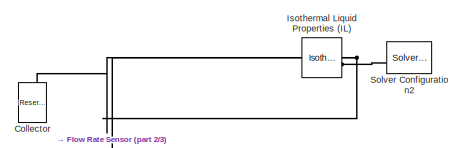
[diagram: root canvas - part 1/3, top center region]
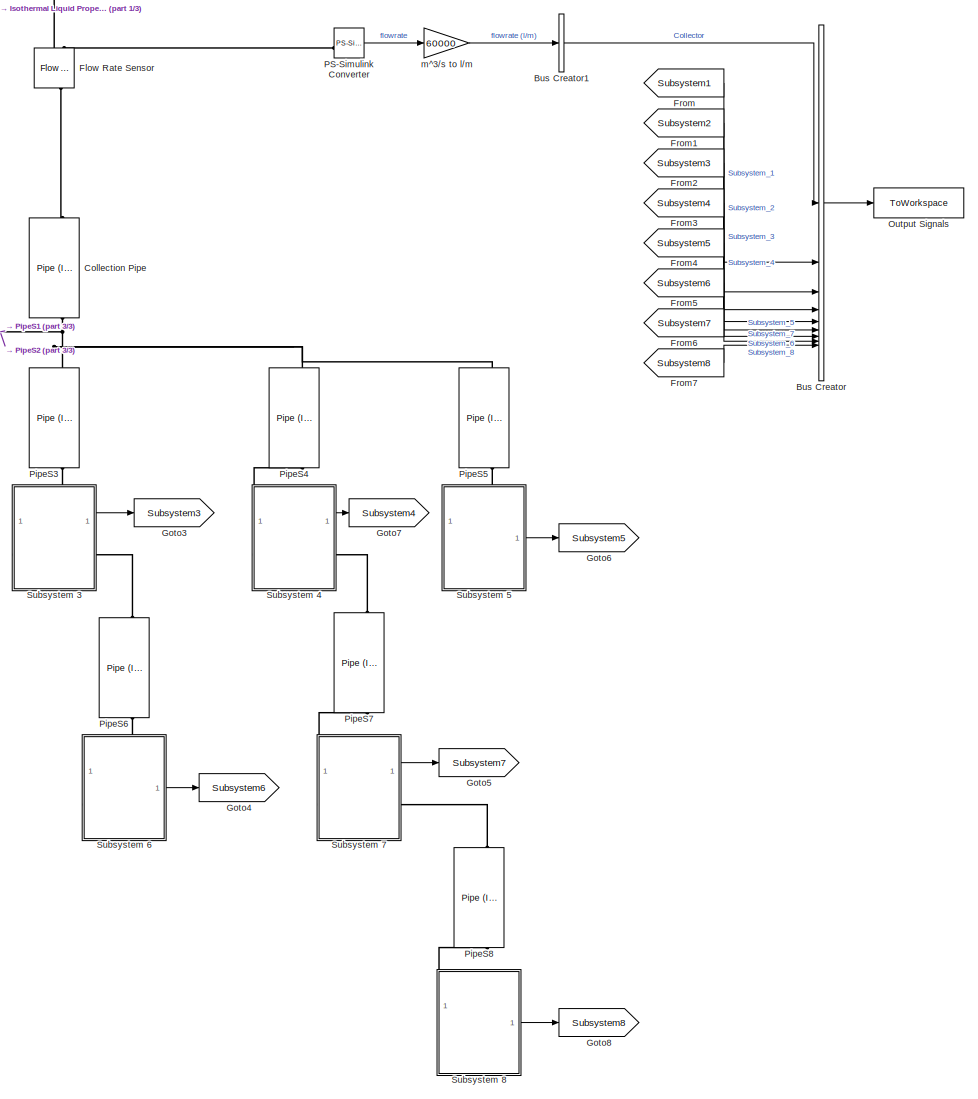
[diagram: root canvas - part 2/3, center side, full height]
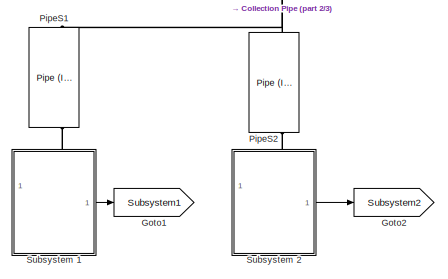
[diagram: root canvas - part 3/3, middle left region]
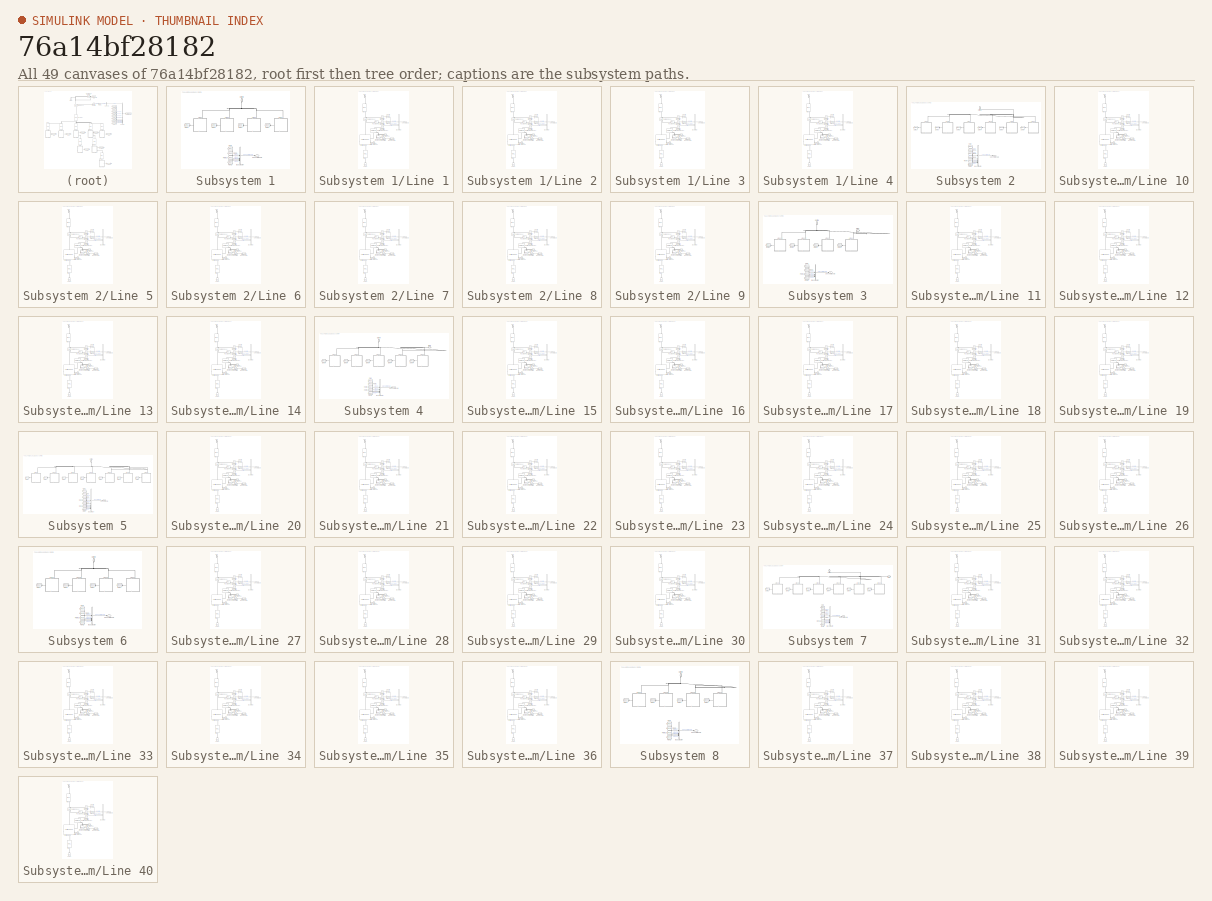
[diagram: thumbnail index - all 49 canvases of the model, root first then tree order]
MODEL slx_76a14bf28182
KIND model
CONFIG AbsTol = 1e-5
CONFIG EnableMultiTasking = on
CONFIG FixedStep = auto
CONFIG InitFcn = load("largescale_sample.mat")
CONFIG MaxStep = 1
CONFIG MinStep = auto
CONFIG RelTol = 1e-5
CONFIG SampleTimeConstraint = Unconstrained
CONFIG SolverName = VariableStepAuto
CONFIG StartTime = 0.0
CONFIG StopTime = 200
BLOCK [BusCreator] Bus Creator
  DisplayOption = bar
  InheritFromInputs = on
  Inputs = 9
BLOCK [BusCreator] Bus Creator1
  DisplayOption = bar
  InheritFromInputs = on
  Inputs = 1
BLOCK [Reference] Collection Pipe  REF=SimscapeFluids_lib/Isothermal Liquid/Pipes & Fittings/Pipe (IL)
  NameLocation = right
  SourceBlock = SimscapeFluids_lib/Isothermal Liquid/Pipes & Fittings/Pipe (IL)
  SourceType = Pipe (IL)
BLOCK [Reference] Collector  REF=fl_lib/Isothermal Liquid/Elements/Reservoir (IL)
  NameLocation = left
  SourceBlock = fl_lib/Isothermal Liquid/Elements/Reservoir (IL)
  SourceType = Reservoir (IL)
BLOCK [Reference] Flow Rate Sensor   REF=fl_lib/Isothermal Liquid/Sensors/Flow Rate Sensor
(IL)
  NameLocation = right
  SourceBlock = fl_lib/Isothermal Liquid/Sensors/Flow Rate Sensor\n(IL)
  SourceType = Flow Rate Sensor\n(IL)
BLOCK [From] From
  GotoTag = Subsystem1
BLOCK [From] From1
  GotoTag = Subsystem2
BLOCK [From] From2
  GotoTag = Subsystem3
BLOCK [From] From3
  GotoTag = Subsystem4
BLOCK [From] From4
  GotoTag = Subsystem5
BLOCK [From] From5
  GotoTag = Subsystem6
BLOCK [From] From6
  GotoTag = Subsystem7
BLOCK [From] From7
  GotoTag = Subsystem8
BLOCK [Goto] Goto1
  GotoTag = Subsystem1
BLOCK [Goto] Goto2
  GotoTag = Subsystem2
BLOCK [Goto] Goto3
  GotoTag = Subsystem3
BLOCK [Goto] Goto4
  GotoTag = Subsystem6
BLOCK [Goto] Goto5
  GotoTag = Subsystem7
BLOCK [Goto] Goto6
  GotoTag = Subsystem5
BLOCK [Goto] Goto7
  GotoTag = Subsystem4
BLOCK [Goto] Goto8
  GotoTag = Subsystem8
BLOCK [Reference] Isothermal Liquid Properties (IL)  REF=fl_lib/Isothermal Liquid/Utilities/Isothermal Liquid
Properties (IL)
  SourceBlock = fl_lib/Isothermal Liquid/Utilities/Isothermal Liquid\nProperties (IL)
  SourceType = Isothermal Liquid\nProperties (IL)
BLOCK [ToWorkspace] Output Signals
  FixptAsFi = on
  MaxDataPoints = inf
  SampleTime = -1
  SaveFormat = Timeseries
  VariableName = signals
BLOCK [Reference] PS-Simulink Converter  REF=nesl_utility/PS-Simulink
Converter
  NameLocation = top
  SourceBlock = nesl_utility/PS-Simulink\nConverter
  SourceType = PS-Simulink\nConverter
BLOCK [Reference] PipeS1  REF=SimscapeFluids_lib/Isothermal Liquid/Pipes & Fittings/Pipe (IL)
  NameLocation = right
  SourceBlock = SimscapeFluids_lib/Isothermal Liquid/Pipes & Fittings/Pipe (IL)
  SourceType = Pipe (IL)
BLOCK [Reference] PipeS2  REF=SimscapeFluids_lib/Isothermal Liquid/Pipes & Fittings/Pipe (IL)
  NameLocation = right
  SourceBlock = SimscapeFluids_lib/Isothermal Liquid/Pipes & Fittings/Pipe (IL)
  SourceType = Pipe (IL)
BLOCK [Reference] PipeS3  REF=SimscapeFluids_lib/Isothermal Liquid/Pipes & Fittings/Pipe (IL)
  NameLocation = right
  SourceBlock = SimscapeFluids_lib/Isothermal Liquid/Pipes & Fittings/Pipe (IL)
  SourceType = Pipe (IL)
BLOCK [Reference] PipeS4  REF=SimscapeFluids_lib/Isothermal Liquid/Pipes & Fittings/Pipe (IL)
  NameLocation = right
  SourceBlock = SimscapeFluids_lib/Isothermal Liquid/Pipes & Fittings/Pipe (IL)
  SourceType = Pipe (IL)
BLOCK [Reference] PipeS5  REF=SimscapeFluids_lib/Isothermal Liquid/Pipes & Fittings/Pipe (IL)
  NameLocation = right
  SourceBlock = SimscapeFluids_lib/Isothermal Liquid/Pipes & Fittings/Pipe (IL)
  SourceType = Pipe (IL)
BLOCK [Reference] PipeS6  REF=SimscapeFluids_lib/Isothermal Liquid/Pipes & Fittings/Pipe (IL)
  NameLocation = right
  SourceBlock = SimscapeFluids_lib/Isothermal Liquid/Pipes & Fittings/Pipe (IL)
  SourceType = Pipe (IL)
BLOCK [Reference] PipeS7  REF=SimscapeFluids_lib/Isothermal Liquid/Pipes & Fittings/Pipe (IL)
  NameLocation = right
  SourceBlock = SimscapeFluids_lib/Isothermal Liquid/Pipes & Fittings/Pipe (IL)
  SourceType = Pipe (IL)
BLOCK [Reference] PipeS8  REF=SimscapeFluids_lib/Isothermal Liquid/Pipes & Fittings/Pipe (IL)
  NameLocation = right
  SourceBlock = SimscapeFluids_lib/Isothermal Liquid/Pipes & Fittings/Pipe (IL)
  SourceType = Pipe (IL)
BLOCK [Reference] Solver Configuration2  REF=nesl_utility/Solver
Configuration
  SourceBlock = nesl_utility/Solver\nConfiguration
  SourceType = Solver\nConfiguration
BLOCK [SubSystem] Subsystem 1
  PortSchema = {"entries":[{"content":{"sides":[{"content":{},"type":"ConnectorPlacement.EquallySpacedRectSide","uuid":"b516d03a-2269-47fc-9f64-c7351457ded4"},{"content":{"connectorIds":["Out1"],"side":"RIGHT"},"type":"ConnectorPlacement.EquallySpacedRectSide","uuid":"88a6b3e7-f300-486e-888d-e91ea018f8f8"},{"content":{"connectorIds":["LConn1"],"side":"TOP"},"type":"ConnectorPlacement.EquallySpacedRectSide","uuid...<+226ch>  <repeated x4 — deduplicated; at blocks: Subsystem 1, Subsystem 5, Subsystem 6, Subsystem 8>
BLOCK [BusCreator] Subsystem 1/Bus Creator
  DisplayOption = bar
  InheritFromInputs = on
  Inputs = 4
  NameLocation = top
BLOCK [From] Subsystem 1/From
  GotoTag = Line1
BLOCK [From] Subsystem 1/From1
  GotoTag = Line2
BLOCK [From] Subsystem 1/From2
  GotoTag = Line3
BLOCK [From] Subsystem 1/From3
  GotoTag = Line4
BLOCK [Goto] Subsystem 1/Goto1
  GotoTag = Line1
BLOCK [Goto] Subsystem 1/Goto2
  GotoTag = Line2
BLOCK [Goto] Subsystem 1/Goto3
  GotoTag = Line3
BLOCK [Goto] Subsystem 1/Goto4
  GotoTag = Line4
BLOCK [SubSystem] Subsystem 1/Line 1
  PortSchema = {"entries":[{"content":{"sides":[{"content":{},"type":"ConnectorPlacement.EquallySpacedRectSide","uuid":"b3564357-8f52-4949-91c1-42582344ea16"},{"content":{"connectorIds":["RConn1"],"side":"RIGHT"},"type":"ConnectorPlacement.EquallySpacedRectSide","uuid":"3df6ff4b-c089-47d9-9218-1d5835660c11"},{"content":{"connectorIds":["Out1"],"side":"TOP"},"type":"ConnectorPlacement.EquallySpacedRectSide","uuid...<+226ch>  <repeated x40 — deduplicated; at blocks: Line 1, Line 2, Line 3, Line 4, Line 10, Line 5, Line 6, Line 7, Line 8, Line 9, Line 11, Line 12, Line 13, Line 14, Line 15, Line 16, +24 more>
BLOCK [BusCreator] Subsystem 1/Line 1/Bus Creator
  DisplayOption = bar
  InheritFromInputs = on
  Inputs = 3
BLOCK [Reference] Subsystem 1/Line 1/Centrifugal Pump  REF=SimscapeFluids_lib/Isothermal Liquid/Pumps & Motors/Centrifugal Pump
(IL)
  AttributesFormatString = Ebara:EVMS(L)1 10/0.55*
  SourceBlock = SimscapeFluids_lib/Isothermal Liquid/Pumps & Motors/Centrifugal Pump\n(IL)
  SourceType = Centrifugal Pump\n(IL)
  Tag = {'toolbox/physmod/fluids/fluids/SimscapeFluids_lib_parts';'Isothermal_Liquid/Pumps_and_Motors/Centrifugal_Pump__IL_/Ebara/EVMS_L_1_10_0_55_.xml'}
BLOCK [PMIOPort] Subsystem 1/Line 1/Flow
  NameLocation = right
  Side = Right
BLOCK [Reference] Subsystem 1/Line 1/Flow Rate Sensor  REF=fl_lib/Isothermal Liquid/Sensors/Flow Rate Sensor
(IL)
  NameLocation = left
  SourceBlock = fl_lib/Isothermal Liquid/Sensors/Flow Rate Sensor\n(IL)
  SourceType = Flow Rate Sensor\n(IL)
BLOCK [Reference] Subsystem 1/Line 1/Ideal Angular Velocity Source1  REF=fl_lib/Mechanical/Mechanical Sources/Ideal Angular
Velocity Source
  NameLocation = top
  SourceBlock = fl_lib/Mechanical/Mechanical Sources/Ideal Angular\nVelocity Source
  SourceType = Ideal Angular\nVelocity Source
BLOCK [Reference] Subsystem 1/Line 1/Mechanical Rotational Reference2  REF=fl_lib/Mechanical/Rotational Elements/Mechanical
Rotational Reference
  NameLocation = top
  SourceBlock = fl_lib/Mechanical/Rotational Elements/Mechanical\nRotational Reference
  SourceType = Mechanical\nRotational Reference
BLOCK [Reference] Subsystem 1/Line 1/Mechanical Rotational Reference3  REF=fl_lib/Mechanical/Rotational Elements/Mechanical
Rotational Reference
  NameLocation = top
  SourceBlock = fl_lib/Mechanical/Rotational Elements/Mechanical\nRotational Reference
  SourceType = Mechanical\nRotational Reference
BLOCK [Constant] Subsystem 1/Line 1/Motor Speed (2450-3000 rpm)
  Value = pump_speed/60
BLOCK [Reference] Subsystem 1/Line 1/PS-Simulink Converter  REF=nesl_utility/PS-Simulink
Converter
  NameLocation = top
  SourceBlock = nesl_utility/PS-Simulink\nConverter
  SourceType = PS-Simulink\nConverter
BLOCK [Reference] Subsystem 1/Line 1/PS-Simulink Converter1  REF=nesl_utility/PS-Simulink
Converter
  NameLocation = top
  SourceBlock = nesl_utility/PS-Simulink\nConverter
  SourceType = PS-Simulink\nConverter
BLOCK [Reference] Subsystem 1/Line 1/PS-Simulink Converter4  REF=nesl_utility/PS-Simulink
Converter
  NameLocation = top
  SourceBlock = nesl_utility/PS-Simulink\nConverter
  SourceType = PS-Simulink\nConverter
BLOCK [Gain] Subsystem 1/Line 1/Pa to kPa
  Gain = 1/1000
  NameLocation = top
BLOCK [Reference] Subsystem 1/Line 1/Pipe 1  REF=SimscapeFluids_lib/Isothermal Liquid/Pipes & Fittings/Pipe (IL)
  NameLocation = right
  SourceBlock = SimscapeFluids_lib/Isothermal Liquid/Pipes & Fittings/Pipe (IL)
  SourceType = Pipe (IL)
BLOCK [Reference] Subsystem 1/Line 1/Pipe 2  REF=SimscapeFluids_lib/Isothermal Liquid/Pipes & Fittings/Pipe (IL)
  NameLocation = left
  SourceBlock = SimscapeFluids_lib/Isothermal Liquid/Pipes & Fittings/Pipe (IL)
  SourceType = Pipe (IL)
BLOCK [Reference] Subsystem 1/Line 1/Pressure Sensor  REF=fl_lib/Isothermal Liquid/Sensors/Pressure Sensor (IL)
  NameLocation = top
  SourceBlock = fl_lib/Isothermal Liquid/Sensors/Pressure Sensor (IL)
  SourceType = Pressure Sensor (IL)
BLOCK [Reference] Subsystem 1/Line 1/Rotational Power Sensor   REF=sdl_lib/Sensors/Rotational Power
Sensor
  NameLocation = right
  SourceBlock = sdl_lib/Sensors/Rotational Power\nSensor
  SourceType = Rotational Power\nSensor
BLOCK [Outport] Subsystem 1/Line 1/Sensor Signals
  NameLocation = top
BLOCK [Reference] Subsystem 1/Line 1/Simulink-PS Converter1  REF=nesl_utility/Simulink-PS
Converter
  SourceBlock = nesl_utility/Simulink-PS\nConverter
  SourceType = Simulink-PS\nConverter
BLOCK [Reference] Subsystem 1/Line 1/Source  REF=fl_lib/Isothermal Liquid/Elements/Reservoir (IL)
  NameLocation = right
  SourceBlock = fl_lib/Isothermal Liquid/Elements/Reservoir (IL)
  SourceType = Reservoir (IL)
BLOCK [Gain] Subsystem 1/Line 1/m^3//s to l//m
  Gain = 60000
  NameLocation = top
BLOCK [SubSystem] Subsystem 1/Line 2
BLOCK [BusCreator] Subsystem 1/Line 2/Bus Creator
  DisplayOption = bar
  InheritFromInputs = on
  Inputs = 3
BLOCK [Reference] Subsystem 1/Line 2/Centrifugal Pump  REF=SimscapeFluids_lib/Isothermal Liquid/Pumps & Motors/Centrifugal Pump
(IL)
  AttributesFormatString = Ebara:EVMS(L)1 10/0.55*
  SourceBlock = SimscapeFluids_lib/Isothermal Liquid/Pumps & Motors/Centrifugal Pump\n(IL)
  SourceType = Centrifugal Pump\n(IL)
  Tag = {'toolbox/physmod/fluids/fluids/SimscapeFluids_lib_parts';'Isothermal_Liquid/Pumps_and_Motors/Centrifugal_Pump__IL_/Ebara/EVMS_L_1_10_0_55_.xml'}
BLOCK [PMIOPort] Subsystem 1/Line 2/Flow
  NameLocation = right
  Side = Right
BLOCK [Reference] Subsystem 1/Line 2/Flow Rate Sensor  REF=fl_lib/Isothermal Liquid/Sensors/Flow Rate Sensor
(IL)
  NameLocation = left
  SourceBlock = fl_lib/Isothermal Liquid/Sensors/Flow Rate Sensor\n(IL)
  SourceType = Flow Rate Sensor\n(IL)
BLOCK [Reference] Subsystem 1/Line 2/Ideal Angular Velocity Source1  REF=fl_lib/Mechanical/Mechanical Sources/Ideal Angular
Velocity Source
  NameLocation = top
  SourceBlock = fl_lib/Mechanical/Mechanical Sources/Ideal Angular\nVelocity Source
  SourceType = Ideal Angular\nVelocity Source
BLOCK [Reference] Subsystem 1/Line 2/Mechanical Rotational Reference2  REF=fl_lib/Mechanical/Rotational Elements/Mechanical
Rotational Reference
  NameLocation = top
  SourceBlock = fl_lib/Mechanical/Rotational Elements/Mechanical\nRotational Reference
  SourceType = Mechanical\nRotational Reference
BLOCK [Reference] Subsystem 1/Line 2/Mechanical Rotational Reference3  REF=fl_lib/Mechanical/Rotational Elements/Mechanical
Rotational Reference
  NameLocation = top
  SourceBlock = fl_lib/Mechanical/Rotational Elements/Mechanical\nRotational Reference
  SourceType = Mechanical\nRotational Reference
BLOCK [Constant] Subsystem 1/Line 2/Motor Speed (2450-3000 rpm)
  Value = pump_speed/60
BLOCK [Reference] Subsystem 1/Line 2/PS-Simulink Converter  REF=nesl_utility/PS-Simulink
Converter
  NameLocation = top
  SourceBlock = nesl_utility/PS-Simulink\nConverter
  SourceType = PS-Simulink\nConverter
BLOCK [Reference] Subsystem 1/Line 2/PS-Simulink Converter1  REF=nesl_utility/PS-Simulink
Converter
  NameLocation = top
  SourceBlock = nesl_utility/PS-Simulink\nConverter
  SourceType = PS-Simulink\nConverter
BLOCK [Reference] Subsystem 1/Line 2/PS-Simulink Converter4  REF=nesl_utility/PS-Simulink
Converter
  NameLocation = top
  SourceBlock = nesl_utility/PS-Simulink\nConverter
  SourceType = PS-Simulink\nConverter
BLOCK [Gain] Subsystem 1/Line 2/Pa to kPa
  Gain = 1/1000
  NameLocation = top
BLOCK [Reference] Subsystem 1/Line 2/Pipe 1  REF=SimscapeFluids_lib/Isothermal Liquid/Pipes & Fittings/Pipe (IL)
  NameLocation = right
  SourceBlock = SimscapeFluids_lib/Isothermal Liquid/Pipes & Fittings/Pipe (IL)
  SourceType = Pipe (IL)
BLOCK [Reference] Subsystem 1/Line 2/Pipe 2  REF=SimscapeFluids_lib/Isothermal Liquid/Pipes & Fittings/Pipe (IL)
  NameLocation = left
  SourceBlock = SimscapeFluids_lib/Isothermal Liquid/Pipes & Fittings/Pipe (IL)
  SourceType = Pipe (IL)
BLOCK [Reference] Subsystem 1/Line 2/Pressure Sensor  REF=fl_lib/Isothermal Liquid/Sensors/Pressure Sensor (IL)
  NameLocation = top
  SourceBlock = fl_lib/Isothermal Liquid/Sensors/Pressure Sensor (IL)
  SourceType = Pressure Sensor (IL)
BLOCK [Reference] Subsystem 1/Line 2/Rotational Power Sensor   REF=sdl_lib/Sensors/Rotational Power
Sensor
  NameLocation = right
  SourceBlock = sdl_lib/Sensors/Rotational Power\nSensor
  SourceType = Rotational Power\nSensor
BLOCK [Outport] Subsystem 1/Line 2/Sensor Signals
  NameLocation = top
BLOCK [Reference] Subsystem 1/Line 2/Simulink-PS Converter1  REF=nesl_utility/Simulink-PS
Converter
  SourceBlock = nesl_utility/Simulink-PS\nConverter
  SourceType = Simulink-PS\nConverter
BLOCK [Reference] Subsystem 1/Line 2/Source  REF=fl_lib/Isothermal Liquid/Elements/Reservoir (IL)
  NameLocation = right
  SourceBlock = fl_lib/Isothermal Liquid/Elements/Reservoir (IL)
  SourceType = Reservoir (IL)
BLOCK [Gain] Subsystem 1/Line 2/m^3//s to l//m
  Gain = 60000
  NameLocation = top
BLOCK [SubSystem] Subsystem 1/Line 3
BLOCK [BusCreator] Subsystem 1/Line 3/Bus Creator
  DisplayOption = bar
  InheritFromInputs = on
  Inputs = 3
BLOCK [Reference] Subsystem 1/Line 3/Centrifugal Pump  REF=SimscapeFluids_lib/Isothermal Liquid/Pumps & Motors/Centrifugal Pump
(IL)
  AttributesFormatString = Ebara:EVMS(L)1 10/0.55*
  SourceBlock = SimscapeFluids_lib/Isothermal Liquid/Pumps & Motors/Centrifugal Pump\n(IL)
  SourceType = Centrifugal Pump\n(IL)
  Tag = {'toolbox/physmod/fluids/fluids/SimscapeFluids_lib_parts';'Isothermal_Liquid/Pumps_and_Motors/Centrifugal_Pump__IL_/Ebara/EVMS_L_1_10_0_55_.xml'}
BLOCK [PMIOPort] Subsystem 1/Line 3/Flow
  NameLocation = right
  Side = Right
BLOCK [Reference] Subsystem 1/Line 3/Flow Rate Sensor  REF=fl_lib/Isothermal Liquid/Sensors/Flow Rate Sensor
(IL)
  NameLocation = left
  SourceBlock = fl_lib/Isothermal Liquid/Sensors/Flow Rate Sensor\n(IL)
  SourceType = Flow Rate Sensor\n(IL)
BLOCK [Reference] Subsystem 1/Line 3/Ideal Angular Velocity Source1  REF=fl_lib/Mechanical/Mechanical Sources/Ideal Angular
Velocity Source
  NameLocation = top
  SourceBlock = fl_lib/Mechanical/Mechanical Sources/Ideal Angular\nVelocity Source
  SourceType = Ideal Angular\nVelocity Source
BLOCK [Reference] Subsystem 1/Line 3/Mechanical Rotational Reference2  REF=fl_lib/Mechanical/Rotational Elements/Mechanical
Rotational Reference
  NameLocation = top
  SourceBlock = fl_lib/Mechanical/Rotational Elements/Mechanical\nRotational Reference
  SourceType = Mechanical\nRotational Reference
BLOCK [Reference] Subsystem 1/Line 3/Mechanical Rotational Reference3  REF=fl_lib/Mechanical/Rotational Elements/Mechanical
Rotational Reference
  NameLocation = top
  SourceBlock = fl_lib/Mechanical/Rotational Elements/Mechanical\nRotational Reference
  SourceType = Mechanical\nRotational Reference
BLOCK [Constant] Subsystem 1/Line 3/Motor Speed (2450-3000 rpm)
  Value = pump_speed/60
BLOCK [Reference] Subsystem 1/Line 3/PS-Simulink Converter  REF=nesl_utility/PS-Simulink
Converter
  NameLocation = top
  SourceBlock = nesl_utility/PS-Simulink\nConverter
  SourceType = PS-Simulink\nConverter
BLOCK [Reference] Subsystem 1/Line 3/PS-Simulink Converter1  REF=nesl_utility/PS-Simulink
Converter
  NameLocation = top
  SourceBlock = nesl_utility/PS-Simulink\nConverter
  SourceType = PS-Simulink\nConverter
BLOCK [Reference] Subsystem 1/Line 3/PS-Simulink Converter4  REF=nesl_utility/PS-Simulink
Converter
  NameLocation = top
  SourceBlock = nesl_utility/PS-Simulink\nConverter
  SourceType = PS-Simulink\nConverter
BLOCK [Gain] Subsystem 1/Line 3/Pa to kPa
  Gain = 1/1000
  NameLocation = top
BLOCK [Reference] Subsystem 1/Line 3/Pipe 1  REF=SimscapeFluids_lib/Isothermal Liquid/Pipes & Fittings/Pipe (IL)
  NameLocation = right
  SourceBlock = SimscapeFluids_lib/Isothermal Liquid/Pipes & Fittings/Pipe (IL)
  SourceType = Pipe (IL)
BLOCK [Reference] Subsystem 1/Line 3/Pipe 2  REF=SimscapeFluids_lib/Isothermal Liquid/Pipes & Fittings/Pipe (IL)
  NameLocation = left
  SourceBlock = SimscapeFluids_lib/Isothermal Liquid/Pipes & Fittings/Pipe (IL)
  SourceType = Pipe (IL)
BLOCK [Reference] Subsystem 1/Line 3/Pressure Sensor  REF=fl_lib/Isothermal Liquid/Sensors/Pressure Sensor (IL)
  NameLocation = top
  SourceBlock = fl_lib/Isothermal Liquid/Sensors/Pressure Sensor (IL)
  SourceType = Pressure Sensor (IL)
BLOCK [Reference] Subsystem 1/Line 3/Rotational Power Sensor   REF=sdl_lib/Sensors/Rotational Power
Sensor
  NameLocation = right
  SourceBlock = sdl_lib/Sensors/Rotational Power\nSensor
  SourceType = Rotational Power\nSensor
BLOCK [Outport] Subsystem 1/Line 3/Sensor Signals
  NameLocation = top
BLOCK [Reference] Subsystem 1/Line 3/Simulink-PS Converter1  REF=nesl_utility/Simulink-PS
Converter
  SourceBlock = nesl_utility/Simulink-PS\nConverter
  SourceType = Simulink-PS\nConverter
BLOCK [Reference] Subsystem 1/Line 3/Source  REF=fl_lib/Isothermal Liquid/Elements/Reservoir (IL)
  NameLocation = right
  SourceBlock = fl_lib/Isothermal Liquid/Elements/Reservoir (IL)
  SourceType = Reservoir (IL)
BLOCK [Gain] Subsystem 1/Line 3/m^3//s to l//m
  Gain = 60000
  NameLocation = top
BLOCK [SubSystem] Subsystem 1/Line 4
BLOCK [BusCreator] Subsystem 1/Line 4/Bus Creator
  DisplayOption = bar
  InheritFromInputs = on
  Inputs = 3
BLOCK [Reference] Subsystem 1/Line 4/Centrifugal Pump  REF=SimscapeFluids_lib/Isothermal Liquid/Pumps & Motors/Centrifugal Pump
(IL)
  AttributesFormatString = Ebara:EVMS(L)1 10/0.55*
  SourceBlock = SimscapeFluids_lib/Isothermal Liquid/Pumps & Motors/Centrifugal Pump\n(IL)
  SourceType = Centrifugal Pump\n(IL)
  Tag = {'toolbox/physmod/fluids/fluids/SimscapeFluids_lib_parts';'Isothermal_Liquid/Pumps_and_Motors/Centrifugal_Pump__IL_/Ebara/EVMS_L_1_10_0_55_.xml'}
BLOCK [PMIOPort] Subsystem 1/Line 4/Flow
  NameLocation = right
  Side = Right
BLOCK [Reference] Subsystem 1/Line 4/Flow Rate Sensor  REF=fl_lib/Isothermal Liquid/Sensors/Flow Rate Sensor
(IL)
  NameLocation = left
  SourceBlock = fl_lib/Isothermal Liquid/Sensors/Flow Rate Sensor\n(IL)
  SourceType = Flow Rate Sensor\n(IL)
BLOCK [Reference] Subsystem 1/Line 4/Ideal Angular Velocity Source1  REF=fl_lib/Mechanical/Mechanical Sources/Ideal Angular
Velocity Source
  NameLocation = top
  SourceBlock = fl_lib/Mechanical/Mechanical Sources/Ideal Angular\nVelocity Source
  SourceType = Ideal Angular\nVelocity Source
BLOCK [Reference] Subsystem 1/Line 4/Mechanical Rotational Reference2  REF=fl_lib/Mechanical/Rotational Elements/Mechanical
Rotational Reference
  NameLocation = top
  SourceBlock = fl_lib/Mechanical/Rotational Elements/Mechanical\nRotational Reference
  SourceType = Mechanical\nRotational Reference
BLOCK [Reference] Subsystem 1/Line 4/Mechanical Rotational Reference3  REF=fl_lib/Mechanical/Rotational Elements/Mechanical
Rotational Reference
  NameLocation = top
  SourceBlock = fl_lib/Mechanical/Rotational Elements/Mechanical\nRotational Reference
  SourceType = Mechanical\nRotational Reference
BLOCK [Constant] Subsystem 1/Line 4/Motor Speed (2450-3000 rpm)
  Value = pump_speed/60
BLOCK [Reference] Subsystem 1/Line 4/PS-Simulink Converter  REF=nesl_utility/PS-Simulink
Converter
  NameLocation = top
  SourceBlock = nesl_utility/PS-Simulink\nConverter
  SourceType = PS-Simulink\nConverter
BLOCK [Reference] Subsystem 1/Line 4/PS-Simulink Converter1  REF=nesl_utility/PS-Simulink
Converter
  NameLocation = top
  SourceBlock = nesl_utility/PS-Simulink\nConverter
  SourceType = PS-Simulink\nConverter
BLOCK [Reference] Subsystem 1/Line 4/PS-Simulink Converter4  REF=nesl_utility/PS-Simulink
Converter
  NameLocation = top
  SourceBlock = nesl_utility/PS-Simulink\nConverter
  SourceType = PS-Simulink\nConverter
BLOCK [Gain] Subsystem 1/Line 4/Pa to kPa
  Gain = 1/1000
  NameLocation = top
BLOCK [Reference] Subsystem 1/Line 4/Pipe 1  REF=SimscapeFluids_lib/Isothermal Liquid/Pipes & Fittings/Pipe (IL)
  NameLocation = right
  SourceBlock = SimscapeFluids_lib/Isothermal Liquid/Pipes & Fittings/Pipe (IL)
  SourceType = Pipe (IL)
BLOCK [Reference] Subsystem 1/Line 4/Pipe 2  REF=SimscapeFluids_lib/Isothermal Liquid/Pipes & Fittings/Pipe (IL)
  NameLocation = left
  SourceBlock = SimscapeFluids_lib/Isothermal Liquid/Pipes & Fittings/Pipe (IL)
  SourceType = Pipe (IL)
BLOCK [Reference] Subsystem 1/Line 4/Pressure Sensor  REF=fl_lib/Isothermal Liquid/Sensors/Pressure Sensor (IL)
  NameLocation = top
  SourceBlock = fl_lib/Isothermal Liquid/Sensors/Pressure Sensor (IL)
  SourceType = Pressure Sensor (IL)
BLOCK [Reference] Subsystem 1/Line 4/Rotational Power Sensor   REF=sdl_lib/Sensors/Rotational Power
Sensor
  NameLocation = right
  SourceBlock = sdl_lib/Sensors/Rotational Power\nSensor
  SourceType = Rotational Power\nSensor
BLOCK [Outport] Subsystem 1/Line 4/Sensor Signals
  NameLocation = top
BLOCK [Reference] Subsystem 1/Line 4/Simulink-PS Converter1  REF=nesl_utility/Simulink-PS
Converter
  SourceBlock = nesl_utility/Simulink-PS\nConverter
  SourceType = Simulink-PS\nConverter
BLOCK [Reference] Subsystem 1/Line 4/Source  REF=fl_lib/Isothermal Liquid/Elements/Reservoir (IL)
  NameLocation = right
  SourceBlock = fl_lib/Isothermal Liquid/Elements/Reservoir (IL)
  SourceType = Reservoir (IL)
BLOCK [Gain] Subsystem 1/Line 4/m^3//s to l//m
  Gain = 60000
  NameLocation = top
BLOCK [PMIOPort] Subsystem 1/Outflow
  NameLocation = right
  Side = Left
BLOCK [Outport] Subsystem 1/Sensor Signals
BLOCK [SubSystem] Subsystem 2
  PortSchema = {"entries":[{"content":{"sides":[{"content":{},"type":"ConnectorPlacement.EquallySpacedRectSide","uuid":"b516d03a-2269-47fc-9f64-c7351457ded4"},{"content":{"connectorIds":["Out1"],"side":"RIGHT"},"type":"ConnectorPlacement.EquallySpacedRectSide","uuid":"88a6b3e7-f300-486e-888d-e91ea018f8f8"},{"content":{"connectorIds":["LConn1"],"side":"TOP"},"type":"ConnectorPlacement.EquallySpacedRectSide","uuid...<+352ch>
BLOCK [BusCreator] Subsystem 2/Bus Creator
  DisplayOption = bar
  InheritFromInputs = on
  Inputs = 6
  NameLocation = top
BLOCK [From] Subsystem 2/From
  GotoTag = Line5
BLOCK [From] Subsystem 2/From1
  GotoTag = Line6
BLOCK [From] Subsystem 2/From2
  GotoTag = Line7
BLOCK [From] Subsystem 2/From3
  GotoTag = Line8
BLOCK [From] Subsystem 2/From4
  GotoTag = Line9
BLOCK [From] Subsystem 2/From5
  GotoTag = Line10
BLOCK [Goto] Subsystem 2/Goto1
  GotoTag = Line5
BLOCK [Goto] Subsystem 2/Goto2
  GotoTag = Line6
BLOCK [Goto] Subsystem 2/Goto3
  GotoTag = Line7
BLOCK [Goto] Subsystem 2/Goto4
  GotoTag = Line8
BLOCK [Goto] Subsystem 2/Goto5
  GotoTag = Line9
BLOCK [Goto] Subsystem 2/Goto6
  GotoTag = Line10
BLOCK [SubSystem] Subsystem 2/Line 10
BLOCK [BusCreator] Subsystem 2/Line 10/Bus Creator
  DisplayOption = bar
  InheritFromInputs = on
  Inputs = 3
BLOCK [Reference] Subsystem 2/Line 10/Centrifugal Pump  REF=SimscapeFluids_lib/Isothermal Liquid/Pumps & Motors/Centrifugal Pump
(IL)
  AttributesFormatString = Ebara:EVMS(L)1 10/0.55*
  SourceBlock = SimscapeFluids_lib/Isothermal Liquid/Pumps & Motors/Centrifugal Pump\n(IL)
  SourceType = Centrifugal Pump\n(IL)
  Tag = {'toolbox/physmod/fluids/fluids/SimscapeFluids_lib_parts';'Isothermal_Liquid/Pumps_and_Motors/Centrifugal_Pump__IL_/Ebara/EVMS_L_1_10_0_55_.xml'}
BLOCK [PMIOPort] Subsystem 2/Line 10/Flow
  NameLocation = right
  Side = Right
BLOCK [Reference] Subsystem 2/Line 10/Flow Rate Sensor  REF=fl_lib/Isothermal Liquid/Sensors/Flow Rate Sensor
(IL)
  NameLocation = left
  SourceBlock = fl_lib/Isothermal Liquid/Sensors/Flow Rate Sensor\n(IL)
  SourceType = Flow Rate Sensor\n(IL)
BLOCK [Reference] Subsystem 2/Line 10/Ideal Angular Velocity Source1  REF=fl_lib/Mechanical/Mechanical Sources/Ideal Angular
Velocity Source
  NameLocation = top
  SourceBlock = fl_lib/Mechanical/Mechanical Sources/Ideal Angular\nVelocity Source
  SourceType = Ideal Angular\nVelocity Source
BLOCK [Reference] Subsystem 2/Line 10/Mechanical Rotational Reference2  REF=fl_lib/Mechanical/Rotational Elements/Mechanical
Rotational Reference
  NameLocation = top
  SourceBlock = fl_lib/Mechanical/Rotational Elements/Mechanical\nRotational Reference
  SourceType = Mechanical\nRotational Reference
BLOCK [Reference] Subsystem 2/Line 10/Mechanical Rotational Reference3  REF=fl_lib/Mechanical/Rotational Elements/Mechanical
Rotational Reference
  NameLocation = top
  SourceBlock = fl_lib/Mechanical/Rotational Elements/Mechanical\nRotational Reference
  SourceType = Mechanical\nRotational Reference
BLOCK [Constant] Subsystem 2/Line 10/Motor Speed (2450-3000 rpm)
  Value = pump_speed/60
BLOCK [Reference] Subsystem 2/Line 10/PS-Simulink Converter  REF=nesl_utility/PS-Simulink
Converter
  NameLocation = top
  SourceBlock = nesl_utility/PS-Simulink\nConverter
  SourceType = PS-Simulink\nConverter
BLOCK [Reference] Subsystem 2/Line 10/PS-Simulink Converter1  REF=nesl_utility/PS-Simulink
Converter
  NameLocation = top
  SourceBlock = nesl_utility/PS-Simulink\nConverter
  SourceType = PS-Simulink\nConverter
BLOCK [Reference] Subsystem 2/Line 10/PS-Simulink Converter4  REF=nesl_utility/PS-Simulink
Converter
  NameLocation = top
  SourceBlock = nesl_utility/PS-Simulink\nConverter
  SourceType = PS-Simulink\nConverter
BLOCK [Gain] Subsystem 2/Line 10/Pa to kPa
  Gain = 1/1000
  NameLocation = top
BLOCK [Reference] Subsystem 2/Line 10/Pipe 1  REF=SimscapeFluids_lib/Isothermal Liquid/Pipes & Fittings/Pipe (IL)
  NameLocation = right
  SourceBlock = SimscapeFluids_lib/Isothermal Liquid/Pipes & Fittings/Pipe (IL)
  SourceType = Pipe (IL)
BLOCK [Reference] Subsystem 2/Line 10/Pipe 2  REF=SimscapeFluids_lib/Isothermal Liquid/Pipes & Fittings/Pipe (IL)
  NameLocation = left
  SourceBlock = SimscapeFluids_lib/Isothermal Liquid/Pipes & Fittings/Pipe (IL)
  SourceType = Pipe (IL)
BLOCK [Reference] Subsystem 2/Line 10/Pressure Sensor  REF=fl_lib/Isothermal Liquid/Sensors/Pressure Sensor (IL)
  NameLocation = top
  SourceBlock = fl_lib/Isothermal Liquid/Sensors/Pressure Sensor (IL)
  SourceType = Pressure Sensor (IL)
BLOCK [Reference] Subsystem 2/Line 10/Rotational Power Sensor   REF=sdl_lib/Sensors/Rotational Power
Sensor
  NameLocation = right
  SourceBlock = sdl_lib/Sensors/Rotational Power\nSensor
  SourceType = Rotational Power\nSensor
BLOCK [Outport] Subsystem 2/Line 10/Sensor Signals
  NameLocation = top
BLOCK [Reference] Subsystem 2/Line 10/Simulink-PS Converter1  REF=nesl_utility/Simulink-PS
Converter
  SourceBlock = nesl_utility/Simulink-PS\nConverter
  SourceType = Simulink-PS\nConverter
BLOCK [Reference] Subsystem 2/Line 10/Source  REF=fl_lib/Isothermal Liquid/Elements/Reservoir (IL)
  NameLocation = right
  SourceBlock = fl_lib/Isothermal Liquid/Elements/Reservoir (IL)
  SourceType = Reservoir (IL)
BLOCK [Gain] Subsystem 2/Line 10/m^3//s to l//m
  Gain = 60000
  NameLocation = top
BLOCK [SubSystem] Subsystem 2/Line 5
BLOCK [BusCreator] Subsystem 2/Line 5/Bus Creator
  DisplayOption = bar
  InheritFromInputs = on
  Inputs = 3
BLOCK [Reference] Subsystem 2/Line 5/Centrifugal Pump  REF=SimscapeFluids_lib/Isothermal Liquid/Pumps & Motors/Centrifugal Pump
(IL)
  AttributesFormatString = Ebara:EVMS(L)1 10/0.55*
  SourceBlock = SimscapeFluids_lib/Isothermal Liquid/Pumps & Motors/Centrifugal Pump\n(IL)
  SourceType = Centrifugal Pump\n(IL)
  Tag = {'toolbox/physmod/fluids/fluids/SimscapeFluids_lib_parts';'Isothermal_Liquid/Pumps_and_Motors/Centrifugal_Pump__IL_/Ebara/EVMS_L_1_10_0_55_.xml'}
BLOCK [PMIOPort] Subsystem 2/Line 5/Flow
  NameLocation = right
  Side = Right
BLOCK [Reference] Subsystem 2/Line 5/Flow Rate Sensor  REF=fl_lib/Isothermal Liquid/Sensors/Flow Rate Sensor
(IL)
  NameLocation = left
  SourceBlock = fl_lib/Isothermal Liquid/Sensors/Flow Rate Sensor\n(IL)
  SourceType = Flow Rate Sensor\n(IL)
BLOCK [Reference] Subsystem 2/Line 5/Ideal Angular Velocity Source1  REF=fl_lib/Mechanical/Mechanical Sources/Ideal Angular
Velocity Source
  NameLocation = top
  SourceBlock = fl_lib/Mechanical/Mechanical Sources/Ideal Angular\nVelocity Source
  SourceType = Ideal Angular\nVelocity Source
BLOCK [Reference] Subsystem 2/Line 5/Mechanical Rotational Reference2  REF=fl_lib/Mechanical/Rotational Elements/Mechanical
Rotational Reference
  NameLocation = top
  SourceBlock = fl_lib/Mechanical/Rotational Elements/Mechanical\nRotational Reference
  SourceType = Mechanical\nRotational Reference
BLOCK [Reference] Subsystem 2/Line 5/Mechanical Rotational Reference3  REF=fl_lib/Mechanical/Rotational Elements/Mechanical
Rotational Reference
  NameLocation = top
  SourceBlock = fl_lib/Mechanical/Rotational Elements/Mechanical\nRotational Reference
  SourceType = Mechanical\nRotational Reference
BLOCK [Constant] Subsystem 2/Line 5/Motor Speed (2450-3000 rpm)
  Value = pump_speed/60
BLOCK [Reference] Subsystem 2/Line 5/PS-Simulink Converter  REF=nesl_utility/PS-Simulink
Converter
  NameLocation = top
  SourceBlock = nesl_utility/PS-Simulink\nConverter
  SourceType = PS-Simulink\nConverter
BLOCK [Reference] Subsystem 2/Line 5/PS-Simulink Converter1  REF=nesl_utility/PS-Simulink
Converter
  NameLocation = top
  SourceBlock = nesl_utility/PS-Simulink\nConverter
  SourceType = PS-Simulink\nConverter
BLOCK [Reference] Subsystem 2/Line 5/PS-Simulink Converter4  REF=nesl_utility/PS-Simulink
Converter
  NameLocation = top
  SourceBlock = nesl_utility/PS-Simulink\nConverter
  SourceType = PS-Simulink\nConverter
BLOCK [Gain] Subsystem 2/Line 5/Pa to kPa
  Gain = 1/1000
  NameLocation = top
BLOCK [Reference] Subsystem 2/Line 5/Pipe 1  REF=SimscapeFluids_lib/Isothermal Liquid/Pipes & Fittings/Pipe (IL)
  NameLocation = right
  SourceBlock = SimscapeFluids_lib/Isothermal Liquid/Pipes & Fittings/Pipe (IL)
  SourceType = Pipe (IL)
BLOCK [Reference] Subsystem 2/Line 5/Pipe 2  REF=SimscapeFluids_lib/Isothermal Liquid/Pipes & Fittings/Pipe (IL)
  NameLocation = left
  SourceBlock = SimscapeFluids_lib/Isothermal Liquid/Pipes & Fittings/Pipe (IL)
  SourceType = Pipe (IL)
BLOCK [Reference] Subsystem 2/Line 5/Pressure Sensor  REF=fl_lib/Isothermal Liquid/Sensors/Pressure Sensor (IL)
  NameLocation = top
  SourceBlock = fl_lib/Isothermal Liquid/Sensors/Pressure Sensor (IL)
  SourceType = Pressure Sensor (IL)
BLOCK [Reference] Subsystem 2/Line 5/Rotational Power Sensor   REF=sdl_lib/Sensors/Rotational Power
Sensor
  NameLocation = right
  SourceBlock = sdl_lib/Sensors/Rotational Power\nSensor
  SourceType = Rotational Power\nSensor
BLOCK [Outport] Subsystem 2/Line 5/Sensor Signals
  NameLocation = top
BLOCK [Reference] Subsystem 2/Line 5/Simulink-PS Converter1  REF=nesl_utility/Simulink-PS
Converter
  SourceBlock = nesl_utility/Simulink-PS\nConverter
  SourceType = Simulink-PS\nConverter
BLOCK [Reference] Subsystem 2/Line 5/Source  REF=fl_lib/Isothermal Liquid/Elements/Reservoir (IL)
  NameLocation = right
  SourceBlock = fl_lib/Isothermal Liquid/Elements/Reservoir (IL)
  SourceType = Reservoir (IL)
BLOCK [Gain] Subsystem 2/Line 5/m^3//s to l//m
  Gain = 60000
  NameLocation = top
BLOCK [SubSystem] Subsystem 2/Line 6
BLOCK [BusCreator] Subsystem 2/Line 6/Bus Creator
  DisplayOption = bar
  InheritFromInputs = on
  Inputs = 3
BLOCK [Reference] Subsystem 2/Line 6/Centrifugal Pump  REF=SimscapeFluids_lib/Isothermal Liquid/Pumps & Motors/Centrifugal Pump
(IL)
  AttributesFormatString = Ebara:EVMS(L)1 10/0.55*
  SourceBlock = SimscapeFluids_lib/Isothermal Liquid/Pumps & Motors/Centrifugal Pump\n(IL)
  SourceType = Centrifugal Pump\n(IL)
  Tag = {'toolbox/physmod/fluids/fluids/SimscapeFluids_lib_parts';'Isothermal_Liquid/Pumps_and_Motors/Centrifugal_Pump__IL_/Ebara/EVMS_L_1_10_0_55_.xml'}
BLOCK [PMIOPort] Subsystem 2/Line 6/Flow
  NameLocation = right
  Side = Right
BLOCK [Reference] Subsystem 2/Line 6/Flow Rate Sensor  REF=fl_lib/Isothermal Liquid/Sensors/Flow Rate Sensor
(IL)
  NameLocation = left
  SourceBlock = fl_lib/Isothermal Liquid/Sensors/Flow Rate Sensor\n(IL)
  SourceType = Flow Rate Sensor\n(IL)
BLOCK [Reference] Subsystem 2/Line 6/Ideal Angular Velocity Source1  REF=fl_lib/Mechanical/Mechanical Sources/Ideal Angular
Velocity Source
  NameLocation = top
  SourceBlock = fl_lib/Mechanical/Mechanical Sources/Ideal Angular\nVelocity Source
  SourceType = Ideal Angular\nVelocity Source
BLOCK [Reference] Subsystem 2/Line 6/Mechanical Rotational Reference2  REF=fl_lib/Mechanical/Rotational Elements/Mechanical
Rotational Reference
  NameLocation = top
  SourceBlock = fl_lib/Mechanical/Rotational Elements/Mechanical\nRotational Reference
  SourceType = Mechanical\nRotational Reference
BLOCK [Reference] Subsystem 2/Line 6/Mechanical Rotational Reference3  REF=fl_lib/Mechanical/Rotational Elements/Mechanical
Rotational Reference
  NameLocation = top
  SourceBlock = fl_lib/Mechanical/Rotational Elements/Mechanical\nRotational Reference
  SourceType = Mechanical\nRotational Reference
BLOCK [Constant] Subsystem 2/Line 6/Motor Speed (2450-3000 rpm)
  Value = pump_speed/60
BLOCK [Reference] Subsystem 2/Line 6/PS-Simulink Converter  REF=nesl_utility/PS-Simulink
Converter
  NameLocation = top
  SourceBlock = nesl_utility/PS-Simulink\nConverter
  SourceType = PS-Simulink\nConverter
BLOCK [Reference] Subsystem 2/Line 6/PS-Simulink Converter1  REF=nesl_utility/PS-Simulink
Converter
  NameLocation = top
  SourceBlock = nesl_utility/PS-Simulink\nConverter
  SourceType = PS-Simulink\nConverter
BLOCK [Reference] Subsystem 2/Line 6/PS-Simulink Converter4  REF=nesl_utility/PS-Simulink
Converter
  NameLocation = top
  SourceBlock = nesl_utility/PS-Simulink\nConverter
  SourceType = PS-Simulink\nConverter
BLOCK [Gain] Subsystem 2/Line 6/Pa to kPa
  Gain = 1/1000
  NameLocation = top
BLOCK [Reference] Subsystem 2/Line 6/Pipe 1  REF=SimscapeFluids_lib/Isothermal Liquid/Pipes & Fittings/Pipe (IL)
  NameLocation = right
  SourceBlock = SimscapeFluids_lib/Isothermal Liquid/Pipes & Fittings/Pipe (IL)
  SourceType = Pipe (IL)
BLOCK [Reference] Subsystem 2/Line 6/Pipe 2  REF=SimscapeFluids_lib/Isothermal Liquid/Pipes & Fittings/Pipe (IL)
  NameLocation = left
  SourceBlock = SimscapeFluids_lib/Isothermal Liquid/Pipes & Fittings/Pipe (IL)
  SourceType = Pipe (IL)
BLOCK [Reference] Subsystem 2/Line 6/Pressure Sensor  REF=fl_lib/Isothermal Liquid/Sensors/Pressure Sensor (IL)
  NameLocation = top
  SourceBlock = fl_lib/Isothermal Liquid/Sensors/Pressure Sensor (IL)
  SourceType = Pressure Sensor (IL)
BLOCK [Reference] Subsystem 2/Line 6/Rotational Power Sensor   REF=sdl_lib/Sensors/Rotational Power
Sensor
  NameLocation = right
  SourceBlock = sdl_lib/Sensors/Rotational Power\nSensor
  SourceType = Rotational Power\nSensor
BLOCK [Outport] Subsystem 2/Line 6/Sensor Signals
  NameLocation = top
BLOCK [Reference] Subsystem 2/Line 6/Simulink-PS Converter1  REF=nesl_utility/Simulink-PS
Converter
  SourceBlock = nesl_utility/Simulink-PS\nConverter
  SourceType = Simulink-PS\nConverter
BLOCK [Reference] Subsystem 2/Line 6/Source  REF=fl_lib/Isothermal Liquid/Elements/Reservoir (IL)
  NameLocation = right
  SourceBlock = fl_lib/Isothermal Liquid/Elements/Reservoir (IL)
  SourceType = Reservoir (IL)
BLOCK [Gain] Subsystem 2/Line 6/m^3//s to l//m
  Gain = 60000
  NameLocation = top
BLOCK [SubSystem] Subsystem 2/Line 7
BLOCK [BusCreator] Subsystem 2/Line 7/Bus Creator
  DisplayOption = bar
  InheritFromInputs = on
  Inputs = 3
BLOCK [Reference] Subsystem 2/Line 7/Centrifugal Pump  REF=SimscapeFluids_lib/Isothermal Liquid/Pumps & Motors/Centrifugal Pump
(IL)
  AttributesFormatString = Ebara:EVMS(L)1 10/0.55*
  SourceBlock = SimscapeFluids_lib/Isothermal Liquid/Pumps & Motors/Centrifugal Pump\n(IL)
  SourceType = Centrifugal Pump\n(IL)
  Tag = {'toolbox/physmod/fluids/fluids/SimscapeFluids_lib_parts';'Isothermal_Liquid/Pumps_and_Motors/Centrifugal_Pump__IL_/Ebara/EVMS_L_1_10_0_55_.xml'}
BLOCK [PMIOPort] Subsystem 2/Line 7/Flow
  NameLocation = right
  Side = Right
BLOCK [Reference] Subsystem 2/Line 7/Flow Rate Sensor  REF=fl_lib/Isothermal Liquid/Sensors/Flow Rate Sensor
(IL)
  NameLocation = left
  SourceBlock = fl_lib/Isothermal Liquid/Sensors/Flow Rate Sensor\n(IL)
  SourceType = Flow Rate Sensor\n(IL)
BLOCK [Reference] Subsystem 2/Line 7/Ideal Angular Velocity Source1  REF=fl_lib/Mechanical/Mechanical Sources/Ideal Angular
Velocity Source
  NameLocation = top
  SourceBlock = fl_lib/Mechanical/Mechanical Sources/Ideal Angular\nVelocity Source
  SourceType = Ideal Angular\nVelocity Source
BLOCK [Reference] Subsystem 2/Line 7/Mechanical Rotational Reference2  REF=fl_lib/Mechanical/Rotational Elements/Mechanical
Rotational Reference
  NameLocation = top
  SourceBlock = fl_lib/Mechanical/Rotational Elements/Mechanical\nRotational Reference
  SourceType = Mechanical\nRotational Reference
BLOCK [Reference] Subsystem 2/Line 7/Mechanical Rotational Reference3  REF=fl_lib/Mechanical/Rotational Elements/Mechanical
Rotational Reference
  NameLocation = top
  SourceBlock = fl_lib/Mechanical/Rotational Elements/Mechanical\nRotational Reference
  SourceType = Mechanical\nRotational Reference
BLOCK [Constant] Subsystem 2/Line 7/Motor Speed (2450-3000 rpm)
  Value = pump_speed/60
BLOCK [Reference] Subsystem 2/Line 7/PS-Simulink Converter  REF=nesl_utility/PS-Simulink
Converter
  NameLocation = top
  SourceBlock = nesl_utility/PS-Simulink\nConverter
  SourceType = PS-Simulink\nConverter
BLOCK [Reference] Subsystem 2/Line 7/PS-Simulink Converter1  REF=nesl_utility/PS-Simulink
Converter
  NameLocation = top
  SourceBlock = nesl_utility/PS-Simulink\nConverter
  SourceType = PS-Simulink\nConverter
BLOCK [Reference] Subsystem 2/Line 7/PS-Simulink Converter4  REF=nesl_utility/PS-Simulink
Converter
  NameLocation = top
  SourceBlock = nesl_utility/PS-Simulink\nConverter
  SourceType = PS-Simulink\nConverter
BLOCK [Gain] Subsystem 2/Line 7/Pa to kPa
  Gain = 1/1000
  NameLocation = top
BLOCK [Reference] Subsystem 2/Line 7/Pipe 1  REF=SimscapeFluids_lib/Isothermal Liquid/Pipes & Fittings/Pipe (IL)
  NameLocation = right
  SourceBlock = SimscapeFluids_lib/Isothermal Liquid/Pipes & Fittings/Pipe (IL)
  SourceType = Pipe (IL)
BLOCK [Reference] Subsystem 2/Line 7/Pipe 2  REF=SimscapeFluids_lib/Isothermal Liquid/Pipes & Fittings/Pipe (IL)
  NameLocation = left
  SourceBlock = SimscapeFluids_lib/Isothermal Liquid/Pipes & Fittings/Pipe (IL)
  SourceType = Pipe (IL)
BLOCK [Reference] Subsystem 2/Line 7/Pressure Sensor  REF=fl_lib/Isothermal Liquid/Sensors/Pressure Sensor (IL)
  NameLocation = top
  SourceBlock = fl_lib/Isothermal Liquid/Sensors/Pressure Sensor (IL)
  SourceType = Pressure Sensor (IL)
BLOCK [Reference] Subsystem 2/Line 7/Rotational Power Sensor   REF=sdl_lib/Sensors/Rotational Power
Sensor
  NameLocation = right
  SourceBlock = sdl_lib/Sensors/Rotational Power\nSensor
  SourceType = Rotational Power\nSensor
BLOCK [Outport] Subsystem 2/Line 7/Sensor Signals
  NameLocation = top
BLOCK [Reference] Subsystem 2/Line 7/Simulink-PS Converter1  REF=nesl_utility/Simulink-PS
Converter
  SourceBlock = nesl_utility/Simulink-PS\nConverter
  SourceType = Simulink-PS\nConverter
BLOCK [Reference] Subsystem 2/Line 7/Source  REF=fl_lib/Isothermal Liquid/Elements/Reservoir (IL)
  NameLocation = right
  SourceBlock = fl_lib/Isothermal Liquid/Elements/Reservoir (IL)
  SourceType = Reservoir (IL)
BLOCK [Gain] Subsystem 2/Line 7/m^3//s to l//m
  Gain = 60000
  NameLocation = top
BLOCK [SubSystem] Subsystem 2/Line 8
BLOCK [BusCreator] Subsystem 2/Line 8/Bus Creator
  DisplayOption = bar
  InheritFromInputs = on
  Inputs = 3
BLOCK [Reference] Subsystem 2/Line 8/Centrifugal Pump  REF=SimscapeFluids_lib/Isothermal Liquid/Pumps & Motors/Centrifugal Pump
(IL)
  AttributesFormatString = Ebara:EVMS(L)1 10/0.55*
  SourceBlock = SimscapeFluids_lib/Isothermal Liquid/Pumps & Motors/Centrifugal Pump\n(IL)
  SourceType = Centrifugal Pump\n(IL)
  Tag = {'toolbox/physmod/fluids/fluids/SimscapeFluids_lib_parts';'Isothermal_Liquid/Pumps_and_Motors/Centrifugal_Pump__IL_/Ebara/EVMS_L_1_10_0_55_.xml'}
BLOCK [PMIOPort] Subsystem 2/Line 8/Flow
  NameLocation = right
  Side = Right
BLOCK [Reference] Subsystem 2/Line 8/Flow Rate Sensor  REF=fl_lib/Isothermal Liquid/Sensors/Flow Rate Sensor
(IL)
  NameLocation = left
  SourceBlock = fl_lib/Isothermal Liquid/Sensors/Flow Rate Sensor\n(IL)
  SourceType = Flow Rate Sensor\n(IL)
BLOCK [Reference] Subsystem 2/Line 8/Ideal Angular Velocity Source1  REF=fl_lib/Mechanical/Mechanical Sources/Ideal Angular
Velocity Source
  NameLocation = top
  SourceBlock = fl_lib/Mechanical/Mechanical Sources/Ideal Angular\nVelocity Source
  SourceType = Ideal Angular\nVelocity Source
BLOCK [Reference] Subsystem 2/Line 8/Mechanical Rotational Reference2  REF=fl_lib/Mechanical/Rotational Elements/Mechanical
Rotational Reference
  NameLocation = top
  SourceBlock = fl_lib/Mechanical/Rotational Elements/Mechanical\nRotational Reference
  SourceType = Mechanical\nRotational Reference
BLOCK [Reference] Subsystem 2/Line 8/Mechanical Rotational Reference3  REF=fl_lib/Mechanical/Rotational Elements/Mechanical
Rotational Reference
  NameLocation = top
  SourceBlock = fl_lib/Mechanical/Rotational Elements/Mechanical\nRotational Reference
  SourceType = Mechanical\nRotational Reference
BLOCK [Constant] Subsystem 2/Line 8/Motor Speed (2450-3000 rpm)
  Value = pump_speed/60
BLOCK [Reference] Subsystem 2/Line 8/PS-Simulink Converter  REF=nesl_utility/PS-Simulink
Converter
  NameLocation = top
  SourceBlock = nesl_utility/PS-Simulink\nConverter
  SourceType = PS-Simulink\nConverter
BLOCK [Reference] Subsystem 2/Line 8/PS-Simulink Converter1  REF=nesl_utility/PS-Simulink
Converter
  NameLocation = top
  SourceBlock = nesl_utility/PS-Simulink\nConverter
  SourceType = PS-Simulink\nConverter
BLOCK [Reference] Subsystem 2/Line 8/PS-Simulink Converter4  REF=nesl_utility/PS-Simulink
Converter
  NameLocation = top
  SourceBlock = nesl_utility/PS-Simulink\nConverter
  SourceType = PS-Simulink\nConverter
BLOCK [Gain] Subsystem 2/Line 8/Pa to kPa
  Gain = 1/1000
  NameLocation = top
BLOCK [Reference] Subsystem 2/Line 8/Pipe 1  REF=SimscapeFluids_lib/Isothermal Liquid/Pipes & Fittings/Pipe (IL)
  NameLocation = right
  SourceBlock = SimscapeFluids_lib/Isothermal Liquid/Pipes & Fittings/Pipe (IL)
  SourceType = Pipe (IL)
BLOCK [Reference] Subsystem 2/Line 8/Pipe 2  REF=SimscapeFluids_lib/Isothermal Liquid/Pipes & Fittings/Pipe (IL)
  NameLocation = left
  SourceBlock = SimscapeFluids_lib/Isothermal Liquid/Pipes & Fittings/Pipe (IL)
  SourceType = Pipe (IL)
BLOCK [Reference] Subsystem 2/Line 8/Pressure Sensor  REF=fl_lib/Isothermal Liquid/Sensors/Pressure Sensor (IL)
  NameLocation = top
  SourceBlock = fl_lib/Isothermal Liquid/Sensors/Pressure Sensor (IL)
  SourceType = Pressure Sensor (IL)
BLOCK [Reference] Subsystem 2/Line 8/Rotational Power Sensor   REF=sdl_lib/Sensors/Rotational Power
Sensor
  NameLocation = right
  SourceBlock = sdl_lib/Sensors/Rotational Power\nSensor
  SourceType = Rotational Power\nSensor
BLOCK [Outport] Subsystem 2/Line 8/Sensor Signals
  NameLocation = top
BLOCK [Reference] Subsystem 2/Line 8/Simulink-PS Converter1  REF=nesl_utility/Simulink-PS
Converter
  SourceBlock = nesl_utility/Simulink-PS\nConverter
  SourceType = Simulink-PS\nConverter
BLOCK [Reference] Subsystem 2/Line 8/Source  REF=fl_lib/Isothermal Liquid/Elements/Reservoir (IL)
  NameLocation = right
  SourceBlock = fl_lib/Isothermal Liquid/Elements/Reservoir (IL)
  SourceType = Reservoir (IL)
BLOCK [Gain] Subsystem 2/Line 8/m^3//s to l//m
  Gain = 60000
  NameLocation = top
BLOCK [SubSystem] Subsystem 2/Line 9
BLOCK [BusCreator] Subsystem 2/Line 9/Bus Creator
  DisplayOption = bar
  InheritFromInputs = on
  Inputs = 3
BLOCK [Reference] Subsystem 2/Line 9/Centrifugal Pump  REF=SimscapeFluids_lib/Isothermal Liquid/Pumps & Motors/Centrifugal Pump
(IL)
  AttributesFormatString = Ebara:EVMS(L)1 10/0.55*
  SourceBlock = SimscapeFluids_lib/Isothermal Liquid/Pumps & Motors/Centrifugal Pump\n(IL)
  SourceType = Centrifugal Pump\n(IL)
  Tag = {'toolbox/physmod/fluids/fluids/SimscapeFluids_lib_parts';'Isothermal_Liquid/Pumps_and_Motors/Centrifugal_Pump__IL_/Ebara/EVMS_L_1_10_0_55_.xml'}
BLOCK [PMIOPort] Subsystem 2/Line 9/Flow
  NameLocation = right
  Side = Right
BLOCK [Reference] Subsystem 2/Line 9/Flow Rate Sensor  REF=fl_lib/Isothermal Liquid/Sensors/Flow Rate Sensor
(IL)
  NameLocation = left
  SourceBlock = fl_lib/Isothermal Liquid/Sensors/Flow Rate Sensor\n(IL)
  SourceType = Flow Rate Sensor\n(IL)
BLOCK [Reference] Subsystem 2/Line 9/Ideal Angular Velocity Source1  REF=fl_lib/Mechanical/Mechanical Sources/Ideal Angular
Velocity Source
  NameLocation = top
  SourceBlock = fl_lib/Mechanical/Mechanical Sources/Ideal Angular\nVelocity Source
  SourceType = Ideal Angular\nVelocity Source
BLOCK [Reference] Subsystem 2/Line 9/Mechanical Rotational Reference2  REF=fl_lib/Mechanical/Rotational Elements/Mechanical
Rotational Reference
  NameLocation = top
  SourceBlock = fl_lib/Mechanical/Rotational Elements/Mechanical\nRotational Reference
  SourceType = Mechanical\nRotational Reference
BLOCK [Reference] Subsystem 2/Line 9/Mechanical Rotational Reference3  REF=fl_lib/Mechanical/Rotational Elements/Mechanical
Rotational Reference
  NameLocation = top
  SourceBlock = fl_lib/Mechanical/Rotational Elements/Mechanical\nRotational Reference
  SourceType = Mechanical\nRotational Reference
BLOCK [Constant] Subsystem 2/Line 9/Motor Speed (2450-3000 rpm)
  Value = pump_speed/60
BLOCK [Reference] Subsystem 2/Line 9/PS-Simulink Converter  REF=nesl_utility/PS-Simulink
Converter
  NameLocation = top
  SourceBlock = nesl_utility/PS-Simulink\nConverter
  SourceType = PS-Simulink\nConverter
BLOCK [Reference] Subsystem 2/Line 9/PS-Simulink Converter1  REF=nesl_utility/PS-Simulink
Converter
  NameLocation = top
  SourceBlock = nesl_utility/PS-Simulink\nConverter
  SourceType = PS-Simulink\nConverter
BLOCK [Reference] Subsystem 2/Line 9/PS-Simulink Converter4  REF=nesl_utility/PS-Simulink
Converter
  NameLocation = top
  SourceBlock = nesl_utility/PS-Simulink\nConverter
  SourceType = PS-Simulink\nConverter
BLOCK [Gain] Subsystem 2/Line 9/Pa to kPa
  Gain = 1/1000
  NameLocation = top
BLOCK [Reference] Subsystem 2/Line 9/Pipe 1  REF=SimscapeFluids_lib/Isothermal Liquid/Pipes & Fittings/Pipe (IL)
  NameLocation = right
  SourceBlock = SimscapeFluids_lib/Isothermal Liquid/Pipes & Fittings/Pipe (IL)
  SourceType = Pipe (IL)
BLOCK [Reference] Subsystem 2/Line 9/Pipe 2  REF=SimscapeFluids_lib/Isothermal Liquid/Pipes & Fittings/Pipe (IL)
  NameLocation = left
  SourceBlock = SimscapeFluids_lib/Isothermal Liquid/Pipes & Fittings/Pipe (IL)
  SourceType = Pipe (IL)
BLOCK [Reference] Subsystem 2/Line 9/Pressure Sensor  REF=fl_lib/Isothermal Liquid/Sensors/Pressure Sensor (IL)
  NameLocation = top
  SourceBlock = fl_lib/Isothermal Liquid/Sensors/Pressure Sensor (IL)
  SourceType = Pressure Sensor (IL)
BLOCK [Reference] Subsystem 2/Line 9/Rotational Power Sensor   REF=sdl_lib/Sensors/Rotational Power
Sensor
  NameLocation = right
  SourceBlock = sdl_lib/Sensors/Rotational Power\nSensor
  SourceType = Rotational Power\nSensor
BLOCK [Outport] Subsystem 2/Line 9/Sensor Signals
  NameLocation = top
BLOCK [Reference] Subsystem 2/Line 9/Simulink-PS Converter1  REF=nesl_utility/Simulink-PS
Converter
  SourceBlock = nesl_utility/Simulink-PS\nConverter
  SourceType = Simulink-PS\nConverter
BLOCK [Reference] Subsystem 2/Line 9/Source  REF=fl_lib/Isothermal Liquid/Elements/Reservoir (IL)
  NameLocation = right
  SourceBlock = fl_lib/Isothermal Liquid/Elements/Reservoir (IL)
  SourceType = Reservoir (IL)
BLOCK [Gain] Subsystem 2/Line 9/m^3//s to l//m
  Gain = 60000
  NameLocation = top
BLOCK [PMIOPort] Subsystem 2/Outflow
  NameLocation = right
  Side = Left
BLOCK [Outport] Subsystem 2/Sensor Signals
BLOCK [SubSystem] Subsystem 3
  PortSchema = {"entries":[{"content":{"sides":[{"content":{},"type":"ConnectorPlacement.EquallySpacedRectSide","uuid":"b516d03a-2269-47fc-9f64-c7351457ded4"},{"content":{"connectorIds":["Out1","RConn1"],"side":"RIGHT"},"type":"ConnectorPlacement.EquallySpacedRectSide","uuid":"88a6b3e7-f300-486e-888d-e91ea018f8f8"},{"content":{"connectorIds":["LConn1"],"side":"TOP"},"type":"ConnectorPlacement.EquallySpacedRectSi...<+361ch>
BLOCK [BusCreator] Subsystem 3/Bus Creator
  DisplayOption = bar
  InheritFromInputs = on
  Inputs = 4
  NameLocation = top
BLOCK [From] Subsystem 3/From
  GotoTag = Line11
BLOCK [From] Subsystem 3/From1
  GotoTag = Line12
BLOCK [From] Subsystem 3/From2
  GotoTag = Line13
BLOCK [From] Subsystem 3/From3
  GotoTag = Line14
BLOCK [Goto] Subsystem 3/Goto1
  GotoTag = Line11
BLOCK [Goto] Subsystem 3/Goto2
  GotoTag = Line12
BLOCK [Goto] Subsystem 3/Goto3
  GotoTag = Line13
BLOCK [Goto] Subsystem 3/Goto4
  GotoTag = Line14
BLOCK [PMIOPort] Subsystem 3/Inflow
  Port = 2
  Side = Right
BLOCK [SubSystem] Subsystem 3/Line 11
BLOCK [BusCreator] Subsystem 3/Line 11/Bus Creator
  DisplayOption = bar
  InheritFromInputs = on
  Inputs = 3
BLOCK [Reference] Subsystem 3/Line 11/Centrifugal Pump  REF=SimscapeFluids_lib/Isothermal Liquid/Pumps & Motors/Centrifugal Pump
(IL)
  AttributesFormatString = Ebara:EVMS(L)1 10/0.55*
  SourceBlock = SimscapeFluids_lib/Isothermal Liquid/Pumps & Motors/Centrifugal Pump\n(IL)
  SourceType = Centrifugal Pump\n(IL)
  Tag = {'toolbox/physmod/fluids/fluids/SimscapeFluids_lib_parts';'Isothermal_Liquid/Pumps_and_Motors/Centrifugal_Pump__IL_/Ebara/EVMS_L_1_10_0_55_.xml'}
BLOCK [PMIOPort] Subsystem 3/Line 11/Flow
  NameLocation = right
  Side = Right
BLOCK [Reference] Subsystem 3/Line 11/Flow Rate Sensor  REF=fl_lib/Isothermal Liquid/Sensors/Flow Rate Sensor
(IL)
  NameLocation = left
  SourceBlock = fl_lib/Isothermal Liquid/Sensors/Flow Rate Sensor\n(IL)
  SourceType = Flow Rate Sensor\n(IL)
BLOCK [Reference] Subsystem 3/Line 11/Ideal Angular Velocity Source1  REF=fl_lib/Mechanical/Mechanical Sources/Ideal Angular
Velocity Source
  NameLocation = top
  SourceBlock = fl_lib/Mechanical/Mechanical Sources/Ideal Angular\nVelocity Source
  SourceType = Ideal Angular\nVelocity Source
BLOCK [Reference] Subsystem 3/Line 11/Mechanical Rotational Reference2  REF=fl_lib/Mechanical/Rotational Elements/Mechanical
Rotational Reference
  NameLocation = top
  SourceBlock = fl_lib/Mechanical/Rotational Elements/Mechanical\nRotational Reference
  SourceType = Mechanical\nRotational Reference
BLOCK [Reference] Subsystem 3/Line 11/Mechanical Rotational Reference3  REF=fl_lib/Mechanical/Rotational Elements/Mechanical
Rotational Reference
  NameLocation = top
  SourceBlock = fl_lib/Mechanical/Rotational Elements/Mechanical\nRotational Reference
  SourceType = Mechanical\nRotational Reference
BLOCK [Constant] Subsystem 3/Line 11/Motor Speed (2450-3000 rpm)
  Value = pump_speed/60
BLOCK [Reference] Subsystem 3/Line 11/PS-Simulink Converter  REF=nesl_utility/PS-Simulink
Converter
  NameLocation = top
  SourceBlock = nesl_utility/PS-Simulink\nConverter
  SourceType = PS-Simulink\nConverter
BLOCK [Reference] Subsystem 3/Line 11/PS-Simulink Converter1  REF=nesl_utility/PS-Simulink
Converter
  NameLocation = top
  SourceBlock = nesl_utility/PS-Simulink\nConverter
  SourceType = PS-Simulink\nConverter
BLOCK [Reference] Subsystem 3/Line 11/PS-Simulink Converter4  REF=nesl_utility/PS-Simulink
Converter
  NameLocation = top
  SourceBlock = nesl_utility/PS-Simulink\nConverter
  SourceType = PS-Simulink\nConverter
BLOCK [Gain] Subsystem 3/Line 11/Pa to kPa
  Gain = 1/1000
  NameLocation = top
BLOCK [Reference] Subsystem 3/Line 11/Pipe 1  REF=SimscapeFluids_lib/Isothermal Liquid/Pipes & Fittings/Pipe (IL)
  NameLocation = right
  SourceBlock = SimscapeFluids_lib/Isothermal Liquid/Pipes & Fittings/Pipe (IL)
  SourceType = Pipe (IL)
BLOCK [Reference] Subsystem 3/Line 11/Pipe 2  REF=SimscapeFluids_lib/Isothermal Liquid/Pipes & Fittings/Pipe (IL)
  NameLocation = left
  SourceBlock = SimscapeFluids_lib/Isothermal Liquid/Pipes & Fittings/Pipe (IL)
  SourceType = Pipe (IL)
BLOCK [Reference] Subsystem 3/Line 11/Pressure Sensor  REF=fl_lib/Isothermal Liquid/Sensors/Pressure Sensor (IL)
  NameLocation = top
  SourceBlock = fl_lib/Isothermal Liquid/Sensors/Pressure Sensor (IL)
  SourceType = Pressure Sensor (IL)
BLOCK [Reference] Subsystem 3/Line 11/Rotational Power Sensor   REF=sdl_lib/Sensors/Rotational Power
Sensor
  NameLocation = right
  SourceBlock = sdl_lib/Sensors/Rotational Power\nSensor
  SourceType = Rotational Power\nSensor
BLOCK [Outport] Subsystem 3/Line 11/Sensor Signals
  NameLocation = top
BLOCK [Reference] Subsystem 3/Line 11/Simulink-PS Converter1  REF=nesl_utility/Simulink-PS
Converter
  SourceBlock = nesl_utility/Simulink-PS\nConverter
  SourceType = Simulink-PS\nConverter
BLOCK [Reference] Subsystem 3/Line 11/Source  REF=fl_lib/Isothermal Liquid/Elements/Reservoir (IL)
  NameLocation = right
  SourceBlock = fl_lib/Isothermal Liquid/Elements/Reservoir (IL)
  SourceType = Reservoir (IL)
BLOCK [Gain] Subsystem 3/Line 11/m^3//s to l//m
  Gain = 60000
  NameLocation = top
BLOCK [SubSystem] Subsystem 3/Line 12
BLOCK [BusCreator] Subsystem 3/Line 12/Bus Creator
  DisplayOption = bar
  InheritFromInputs = on
  Inputs = 3
BLOCK [Reference] Subsystem 3/Line 12/Centrifugal Pump  REF=SimscapeFluids_lib/Isothermal Liquid/Pumps & Motors/Centrifugal Pump
(IL)
  AttributesFormatString = Ebara:EVMS(L)1 10/0.55*
  SourceBlock = SimscapeFluids_lib/Isothermal Liquid/Pumps & Motors/Centrifugal Pump\n(IL)
  SourceType = Centrifugal Pump\n(IL)
  Tag = {'toolbox/physmod/fluids/fluids/SimscapeFluids_lib_parts';'Isothermal_Liquid/Pumps_and_Motors/Centrifugal_Pump__IL_/Ebara/EVMS_L_1_10_0_55_.xml'}
BLOCK [PMIOPort] Subsystem 3/Line 12/Flow
  NameLocation = right
  Side = Right
BLOCK [Reference] Subsystem 3/Line 12/Flow Rate Sensor  REF=fl_lib/Isothermal Liquid/Sensors/Flow Rate Sensor
(IL)
  NameLocation = left
  SourceBlock = fl_lib/Isothermal Liquid/Sensors/Flow Rate Sensor\n(IL)
  SourceType = Flow Rate Sensor\n(IL)
BLOCK [Reference] Subsystem 3/Line 12/Ideal Angular Velocity Source1  REF=fl_lib/Mechanical/Mechanical Sources/Ideal Angular
Velocity Source
  NameLocation = top
  SourceBlock = fl_lib/Mechanical/Mechanical Sources/Ideal Angular\nVelocity Source
  SourceType = Ideal Angular\nVelocity Source
BLOCK [Reference] Subsystem 3/Line 12/Mechanical Rotational Reference2  REF=fl_lib/Mechanical/Rotational Elements/Mechanical
Rotational Reference
  NameLocation = top
  SourceBlock = fl_lib/Mechanical/Rotational Elements/Mechanical\nRotational Reference
  SourceType = Mechanical\nRotational Reference
BLOCK [Reference] Subsystem 3/Line 12/Mechanical Rotational Reference3  REF=fl_lib/Mechanical/Rotational Elements/Mechanical
Rotational Reference
  NameLocation = top
  SourceBlock = fl_lib/Mechanical/Rotational Elements/Mechanical\nRotational Reference
  SourceType = Mechanical\nRotational Reference
BLOCK [Constant] Subsystem 3/Line 12/Motor Speed (2450-3000 rpm)
  Value = pump_speed/60
BLOCK [Reference] Subsystem 3/Line 12/PS-Simulink Converter  REF=nesl_utility/PS-Simulink
Converter
  NameLocation = top
  SourceBlock = nesl_utility/PS-Simulink\nConverter
  SourceType = PS-Simulink\nConverter
BLOCK [Reference] Subsystem 3/Line 12/PS-Simulink Converter1  REF=nesl_utility/PS-Simulink
Converter
  NameLocation = top
  SourceBlock = nesl_utility/PS-Simulink\nConverter
  SourceType = PS-Simulink\nConverter
BLOCK [Reference] Subsystem 3/Line 12/PS-Simulink Converter4  REF=nesl_utility/PS-Simulink
Converter
  NameLocation = top
  SourceBlock = nesl_utility/PS-Simulink\nConverter
  SourceType = PS-Simulink\nConverter
BLOCK [Gain] Subsystem 3/Line 12/Pa to kPa
  Gain = 1/1000
  NameLocation = top
BLOCK [Reference] Subsystem 3/Line 12/Pipe 1  REF=SimscapeFluids_lib/Isothermal Liquid/Pipes & Fittings/Pipe (IL)
  NameLocation = right
  SourceBlock = SimscapeFluids_lib/Isothermal Liquid/Pipes & Fittings/Pipe (IL)
  SourceType = Pipe (IL)
BLOCK [Reference] Subsystem 3/Line 12/Pipe 2  REF=SimscapeFluids_lib/Isothermal Liquid/Pipes & Fittings/Pipe (IL)
  NameLocation = left
  SourceBlock = SimscapeFluids_lib/Isothermal Liquid/Pipes & Fittings/Pipe (IL)
  SourceType = Pipe (IL)
BLOCK [Reference] Subsystem 3/Line 12/Pressure Sensor  REF=fl_lib/Isothermal Liquid/Sensors/Pressure Sensor (IL)
  NameLocation = top
  SourceBlock = fl_lib/Isothermal Liquid/Sensors/Pressure Sensor (IL)
  SourceType = Pressure Sensor (IL)
BLOCK [Reference] Subsystem 3/Line 12/Rotational Power Sensor   REF=sdl_lib/Sensors/Rotational Power
Sensor
  NameLocation = right
  SourceBlock = sdl_lib/Sensors/Rotational Power\nSensor
  SourceType = Rotational Power\nSensor
BLOCK [Outport] Subsystem 3/Line 12/Sensor Signals
  NameLocation = top
BLOCK [Reference] Subsystem 3/Line 12/Simulink-PS Converter1  REF=nesl_utility/Simulink-PS
Converter
  SourceBlock = nesl_utility/Simulink-PS\nConverter
  SourceType = Simulink-PS\nConverter
BLOCK [Reference] Subsystem 3/Line 12/Source  REF=fl_lib/Isothermal Liquid/Elements/Reservoir (IL)
  NameLocation = right
  SourceBlock = fl_lib/Isothermal Liquid/Elements/Reservoir (IL)
  SourceType = Reservoir (IL)
BLOCK [Gain] Subsystem 3/Line 12/m^3//s to l//m
  Gain = 60000
  NameLocation = top
BLOCK [SubSystem] Subsystem 3/Line 13
BLOCK [BusCreator] Subsystem 3/Line 13/Bus Creator
  DisplayOption = bar
  InheritFromInputs = on
  Inputs = 3
BLOCK [Reference] Subsystem 3/Line 13/Centrifugal Pump  REF=SimscapeFluids_lib/Isothermal Liquid/Pumps & Motors/Centrifugal Pump
(IL)
  AttributesFormatString = Ebara:EVMS(L)1 10/0.55*
  SourceBlock = SimscapeFluids_lib/Isothermal Liquid/Pumps & Motors/Centrifugal Pump\n(IL)
  SourceType = Centrifugal Pump\n(IL)
  Tag = {'toolbox/physmod/fluids/fluids/SimscapeFluids_lib_parts';'Isothermal_Liquid/Pumps_and_Motors/Centrifugal_Pump__IL_/Ebara/EVMS_L_1_10_0_55_.xml'}
BLOCK [PMIOPort] Subsystem 3/Line 13/Flow
  NameLocation = right
  Side = Right
BLOCK [Reference] Subsystem 3/Line 13/Flow Rate Sensor  REF=fl_lib/Isothermal Liquid/Sensors/Flow Rate Sensor
(IL)
  NameLocation = left
  SourceBlock = fl_lib/Isothermal Liquid/Sensors/Flow Rate Sensor\n(IL)
  SourceType = Flow Rate Sensor\n(IL)
BLOCK [Reference] Subsystem 3/Line 13/Ideal Angular Velocity Source1  REF=fl_lib/Mechanical/Mechanical Sources/Ideal Angular
Velocity Source
  NameLocation = top
  SourceBlock = fl_lib/Mechanical/Mechanical Sources/Ideal Angular\nVelocity Source
  SourceType = Ideal Angular\nVelocity Source
BLOCK [Reference] Subsystem 3/Line 13/Mechanical Rotational Reference2  REF=fl_lib/Mechanical/Rotational Elements/Mechanical
Rotational Reference
  NameLocation = top
  SourceBlock = fl_lib/Mechanical/Rotational Elements/Mechanical\nRotational Reference
  SourceType = Mechanical\nRotational Reference
BLOCK [Reference] Subsystem 3/Line 13/Mechanical Rotational Reference3  REF=fl_lib/Mechanical/Rotational Elements/Mechanical
Rotational Reference
  NameLocation = top
  SourceBlock = fl_lib/Mechanical/Rotational Elements/Mechanical\nRotational Reference
  SourceType = Mechanical\nRotational Reference
BLOCK [Constant] Subsystem 3/Line 13/Motor Speed (2450-3000 rpm)
  Value = pump_speed/60
BLOCK [Reference] Subsystem 3/Line 13/PS-Simulink Converter  REF=nesl_utility/PS-Simulink
Converter
  NameLocation = top
  SourceBlock = nesl_utility/PS-Simulink\nConverter
  SourceType = PS-Simulink\nConverter
BLOCK [Reference] Subsystem 3/Line 13/PS-Simulink Converter1  REF=nesl_utility/PS-Simulink
Converter
  NameLocation = top
  SourceBlock = nesl_utility/PS-Simulink\nConverter
  SourceType = PS-Simulink\nConverter
BLOCK [Reference] Subsystem 3/Line 13/PS-Simulink Converter4  REF=nesl_utility/PS-Simulink
Converter
  NameLocation = top
  SourceBlock = nesl_utility/PS-Simulink\nConverter
  SourceType = PS-Simulink\nConverter
BLOCK [Gain] Subsystem 3/Line 13/Pa to kPa
  Gain = 1/1000
  NameLocation = top
BLOCK [Reference] Subsystem 3/Line 13/Pipe 1  REF=SimscapeFluids_lib/Isothermal Liquid/Pipes & Fittings/Pipe (IL)
  NameLocation = right
  SourceBlock = SimscapeFluids_lib/Isothermal Liquid/Pipes & Fittings/Pipe (IL)
  SourceType = Pipe (IL)
BLOCK [Reference] Subsystem 3/Line 13/Pipe 2  REF=SimscapeFluids_lib/Isothermal Liquid/Pipes & Fittings/Pipe (IL)
  NameLocation = left
  SourceBlock = SimscapeFluids_lib/Isothermal Liquid/Pipes & Fittings/Pipe (IL)
  SourceType = Pipe (IL)
BLOCK [Reference] Subsystem 3/Line 13/Pressure Sensor  REF=fl_lib/Isothermal Liquid/Sensors/Pressure Sensor (IL)
  NameLocation = top
  SourceBlock = fl_lib/Isothermal Liquid/Sensors/Pressure Sensor (IL)
  SourceType = Pressure Sensor (IL)
BLOCK [Reference] Subsystem 3/Line 13/Rotational Power Sensor   REF=sdl_lib/Sensors/Rotational Power
Sensor
  NameLocation = right
  SourceBlock = sdl_lib/Sensors/Rotational Power\nSensor
  SourceType = Rotational Power\nSensor
BLOCK [Outport] Subsystem 3/Line 13/Sensor Signals
  NameLocation = top
BLOCK [Reference] Subsystem 3/Line 13/Simulink-PS Converter1  REF=nesl_utility/Simulink-PS
Converter
  SourceBlock = nesl_utility/Simulink-PS\nConverter
  SourceType = Simulink-PS\nConverter
BLOCK [Reference] Subsystem 3/Line 13/Source  REF=fl_lib/Isothermal Liquid/Elements/Reservoir (IL)
  NameLocation = right
  SourceBlock = fl_lib/Isothermal Liquid/Elements/Reservoir (IL)
  SourceType = Reservoir (IL)
BLOCK [Gain] Subsystem 3/Line 13/m^3//s to l//m
  Gain = 60000
  NameLocation = top
BLOCK [SubSystem] Subsystem 3/Line 14
BLOCK [BusCreator] Subsystem 3/Line 14/Bus Creator
  DisplayOption = bar
  InheritFromInputs = on
  Inputs = 3
BLOCK [Reference] Subsystem 3/Line 14/Centrifugal Pump  REF=SimscapeFluids_lib/Isothermal Liquid/Pumps & Motors/Centrifugal Pump
(IL)
  AttributesFormatString = Ebara:EVMS(L)1 10/0.55*
  SourceBlock = SimscapeFluids_lib/Isothermal Liquid/Pumps & Motors/Centrifugal Pump\n(IL)
  SourceType = Centrifugal Pump\n(IL)
  Tag = {'toolbox/physmod/fluids/fluids/SimscapeFluids_lib_parts';'Isothermal_Liquid/Pumps_and_Motors/Centrifugal_Pump__IL_/Ebara/EVMS_L_1_10_0_55_.xml'}
BLOCK [PMIOPort] Subsystem 3/Line 14/Flow
  NameLocation = right
  Side = Right
BLOCK [Reference] Subsystem 3/Line 14/Flow Rate Sensor  REF=fl_lib/Isothermal Liquid/Sensors/Flow Rate Sensor
(IL)
  NameLocation = left
  SourceBlock = fl_lib/Isothermal Liquid/Sensors/Flow Rate Sensor\n(IL)
  SourceType = Flow Rate Sensor\n(IL)
BLOCK [Reference] Subsystem 3/Line 14/Ideal Angular Velocity Source1  REF=fl_lib/Mechanical/Mechanical Sources/Ideal Angular
Velocity Source
  NameLocation = top
  SourceBlock = fl_lib/Mechanical/Mechanical Sources/Ideal Angular\nVelocity Source
  SourceType = Ideal Angular\nVelocity Source
BLOCK [Reference] Subsystem 3/Line 14/Mechanical Rotational Reference2  REF=fl_lib/Mechanical/Rotational Elements/Mechanical
Rotational Reference
  NameLocation = top
  SourceBlock = fl_lib/Mechanical/Rotational Elements/Mechanical\nRotational Reference
  SourceType = Mechanical\nRotational Reference
BLOCK [Reference] Subsystem 3/Line 14/Mechanical Rotational Reference3  REF=fl_lib/Mechanical/Rotational Elements/Mechanical
Rotational Reference
  NameLocation = top
  SourceBlock = fl_lib/Mechanical/Rotational Elements/Mechanical\nRotational Reference
  SourceType = Mechanical\nRotational Reference
BLOCK [Constant] Subsystem 3/Line 14/Motor Speed (2450-3000 rpm)
  Value = pump_speed/60
BLOCK [Reference] Subsystem 3/Line 14/PS-Simulink Converter  REF=nesl_utility/PS-Simulink
Converter
  NameLocation = top
  SourceBlock = nesl_utility/PS-Simulink\nConverter
  SourceType = PS-Simulink\nConverter
BLOCK [Reference] Subsystem 3/Line 14/PS-Simulink Converter1  REF=nesl_utility/PS-Simulink
Converter
  NameLocation = top
  SourceBlock = nesl_utility/PS-Simulink\nConverter
  SourceType = PS-Simulink\nConverter
BLOCK [Reference] Subsystem 3/Line 14/PS-Simulink Converter4  REF=nesl_utility/PS-Simulink
Converter
  NameLocation = top
  SourceBlock = nesl_utility/PS-Simulink\nConverter
  SourceType = PS-Simulink\nConverter
BLOCK [Gain] Subsystem 3/Line 14/Pa to kPa
  Gain = 1/1000
  NameLocation = top
BLOCK [Reference] Subsystem 3/Line 14/Pipe 1  REF=SimscapeFluids_lib/Isothermal Liquid/Pipes & Fittings/Pipe (IL)
  NameLocation = right
  SourceBlock = SimscapeFluids_lib/Isothermal Liquid/Pipes & Fittings/Pipe (IL)
  SourceType = Pipe (IL)
BLOCK [Reference] Subsystem 3/Line 14/Pipe 2  REF=SimscapeFluids_lib/Isothermal Liquid/Pipes & Fittings/Pipe (IL)
  NameLocation = left
  SourceBlock = SimscapeFluids_lib/Isothermal Liquid/Pipes & Fittings/Pipe (IL)
  SourceType = Pipe (IL)
BLOCK [Reference] Subsystem 3/Line 14/Pressure Sensor  REF=fl_lib/Isothermal Liquid/Sensors/Pressure Sensor (IL)
  NameLocation = top
  SourceBlock = fl_lib/Isothermal Liquid/Sensors/Pressure Sensor (IL)
  SourceType = Pressure Sensor (IL)
BLOCK [Reference] Subsystem 3/Line 14/Rotational Power Sensor   REF=sdl_lib/Sensors/Rotational Power
Sensor
  NameLocation = right
  SourceBlock = sdl_lib/Sensors/Rotational Power\nSensor
  SourceType = Rotational Power\nSensor
BLOCK [Outport] Subsystem 3/Line 14/Sensor Signals
  NameLocation = top
BLOCK [Reference] Subsystem 3/Line 14/Simulink-PS Converter1  REF=nesl_utility/Simulink-PS
Converter
  SourceBlock = nesl_utility/Simulink-PS\nConverter
  SourceType = Simulink-PS\nConverter
BLOCK [Reference] Subsystem 3/Line 14/Source  REF=fl_lib/Isothermal Liquid/Elements/Reservoir (IL)
  NameLocation = right
  SourceBlock = fl_lib/Isothermal Liquid/Elements/Reservoir (IL)
  SourceType = Reservoir (IL)
BLOCK [Gain] Subsystem 3/Line 14/m^3//s to l//m
  Gain = 60000
  NameLocation = top
BLOCK [PMIOPort] Subsystem 3/Outflow
  NameLocation = right
  Side = Left
BLOCK [Outport] Subsystem 3/Sensor Signals
BLOCK [SubSystem] Subsystem 4
  PortSchema = {"entries":[{"content":{"sides":[{"content":{},"type":"ConnectorPlacement.EquallySpacedRectSide","uuid":"b516d03a-2269-47fc-9f64-c7351457ded4"},{"content":{"connectorIds":["Out1","RConn1"],"side":"RIGHT"},"type":"ConnectorPlacement.EquallySpacedRectSide","uuid":"88a6b3e7-f300-486e-888d-e91ea018f8f8"},{"content":{"connectorIds":["LConn1"],"side":"TOP"},"type":"ConnectorPlacement.EquallySpacedRectSi...<+235ch>
BLOCK [BusCreator] Subsystem 4/Bus Creator
  DisplayOption = bar
  InheritFromInputs = on
  Inputs = 5
  NameLocation = top
BLOCK [From] Subsystem 4/From
  GotoTag = Line15
BLOCK [From] Subsystem 4/From1
  GotoTag = Line16
BLOCK [From] Subsystem 4/From2
  GotoTag = Line17
BLOCK [From] Subsystem 4/From3
  GotoTag = Line18
BLOCK [From] Subsystem 4/From4
  GotoTag = Line19
BLOCK [Goto] Subsystem 4/Goto1
  GotoTag = Line15
BLOCK [Goto] Subsystem 4/Goto2
  GotoTag = Line16
BLOCK [Goto] Subsystem 4/Goto3
  GotoTag = Line17
BLOCK [Goto] Subsystem 4/Goto4
  GotoTag = Line18
BLOCK [Goto] Subsystem 4/Goto5
  GotoTag = Line19
BLOCK [PMIOPort] Subsystem 4/Inflow
  Port = 2
  Side = Right
BLOCK [SubSystem] Subsystem 4/Line 15
BLOCK [BusCreator] Subsystem 4/Line 15/Bus Creator
  DisplayOption = bar
  InheritFromInputs = on
  Inputs = 3
BLOCK [Reference] Subsystem 4/Line 15/Centrifugal Pump  REF=SimscapeFluids_lib/Isothermal Liquid/Pumps & Motors/Centrifugal Pump
(IL)
  AttributesFormatString = Ebara:EVMS(L)1 10/0.55*
  SourceBlock = SimscapeFluids_lib/Isothermal Liquid/Pumps & Motors/Centrifugal Pump\n(IL)
  SourceType = Centrifugal Pump\n(IL)
  Tag = {'toolbox/physmod/fluids/fluids/SimscapeFluids_lib_parts';'Isothermal_Liquid/Pumps_and_Motors/Centrifugal_Pump__IL_/Ebara/EVMS_L_1_10_0_55_.xml'}
BLOCK [PMIOPort] Subsystem 4/Line 15/Flow
  NameLocation = right
  Side = Right
BLOCK [Reference] Subsystem 4/Line 15/Flow Rate Sensor  REF=fl_lib/Isothermal Liquid/Sensors/Flow Rate Sensor
(IL)
  NameLocation = left
  SourceBlock = fl_lib/Isothermal Liquid/Sensors/Flow Rate Sensor\n(IL)
  SourceType = Flow Rate Sensor\n(IL)
BLOCK [Reference] Subsystem 4/Line 15/Ideal Angular Velocity Source1  REF=fl_lib/Mechanical/Mechanical Sources/Ideal Angular
Velocity Source
  NameLocation = top
  SourceBlock = fl_lib/Mechanical/Mechanical Sources/Ideal Angular\nVelocity Source
  SourceType = Ideal Angular\nVelocity Source
BLOCK [Reference] Subsystem 4/Line 15/Mechanical Rotational Reference2  REF=fl_lib/Mechanical/Rotational Elements/Mechanical
Rotational Reference
  NameLocation = top
  SourceBlock = fl_lib/Mechanical/Rotational Elements/Mechanical\nRotational Reference
  SourceType = Mechanical\nRotational Reference
BLOCK [Reference] Subsystem 4/Line 15/Mechanical Rotational Reference3  REF=fl_lib/Mechanical/Rotational Elements/Mechanical
Rotational Reference
  NameLocation = top
  SourceBlock = fl_lib/Mechanical/Rotational Elements/Mechanical\nRotational Reference
  SourceType = Mechanical\nRotational Reference
BLOCK [Constant] Subsystem 4/Line 15/Motor Speed (2450-3000 rpm)
  Value = pump_speed/60
BLOCK [Reference] Subsystem 4/Line 15/PS-Simulink Converter  REF=nesl_utility/PS-Simulink
Converter
  NameLocation = top
  SourceBlock = nesl_utility/PS-Simulink\nConverter
  SourceType = PS-Simulink\nConverter
BLOCK [Reference] Subsystem 4/Line 15/PS-Simulink Converter1  REF=nesl_utility/PS-Simulink
Converter
  NameLocation = top
  SourceBlock = nesl_utility/PS-Simulink\nConverter
  SourceType = PS-Simulink\nConverter
BLOCK [Reference] Subsystem 4/Line 15/PS-Simulink Converter4  REF=nesl_utility/PS-Simulink
Converter
  NameLocation = top
  SourceBlock = nesl_utility/PS-Simulink\nConverter
  SourceType = PS-Simulink\nConverter
BLOCK [Gain] Subsystem 4/Line 15/Pa to kPa
  Gain = 1/1000
  NameLocation = top
BLOCK [Reference] Subsystem 4/Line 15/Pipe 1  REF=SimscapeFluids_lib/Isothermal Liquid/Pipes & Fittings/Pipe (IL)
  NameLocation = right
  SourceBlock = SimscapeFluids_lib/Isothermal Liquid/Pipes & Fittings/Pipe (IL)
  SourceType = Pipe (IL)
BLOCK [Reference] Subsystem 4/Line 15/Pipe 2  REF=SimscapeFluids_lib/Isothermal Liquid/Pipes & Fittings/Pipe (IL)
  NameLocation = left
  SourceBlock = SimscapeFluids_lib/Isothermal Liquid/Pipes & Fittings/Pipe (IL)
  SourceType = Pipe (IL)
BLOCK [Reference] Subsystem 4/Line 15/Pressure Sensor  REF=fl_lib/Isothermal Liquid/Sensors/Pressure Sensor (IL)
  NameLocation = top
  SourceBlock = fl_lib/Isothermal Liquid/Sensors/Pressure Sensor (IL)
  SourceType = Pressure Sensor (IL)
BLOCK [Reference] Subsystem 4/Line 15/Rotational Power Sensor   REF=sdl_lib/Sensors/Rotational Power
Sensor
  NameLocation = right
  SourceBlock = sdl_lib/Sensors/Rotational Power\nSensor
  SourceType = Rotational Power\nSensor
BLOCK [Outport] Subsystem 4/Line 15/Sensor Signals
  NameLocation = top
BLOCK [Reference] Subsystem 4/Line 15/Simulink-PS Converter1  REF=nesl_utility/Simulink-PS
Converter
  SourceBlock = nesl_utility/Simulink-PS\nConverter
  SourceType = Simulink-PS\nConverter
BLOCK [Reference] Subsystem 4/Line 15/Source  REF=fl_lib/Isothermal Liquid/Elements/Reservoir (IL)
  NameLocation = right
  SourceBlock = fl_lib/Isothermal Liquid/Elements/Reservoir (IL)
  SourceType = Reservoir (IL)
BLOCK [Gain] Subsystem 4/Line 15/m^3//s to l//m
  Gain = 60000
  NameLocation = top
BLOCK [SubSystem] Subsystem 4/Line 16
BLOCK [BusCreator] Subsystem 4/Line 16/Bus Creator
  DisplayOption = bar
  InheritFromInputs = on
  Inputs = 3
BLOCK [Reference] Subsystem 4/Line 16/Centrifugal Pump  REF=SimscapeFluids_lib/Isothermal Liquid/Pumps & Motors/Centrifugal Pump
(IL)
  AttributesFormatString = Ebara:EVMS(L)1 10/0.55*
  SourceBlock = SimscapeFluids_lib/Isothermal Liquid/Pumps & Motors/Centrifugal Pump\n(IL)
  SourceType = Centrifugal Pump\n(IL)
  Tag = {'toolbox/physmod/fluids/fluids/SimscapeFluids_lib_parts';'Isothermal_Liquid/Pumps_and_Motors/Centrifugal_Pump__IL_/Ebara/EVMS_L_1_10_0_55_.xml'}
BLOCK [PMIOPort] Subsystem 4/Line 16/Flow
  NameLocation = right
  Side = Right
BLOCK [Reference] Subsystem 4/Line 16/Flow Rate Sensor  REF=fl_lib/Isothermal Liquid/Sensors/Flow Rate Sensor
(IL)
  NameLocation = left
  SourceBlock = fl_lib/Isothermal Liquid/Sensors/Flow Rate Sensor\n(IL)
  SourceType = Flow Rate Sensor\n(IL)
BLOCK [Reference] Subsystem 4/Line 16/Ideal Angular Velocity Source1  REF=fl_lib/Mechanical/Mechanical Sources/Ideal Angular
Velocity Source
  NameLocation = top
  SourceBlock = fl_lib/Mechanical/Mechanical Sources/Ideal Angular\nVelocity Source
  SourceType = Ideal Angular\nVelocity Source
BLOCK [Reference] Subsystem 4/Line 16/Mechanical Rotational Reference2  REF=fl_lib/Mechanical/Rotational Elements/Mechanical
Rotational Reference
  NameLocation = top
  SourceBlock = fl_lib/Mechanical/Rotational Elements/Mechanical\nRotational Reference
  SourceType = Mechanical\nRotational Reference
BLOCK [Reference] Subsystem 4/Line 16/Mechanical Rotational Reference3  REF=fl_lib/Mechanical/Rotational Elements/Mechanical
Rotational Reference
  NameLocation = top
  SourceBlock = fl_lib/Mechanical/Rotational Elements/Mechanical\nRotational Reference
  SourceType = Mechanical\nRotational Reference
BLOCK [Constant] Subsystem 4/Line 16/Motor Speed (2450-3000 rpm)
  Value = pump_speed/60
BLOCK [Reference] Subsystem 4/Line 16/PS-Simulink Converter  REF=nesl_utility/PS-Simulink
Converter
  NameLocation = top
  SourceBlock = nesl_utility/PS-Simulink\nConverter
  SourceType = PS-Simulink\nConverter
BLOCK [Reference] Subsystem 4/Line 16/PS-Simulink Converter1  REF=nesl_utility/PS-Simulink
Converter
  NameLocation = top
  SourceBlock = nesl_utility/PS-Simulink\nConverter
  SourceType = PS-Simulink\nConverter
BLOCK [Reference] Subsystem 4/Line 16/PS-Simulink Converter4  REF=nesl_utility/PS-Simulink
Converter
  NameLocation = top
  SourceBlock = nesl_utility/PS-Simulink\nConverter
  SourceType = PS-Simulink\nConverter
BLOCK [Gain] Subsystem 4/Line 16/Pa to kPa
  Gain = 1/1000
  NameLocation = top
BLOCK [Reference] Subsystem 4/Line 16/Pipe 1  REF=SimscapeFluids_lib/Isothermal Liquid/Pipes & Fittings/Pipe (IL)
  NameLocation = right
  SourceBlock = SimscapeFluids_lib/Isothermal Liquid/Pipes & Fittings/Pipe (IL)
  SourceType = Pipe (IL)
BLOCK [Reference] Subsystem 4/Line 16/Pipe 2  REF=SimscapeFluids_lib/Isothermal Liquid/Pipes & Fittings/Pipe (IL)
  NameLocation = left
  SourceBlock = SimscapeFluids_lib/Isothermal Liquid/Pipes & Fittings/Pipe (IL)
  SourceType = Pipe (IL)
BLOCK [Reference] Subsystem 4/Line 16/Pressure Sensor  REF=fl_lib/Isothermal Liquid/Sensors/Pressure Sensor (IL)
  NameLocation = top
  SourceBlock = fl_lib/Isothermal Liquid/Sensors/Pressure Sensor (IL)
  SourceType = Pressure Sensor (IL)
BLOCK [Reference] Subsystem 4/Line 16/Rotational Power Sensor   REF=sdl_lib/Sensors/Rotational Power
Sensor
  NameLocation = right
  SourceBlock = sdl_lib/Sensors/Rotational Power\nSensor
  SourceType = Rotational Power\nSensor
BLOCK [Outport] Subsystem 4/Line 16/Sensor Signals
  NameLocation = top
BLOCK [Reference] Subsystem 4/Line 16/Simulink-PS Converter1  REF=nesl_utility/Simulink-PS
Converter
  SourceBlock = nesl_utility/Simulink-PS\nConverter
  SourceType = Simulink-PS\nConverter
BLOCK [Reference] Subsystem 4/Line 16/Source  REF=fl_lib/Isothermal Liquid/Elements/Reservoir (IL)
  NameLocation = right
  SourceBlock = fl_lib/Isothermal Liquid/Elements/Reservoir (IL)
  SourceType = Reservoir (IL)
BLOCK [Gain] Subsystem 4/Line 16/m^3//s to l//m
  Gain = 60000
  NameLocation = top
BLOCK [SubSystem] Subsystem 4/Line 17
BLOCK [BusCreator] Subsystem 4/Line 17/Bus Creator
  DisplayOption = bar
  InheritFromInputs = on
  Inputs = 3
BLOCK [Reference] Subsystem 4/Line 17/Centrifugal Pump  REF=SimscapeFluids_lib/Isothermal Liquid/Pumps & Motors/Centrifugal Pump
(IL)
  AttributesFormatString = Ebara:EVMS(L)1 10/0.55*
  SourceBlock = SimscapeFluids_lib/Isothermal Liquid/Pumps & Motors/Centrifugal Pump\n(IL)
  SourceType = Centrifugal Pump\n(IL)
  Tag = {'toolbox/physmod/fluids/fluids/SimscapeFluids_lib_parts';'Isothermal_Liquid/Pumps_and_Motors/Centrifugal_Pump__IL_/Ebara/EVMS_L_1_10_0_55_.xml'}
BLOCK [PMIOPort] Subsystem 4/Line 17/Flow
  NameLocation = right
  Side = Right
BLOCK [Reference] Subsystem 4/Line 17/Flow Rate Sensor  REF=fl_lib/Isothermal Liquid/Sensors/Flow Rate Sensor
(IL)
  NameLocation = left
  SourceBlock = fl_lib/Isothermal Liquid/Sensors/Flow Rate Sensor\n(IL)
  SourceType = Flow Rate Sensor\n(IL)
BLOCK [Reference] Subsystem 4/Line 17/Ideal Angular Velocity Source1  REF=fl_lib/Mechanical/Mechanical Sources/Ideal Angular
Velocity Source
  NameLocation = top
  SourceBlock = fl_lib/Mechanical/Mechanical Sources/Ideal Angular\nVelocity Source
  SourceType = Ideal Angular\nVelocity Source
BLOCK [Reference] Subsystem 4/Line 17/Mechanical Rotational Reference2  REF=fl_lib/Mechanical/Rotational Elements/Mechanical
Rotational Reference
  NameLocation = top
  SourceBlock = fl_lib/Mechanical/Rotational Elements/Mechanical\nRotational Reference
  SourceType = Mechanical\nRotational Reference
BLOCK [Reference] Subsystem 4/Line 17/Mechanical Rotational Reference3  REF=fl_lib/Mechanical/Rotational Elements/Mechanical
Rotational Reference
  NameLocation = top
  SourceBlock = fl_lib/Mechanical/Rotational Elements/Mechanical\nRotational Reference
  SourceType = Mechanical\nRotational Reference
BLOCK [Constant] Subsystem 4/Line 17/Motor Speed (2450-3000 rpm)
  Value = pump_speed/60
BLOCK [Reference] Subsystem 4/Line 17/PS-Simulink Converter  REF=nesl_utility/PS-Simulink
Converter
  NameLocation = top
  SourceBlock = nesl_utility/PS-Simulink\nConverter
  SourceType = PS-Simulink\nConverter
BLOCK [Reference] Subsystem 4/Line 17/PS-Simulink Converter1  REF=nesl_utility/PS-Simulink
Converter
  NameLocation = top
  SourceBlock = nesl_utility/PS-Simulink\nConverter
  SourceType = PS-Simulink\nConverter
BLOCK [Reference] Subsystem 4/Line 17/PS-Simulink Converter4  REF=nesl_utility/PS-Simulink
Converter
  NameLocation = top
  SourceBlock = nesl_utility/PS-Simulink\nConverter
  SourceType = PS-Simulink\nConverter
BLOCK [Gain] Subsystem 4/Line 17/Pa to kPa
  Gain = 1/1000
  NameLocation = top
BLOCK [Reference] Subsystem 4/Line 17/Pipe 1  REF=SimscapeFluids_lib/Isothermal Liquid/Pipes & Fittings/Pipe (IL)
  NameLocation = right
  SourceBlock = SimscapeFluids_lib/Isothermal Liquid/Pipes & Fittings/Pipe (IL)
  SourceType = Pipe (IL)
BLOCK [Reference] Subsystem 4/Line 17/Pipe 2  REF=SimscapeFluids_lib/Isothermal Liquid/Pipes & Fittings/Pipe (IL)
  NameLocation = left
  SourceBlock = SimscapeFluids_lib/Isothermal Liquid/Pipes & Fittings/Pipe (IL)
  SourceType = Pipe (IL)
BLOCK [Reference] Subsystem 4/Line 17/Pressure Sensor  REF=fl_lib/Isothermal Liquid/Sensors/Pressure Sensor (IL)
  NameLocation = top
  SourceBlock = fl_lib/Isothermal Liquid/Sensors/Pressure Sensor (IL)
  SourceType = Pressure Sensor (IL)
BLOCK [Reference] Subsystem 4/Line 17/Rotational Power Sensor   REF=sdl_lib/Sensors/Rotational Power
Sensor
  NameLocation = right
  SourceBlock = sdl_lib/Sensors/Rotational Power\nSensor
  SourceType = Rotational Power\nSensor
BLOCK [Outport] Subsystem 4/Line 17/Sensor Signals
  NameLocation = top
BLOCK [Reference] Subsystem 4/Line 17/Simulink-PS Converter1  REF=nesl_utility/Simulink-PS
Converter
  SourceBlock = nesl_utility/Simulink-PS\nConverter
  SourceType = Simulink-PS\nConverter
BLOCK [Reference] Subsystem 4/Line 17/Source  REF=fl_lib/Isothermal Liquid/Elements/Reservoir (IL)
  NameLocation = right
  SourceBlock = fl_lib/Isothermal Liquid/Elements/Reservoir (IL)
  SourceType = Reservoir (IL)
BLOCK [Gain] Subsystem 4/Line 17/m^3//s to l//m
  Gain = 60000
  NameLocation = top
BLOCK [SubSystem] Subsystem 4/Line 18
BLOCK [BusCreator] Subsystem 4/Line 18/Bus Creator
  DisplayOption = bar
  InheritFromInputs = on
  Inputs = 3
BLOCK [Reference] Subsystem 4/Line 18/Centrifugal Pump  REF=SimscapeFluids_lib/Isothermal Liquid/Pumps & Motors/Centrifugal Pump
(IL)
  AttributesFormatString = Ebara:EVMS(L)1 10/0.55*
  SourceBlock = SimscapeFluids_lib/Isothermal Liquid/Pumps & Motors/Centrifugal Pump\n(IL)
  SourceType = Centrifugal Pump\n(IL)
  Tag = {'toolbox/physmod/fluids/fluids/SimscapeFluids_lib_parts';'Isothermal_Liquid/Pumps_and_Motors/Centrifugal_Pump__IL_/Ebara/EVMS_L_1_10_0_55_.xml'}
BLOCK [PMIOPort] Subsystem 4/Line 18/Flow
  NameLocation = right
  Side = Right
BLOCK [Reference] Subsystem 4/Line 18/Flow Rate Sensor  REF=fl_lib/Isothermal Liquid/Sensors/Flow Rate Sensor
(IL)
  NameLocation = left
  SourceBlock = fl_lib/Isothermal Liquid/Sensors/Flow Rate Sensor\n(IL)
  SourceType = Flow Rate Sensor\n(IL)
BLOCK [Reference] Subsystem 4/Line 18/Ideal Angular Velocity Source1  REF=fl_lib/Mechanical/Mechanical Sources/Ideal Angular
Velocity Source
  NameLocation = top
  SourceBlock = fl_lib/Mechanical/Mechanical Sources/Ideal Angular\nVelocity Source
  SourceType = Ideal Angular\nVelocity Source
BLOCK [Reference] Subsystem 4/Line 18/Mechanical Rotational Reference2  REF=fl_lib/Mechanical/Rotational Elements/Mechanical
Rotational Reference
  NameLocation = top
  SourceBlock = fl_lib/Mechanical/Rotational Elements/Mechanical\nRotational Reference
  SourceType = Mechanical\nRotational Reference
BLOCK [Reference] Subsystem 4/Line 18/Mechanical Rotational Reference3  REF=fl_lib/Mechanical/Rotational Elements/Mechanical
Rotational Reference
  NameLocation = top
  SourceBlock = fl_lib/Mechanical/Rotational Elements/Mechanical\nRotational Reference
  SourceType = Mechanical\nRotational Reference
BLOCK [Constant] Subsystem 4/Line 18/Motor Speed (2450-3000 rpm)
  Value = pump_speed/60
BLOCK [Reference] Subsystem 4/Line 18/PS-Simulink Converter  REF=nesl_utility/PS-Simulink
Converter
  NameLocation = top
  SourceBlock = nesl_utility/PS-Simulink\nConverter
  SourceType = PS-Simulink\nConverter
BLOCK [Reference] Subsystem 4/Line 18/PS-Simulink Converter1  REF=nesl_utility/PS-Simulink
Converter
  NameLocation = top
  SourceBlock = nesl_utility/PS-Simulink\nConverter
  SourceType = PS-Simulink\nConverter
BLOCK [Reference] Subsystem 4/Line 18/PS-Simulink Converter4  REF=nesl_utility/PS-Simulink
Converter
  NameLocation = top
  SourceBlock = nesl_utility/PS-Simulink\nConverter
  SourceType = PS-Simulink\nConverter
BLOCK [Gain] Subsystem 4/Line 18/Pa to kPa
  Gain = 1/1000
  NameLocation = top
BLOCK [Reference] Subsystem 4/Line 18/Pipe 1  REF=SimscapeFluids_lib/Isothermal Liquid/Pipes & Fittings/Pipe (IL)
  NameLocation = right
  SourceBlock = SimscapeFluids_lib/Isothermal Liquid/Pipes & Fittings/Pipe (IL)
  SourceType = Pipe (IL)
BLOCK [Reference] Subsystem 4/Line 18/Pipe 2  REF=SimscapeFluids_lib/Isothermal Liquid/Pipes & Fittings/Pipe (IL)
  NameLocation = left
  SourceBlock = SimscapeFluids_lib/Isothermal Liquid/Pipes & Fittings/Pipe (IL)
  SourceType = Pipe (IL)
BLOCK [Reference] Subsystem 4/Line 18/Pressure Sensor  REF=fl_lib/Isothermal Liquid/Sensors/Pressure Sensor (IL)
  NameLocation = top
  SourceBlock = fl_lib/Isothermal Liquid/Sensors/Pressure Sensor (IL)
  SourceType = Pressure Sensor (IL)
BLOCK [Reference] Subsystem 4/Line 18/Rotational Power Sensor   REF=sdl_lib/Sensors/Rotational Power
Sensor
  NameLocation = right
  SourceBlock = sdl_lib/Sensors/Rotational Power\nSensor
  SourceType = Rotational Power\nSensor
BLOCK [Outport] Subsystem 4/Line 18/Sensor Signals
  NameLocation = top
BLOCK [Reference] Subsystem 4/Line 18/Simulink-PS Converter1  REF=nesl_utility/Simulink-PS
Converter
  SourceBlock = nesl_utility/Simulink-PS\nConverter
  SourceType = Simulink-PS\nConverter
BLOCK [Reference] Subsystem 4/Line 18/Source  REF=fl_lib/Isothermal Liquid/Elements/Reservoir (IL)
  NameLocation = right
  SourceBlock = fl_lib/Isothermal Liquid/Elements/Reservoir (IL)
  SourceType = Reservoir (IL)
BLOCK [Gain] Subsystem 4/Line 18/m^3//s to l//m
  Gain = 60000
  NameLocation = top
BLOCK [SubSystem] Subsystem 4/Line 19
BLOCK [BusCreator] Subsystem 4/Line 19/Bus Creator
  DisplayOption = bar
  InheritFromInputs = on
  Inputs = 3
BLOCK [Reference] Subsystem 4/Line 19/Centrifugal Pump  REF=SimscapeFluids_lib/Isothermal Liquid/Pumps & Motors/Centrifugal Pump
(IL)
  AttributesFormatString = Ebara:EVMS(L)1 10/0.55*
  SourceBlock = SimscapeFluids_lib/Isothermal Liquid/Pumps & Motors/Centrifugal Pump\n(IL)
  SourceType = Centrifugal Pump\n(IL)
  Tag = {'toolbox/physmod/fluids/fluids/SimscapeFluids_lib_parts';'Isothermal_Liquid/Pumps_and_Motors/Centrifugal_Pump__IL_/Ebara/EVMS_L_1_10_0_55_.xml'}
BLOCK [PMIOPort] Subsystem 4/Line 19/Flow
  NameLocation = right
  Side = Right
BLOCK [Reference] Subsystem 4/Line 19/Flow Rate Sensor  REF=fl_lib/Isothermal Liquid/Sensors/Flow Rate Sensor
(IL)
  NameLocation = left
  SourceBlock = fl_lib/Isothermal Liquid/Sensors/Flow Rate Sensor\n(IL)
  SourceType = Flow Rate Sensor\n(IL)
BLOCK [Reference] Subsystem 4/Line 19/Ideal Angular Velocity Source1  REF=fl_lib/Mechanical/Mechanical Sources/Ideal Angular
Velocity Source
  NameLocation = top
  SourceBlock = fl_lib/Mechanical/Mechanical Sources/Ideal Angular\nVelocity Source
  SourceType = Ideal Angular\nVelocity Source
BLOCK [Reference] Subsystem 4/Line 19/Mechanical Rotational Reference2  REF=fl_lib/Mechanical/Rotational Elements/Mechanical
Rotational Reference
  NameLocation = top
  SourceBlock = fl_lib/Mechanical/Rotational Elements/Mechanical\nRotational Reference
  SourceType = Mechanical\nRotational Reference
BLOCK [Reference] Subsystem 4/Line 19/Mechanical Rotational Reference3  REF=fl_lib/Mechanical/Rotational Elements/Mechanical
Rotational Reference
  NameLocation = top
  SourceBlock = fl_lib/Mechanical/Rotational Elements/Mechanical\nRotational Reference
  SourceType = Mechanical\nRotational Reference
BLOCK [Constant] Subsystem 4/Line 19/Motor Speed (2450-3000 rpm)
  Value = pump_speed/60
BLOCK [Reference] Subsystem 4/Line 19/PS-Simulink Converter  REF=nesl_utility/PS-Simulink
Converter
  NameLocation = top
  SourceBlock = nesl_utility/PS-Simulink\nConverter
  SourceType = PS-Simulink\nConverter
BLOCK [Reference] Subsystem 4/Line 19/PS-Simulink Converter1  REF=nesl_utility/PS-Simulink
Converter
  NameLocation = top
  SourceBlock = nesl_utility/PS-Simulink\nConverter
  SourceType = PS-Simulink\nConverter
BLOCK [Reference] Subsystem 4/Line 19/PS-Simulink Converter4  REF=nesl_utility/PS-Simulink
Converter
  NameLocation = top
  SourceBlock = nesl_utility/PS-Simulink\nConverter
  SourceType = PS-Simulink\nConverter
BLOCK [Gain] Subsystem 4/Line 19/Pa to kPa
  Gain = 1/1000
  NameLocation = top
BLOCK [Reference] Subsystem 4/Line 19/Pipe 1  REF=SimscapeFluids_lib/Isothermal Liquid/Pipes & Fittings/Pipe (IL)
  NameLocation = right
  SourceBlock = SimscapeFluids_lib/Isothermal Liquid/Pipes & Fittings/Pipe (IL)
  SourceType = Pipe (IL)
BLOCK [Reference] Subsystem 4/Line 19/Pipe 2  REF=SimscapeFluids_lib/Isothermal Liquid/Pipes & Fittings/Pipe (IL)
  NameLocation = left
  SourceBlock = SimscapeFluids_lib/Isothermal Liquid/Pipes & Fittings/Pipe (IL)
  SourceType = Pipe (IL)
BLOCK [Reference] Subsystem 4/Line 19/Pressure Sensor  REF=fl_lib/Isothermal Liquid/Sensors/Pressure Sensor (IL)
  NameLocation = top
  SourceBlock = fl_lib/Isothermal Liquid/Sensors/Pressure Sensor (IL)
  SourceType = Pressure Sensor (IL)
BLOCK [Reference] Subsystem 4/Line 19/Rotational Power Sensor   REF=sdl_lib/Sensors/Rotational Power
Sensor
  NameLocation = right
  SourceBlock = sdl_lib/Sensors/Rotational Power\nSensor
  SourceType = Rotational Power\nSensor
BLOCK [Outport] Subsystem 4/Line 19/Sensor Signals
  NameLocation = top
BLOCK [Reference] Subsystem 4/Line 19/Simulink-PS Converter1  REF=nesl_utility/Simulink-PS
Converter
  SourceBlock = nesl_utility/Simulink-PS\nConverter
  SourceType = Simulink-PS\nConverter
BLOCK [Reference] Subsystem 4/Line 19/Source  REF=fl_lib/Isothermal Liquid/Elements/Reservoir (IL)
  NameLocation = right
  SourceBlock = fl_lib/Isothermal Liquid/Elements/Reservoir (IL)
  SourceType = Reservoir (IL)
BLOCK [Gain] Subsystem 4/Line 19/m^3//s to l//m
  Gain = 60000
  NameLocation = top
BLOCK [PMIOPort] Subsystem 4/Outflow
  NameLocation = right
  Side = Left
BLOCK [Outport] Subsystem 4/Sensor Signals
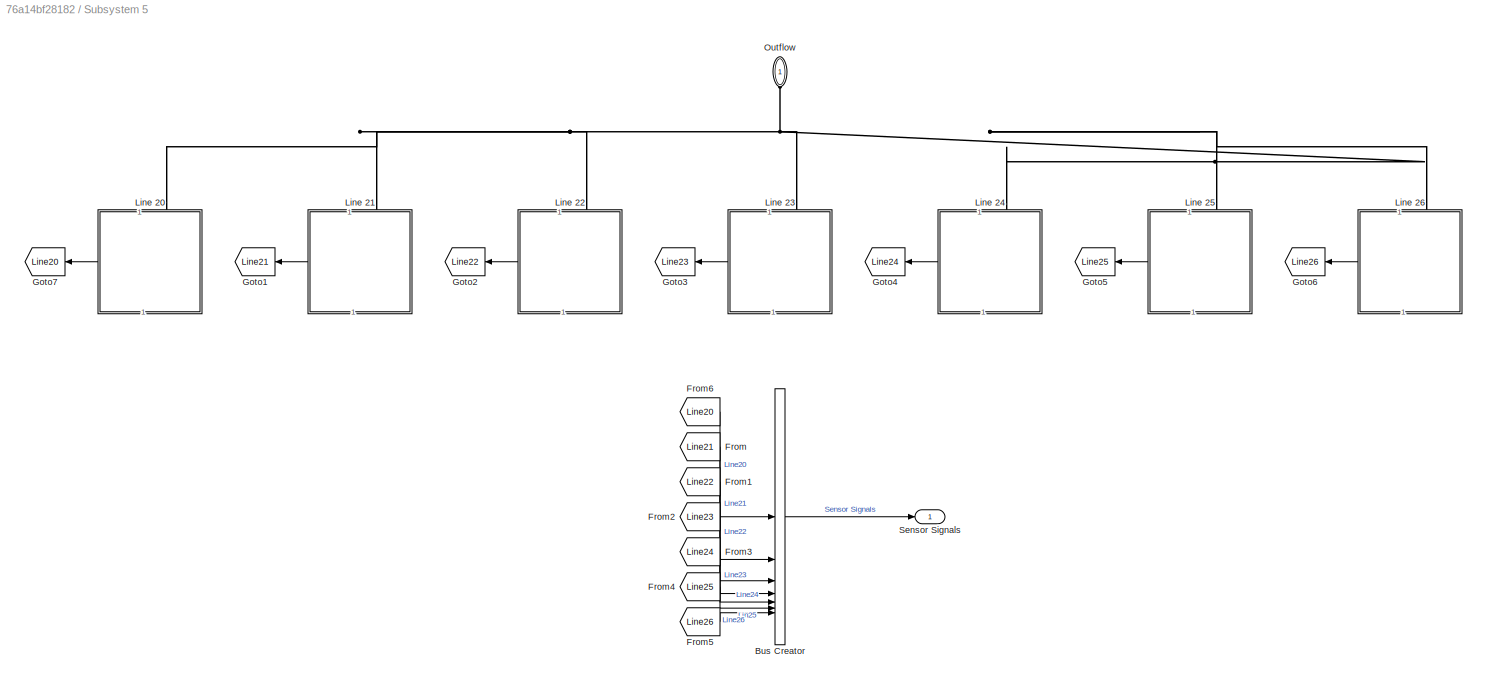
BLOCK [SubSystem] Subsystem 5
BLOCK [BusCreator] Subsystem 5/Bus Creator
  DisplayOption = bar
  InheritFromInputs = on
  Inputs = 7
  NameLocation = top
BLOCK [From] Subsystem 5/From
  GotoTag = Line21
BLOCK [From] Subsystem 5/From1
  GotoTag = Line22
BLOCK [From] Subsystem 5/From2
  GotoTag = Line23
BLOCK [From] Subsystem 5/From3
  GotoTag = Line24
BLOCK [From] Subsystem 5/From4
  GotoTag = Line25
BLOCK [From] Subsystem 5/From5
  GotoTag = Line26
BLOCK [From] Subsystem 5/From6
  GotoTag = Line20
BLOCK [Goto] Subsystem 5/Goto1
  GotoTag = Line21
BLOCK [Goto] Subsystem 5/Goto2
  GotoTag = Line22
BLOCK [Goto] Subsystem 5/Goto3
  GotoTag = Line23
BLOCK [Goto] Subsystem 5/Goto4
  GotoTag = Line24
BLOCK [Goto] Subsystem 5/Goto5
  GotoTag = Line25
BLOCK [Goto] Subsystem 5/Goto6
  GotoTag = Line26
BLOCK [Goto] Subsystem 5/Goto7
  GotoTag = Line20
BLOCK [SubSystem] Subsystem 5/Line 20
BLOCK [BusCreator] Subsystem 5/Line 20/Bus Creator
  DisplayOption = bar
  InheritFromInputs = on
  Inputs = 3
BLOCK [Reference] Subsystem 5/Line 20/Centrifugal Pump  REF=SimscapeFluids_lib/Isothermal Liquid/Pumps & Motors/Centrifugal Pump
(IL)
  AttributesFormatString = Ebara:EVMS(L)1 10/0.55*
  SourceBlock = SimscapeFluids_lib/Isothermal Liquid/Pumps & Motors/Centrifugal Pump\n(IL)
  SourceType = Centrifugal Pump\n(IL)
  Tag = {'toolbox/physmod/fluids/fluids/SimscapeFluids_lib_parts';'Isothermal_Liquid/Pumps_and_Motors/Centrifugal_Pump__IL_/Ebara/EVMS_L_1_10_0_55_.xml'}
BLOCK [PMIOPort] Subsystem 5/Line 20/Flow
  NameLocation = right
  Side = Right
BLOCK [Reference] Subsystem 5/Line 20/Flow Rate Sensor  REF=fl_lib/Isothermal Liquid/Sensors/Flow Rate Sensor
(IL)
  NameLocation = left
  SourceBlock = fl_lib/Isothermal Liquid/Sensors/Flow Rate Sensor\n(IL)
  SourceType = Flow Rate Sensor\n(IL)
BLOCK [Reference] Subsystem 5/Line 20/Ideal Angular Velocity Source1  REF=fl_lib/Mechanical/Mechanical Sources/Ideal Angular
Velocity Source
  NameLocation = top
  SourceBlock = fl_lib/Mechanical/Mechanical Sources/Ideal Angular\nVelocity Source
  SourceType = Ideal Angular\nVelocity Source
BLOCK [Reference] Subsystem 5/Line 20/Mechanical Rotational Reference2  REF=fl_lib/Mechanical/Rotational Elements/Mechanical
Rotational Reference
  NameLocation = top
  SourceBlock = fl_lib/Mechanical/Rotational Elements/Mechanical\nRotational Reference
  SourceType = Mechanical\nRotational Reference
BLOCK [Reference] Subsystem 5/Line 20/Mechanical Rotational Reference3  REF=fl_lib/Mechanical/Rotational Elements/Mechanical
Rotational Reference
  NameLocation = top
  SourceBlock = fl_lib/Mechanical/Rotational Elements/Mechanical\nRotational Reference
  SourceType = Mechanical\nRotational Reference
BLOCK [Constant] Subsystem 5/Line 20/Motor Speed (2450-3000 rpm)
  Value = pump_speed/60
BLOCK [Reference] Subsystem 5/Line 20/PS-Simulink Converter  REF=nesl_utility/PS-Simulink
Converter
  NameLocation = top
  SourceBlock = nesl_utility/PS-Simulink\nConverter
  SourceType = PS-Simulink\nConverter
BLOCK [Reference] Subsystem 5/Line 20/PS-Simulink Converter1  REF=nesl_utility/PS-Simulink
Converter
  NameLocation = top
  SourceBlock = nesl_utility/PS-Simulink\nConverter
  SourceType = PS-Simulink\nConverter
BLOCK [Reference] Subsystem 5/Line 20/PS-Simulink Converter4  REF=nesl_utility/PS-Simulink
Converter
  NameLocation = top
  SourceBlock = nesl_utility/PS-Simulink\nConverter
  SourceType = PS-Simulink\nConverter
BLOCK [Gain] Subsystem 5/Line 20/Pa to kPa
  Gain = 1/1000
  NameLocation = top
BLOCK [Reference] Subsystem 5/Line 20/Pipe 1  REF=SimscapeFluids_lib/Isothermal Liquid/Pipes & Fittings/Pipe (IL)
  NameLocation = right
  SourceBlock = SimscapeFluids_lib/Isothermal Liquid/Pipes & Fittings/Pipe (IL)
  SourceType = Pipe (IL)
BLOCK [Reference] Subsystem 5/Line 20/Pipe 2  REF=SimscapeFluids_lib/Isothermal Liquid/Pipes & Fittings/Pipe (IL)
  NameLocation = left
  SourceBlock = SimscapeFluids_lib/Isothermal Liquid/Pipes & Fittings/Pipe (IL)
  SourceType = Pipe (IL)
BLOCK [Reference] Subsystem 5/Line 20/Pressure Sensor  REF=fl_lib/Isothermal Liquid/Sensors/Pressure Sensor (IL)
  NameLocation = top
  SourceBlock = fl_lib/Isothermal Liquid/Sensors/Pressure Sensor (IL)
  SourceType = Pressure Sensor (IL)
BLOCK [Reference] Subsystem 5/Line 20/Rotational Power Sensor   REF=sdl_lib/Sensors/Rotational Power
Sensor
  NameLocation = right
  SourceBlock = sdl_lib/Sensors/Rotational Power\nSensor
  SourceType = Rotational Power\nSensor
BLOCK [Outport] Subsystem 5/Line 20/Sensor Signals
  NameLocation = top
BLOCK [Reference] Subsystem 5/Line 20/Simulink-PS Converter1  REF=nesl_utility/Simulink-PS
Converter
  SourceBlock = nesl_utility/Simulink-PS\nConverter
  SourceType = Simulink-PS\nConverter
BLOCK [Reference] Subsystem 5/Line 20/Source  REF=fl_lib/Isothermal Liquid/Elements/Reservoir (IL)
  NameLocation = right
  SourceBlock = fl_lib/Isothermal Liquid/Elements/Reservoir (IL)
  SourceType = Reservoir (IL)
BLOCK [Gain] Subsystem 5/Line 20/m^3//s to l//m
  Gain = 60000
  NameLocation = top
BLOCK [SubSystem] Subsystem 5/Line 21
BLOCK [BusCreator] Subsystem 5/Line 21/Bus Creator
  DisplayOption = bar
  InheritFromInputs = on
  Inputs = 3
BLOCK [Reference] Subsystem 5/Line 21/Centrifugal Pump  REF=SimscapeFluids_lib/Isothermal Liquid/Pumps & Motors/Centrifugal Pump
(IL)
  AttributesFormatString = Ebara:EVMS(L)1 10/0.55*
  SourceBlock = SimscapeFluids_lib/Isothermal Liquid/Pumps & Motors/Centrifugal Pump\n(IL)
  SourceType = Centrifugal Pump\n(IL)
  Tag = {'toolbox/physmod/fluids/fluids/SimscapeFluids_lib_parts';'Isothermal_Liquid/Pumps_and_Motors/Centrifugal_Pump__IL_/Ebara/EVMS_L_1_10_0_55_.xml'}
BLOCK [PMIOPort] Subsystem 5/Line 21/Flow
  NameLocation = right
  Side = Right
BLOCK [Reference] Subsystem 5/Line 21/Flow Rate Sensor  REF=fl_lib/Isothermal Liquid/Sensors/Flow Rate Sensor
(IL)
  NameLocation = left
  SourceBlock = fl_lib/Isothermal Liquid/Sensors/Flow Rate Sensor\n(IL)
  SourceType = Flow Rate Sensor\n(IL)
BLOCK [Reference] Subsystem 5/Line 21/Ideal Angular Velocity Source1  REF=fl_lib/Mechanical/Mechanical Sources/Ideal Angular
Velocity Source
  NameLocation = top
  SourceBlock = fl_lib/Mechanical/Mechanical Sources/Ideal Angular\nVelocity Source
  SourceType = Ideal Angular\nVelocity Source
BLOCK [Reference] Subsystem 5/Line 21/Mechanical Rotational Reference2  REF=fl_lib/Mechanical/Rotational Elements/Mechanical
Rotational Reference
  NameLocation = top
  SourceBlock = fl_lib/Mechanical/Rotational Elements/Mechanical\nRotational Reference
  SourceType = Mechanical\nRotational Reference
BLOCK [Reference] Subsystem 5/Line 21/Mechanical Rotational Reference3  REF=fl_lib/Mechanical/Rotational Elements/Mechanical
Rotational Reference
  NameLocation = top
  SourceBlock = fl_lib/Mechanical/Rotational Elements/Mechanical\nRotational Reference
  SourceType = Mechanical\nRotational Reference
BLOCK [Constant] Subsystem 5/Line 21/Motor Speed (2450-3000 rpm)
  Value = pump_speed/60
BLOCK [Reference] Subsystem 5/Line 21/PS-Simulink Converter  REF=nesl_utility/PS-Simulink
Converter
  NameLocation = top
  SourceBlock = nesl_utility/PS-Simulink\nConverter
  SourceType = PS-Simulink\nConverter
BLOCK [Reference] Subsystem 5/Line 21/PS-Simulink Converter1  REF=nesl_utility/PS-Simulink
Converter
  NameLocation = top
  SourceBlock = nesl_utility/PS-Simulink\nConverter
  SourceType = PS-Simulink\nConverter
BLOCK [Reference] Subsystem 5/Line 21/PS-Simulink Converter4  REF=nesl_utility/PS-Simulink
Converter
  NameLocation = top
  SourceBlock = nesl_utility/PS-Simulink\nConverter
  SourceType = PS-Simulink\nConverter
BLOCK [Gain] Subsystem 5/Line 21/Pa to kPa
  Gain = 1/1000
  NameLocation = top
BLOCK [Reference] Subsystem 5/Line 21/Pipe 1  REF=SimscapeFluids_lib/Isothermal Liquid/Pipes & Fittings/Pipe (IL)
  NameLocation = right
  SourceBlock = SimscapeFluids_lib/Isothermal Liquid/Pipes & Fittings/Pipe (IL)
  SourceType = Pipe (IL)
BLOCK [Reference] Subsystem 5/Line 21/Pipe 2  REF=SimscapeFluids_lib/Isothermal Liquid/Pipes & Fittings/Pipe (IL)
  NameLocation = left
  SourceBlock = SimscapeFluids_lib/Isothermal Liquid/Pipes & Fittings/Pipe (IL)
  SourceType = Pipe (IL)
BLOCK [Reference] Subsystem 5/Line 21/Pressure Sensor  REF=fl_lib/Isothermal Liquid/Sensors/Pressure Sensor (IL)
  NameLocation = top
  SourceBlock = fl_lib/Isothermal Liquid/Sensors/Pressure Sensor (IL)
  SourceType = Pressure Sensor (IL)
BLOCK [Reference] Subsystem 5/Line 21/Rotational Power Sensor   REF=sdl_lib/Sensors/Rotational Power
Sensor
  NameLocation = right
  SourceBlock = sdl_lib/Sensors/Rotational Power\nSensor
  SourceType = Rotational Power\nSensor
BLOCK [Outport] Subsystem 5/Line 21/Sensor Signals
  NameLocation = top
BLOCK [Reference] Subsystem 5/Line 21/Simulink-PS Converter1  REF=nesl_utility/Simulink-PS
Converter
  SourceBlock = nesl_utility/Simulink-PS\nConverter
  SourceType = Simulink-PS\nConverter
BLOCK [Reference] Subsystem 5/Line 21/Source  REF=fl_lib/Isothermal Liquid/Elements/Reservoir (IL)
  NameLocation = right
  SourceBlock = fl_lib/Isothermal Liquid/Elements/Reservoir (IL)
  SourceType = Reservoir (IL)
BLOCK [Gain] Subsystem 5/Line 21/m^3//s to l//m
  Gain = 60000
  NameLocation = top
BLOCK [SubSystem] Subsystem 5/Line 22
BLOCK [BusCreator] Subsystem 5/Line 22/Bus Creator
  DisplayOption = bar
  InheritFromInputs = on
  Inputs = 3
BLOCK [Reference] Subsystem 5/Line 22/Centrifugal Pump  REF=SimscapeFluids_lib/Isothermal Liquid/Pumps & Motors/Centrifugal Pump
(IL)
  AttributesFormatString = Ebara:EVMS(L)1 10/0.55*
  SourceBlock = SimscapeFluids_lib/Isothermal Liquid/Pumps & Motors/Centrifugal Pump\n(IL)
  SourceType = Centrifugal Pump\n(IL)
  Tag = {'toolbox/physmod/fluids/fluids/SimscapeFluids_lib_parts';'Isothermal_Liquid/Pumps_and_Motors/Centrifugal_Pump__IL_/Ebara/EVMS_L_1_10_0_55_.xml'}
BLOCK [PMIOPort] Subsystem 5/Line 22/Flow
  NameLocation = right
  Side = Right
BLOCK [Reference] Subsystem 5/Line 22/Flow Rate Sensor  REF=fl_lib/Isothermal Liquid/Sensors/Flow Rate Sensor
(IL)
  NameLocation = left
  SourceBlock = fl_lib/Isothermal Liquid/Sensors/Flow Rate Sensor\n(IL)
  SourceType = Flow Rate Sensor\n(IL)
BLOCK [Reference] Subsystem 5/Line 22/Ideal Angular Velocity Source1  REF=fl_lib/Mechanical/Mechanical Sources/Ideal Angular
Velocity Source
  NameLocation = top
  SourceBlock = fl_lib/Mechanical/Mechanical Sources/Ideal Angular\nVelocity Source
  SourceType = Ideal Angular\nVelocity Source
BLOCK [Reference] Subsystem 5/Line 22/Mechanical Rotational Reference2  REF=fl_lib/Mechanical/Rotational Elements/Mechanical
Rotational Reference
  NameLocation = top
  SourceBlock = fl_lib/Mechanical/Rotational Elements/Mechanical\nRotational Reference
  SourceType = Mechanical\nRotational Reference
BLOCK [Reference] Subsystem 5/Line 22/Mechanical Rotational Reference3  REF=fl_lib/Mechanical/Rotational Elements/Mechanical
Rotational Reference
  NameLocation = top
  SourceBlock = fl_lib/Mechanical/Rotational Elements/Mechanical\nRotational Reference
  SourceType = Mechanical\nRotational Reference
BLOCK [Constant] Subsystem 5/Line 22/Motor Speed (2450-3000 rpm)
  Value = pump_speed/60
BLOCK [Reference] Subsystem 5/Line 22/PS-Simulink Converter  REF=nesl_utility/PS-Simulink
Converter
  NameLocation = top
  SourceBlock = nesl_utility/PS-Simulink\nConverter
  SourceType = PS-Simulink\nConverter
BLOCK [Reference] Subsystem 5/Line 22/PS-Simulink Converter1  REF=nesl_utility/PS-Simulink
Converter
  NameLocation = top
  SourceBlock = nesl_utility/PS-Simulink\nConverter
  SourceType = PS-Simulink\nConverter
BLOCK [Reference] Subsystem 5/Line 22/PS-Simulink Converter4  REF=nesl_utility/PS-Simulink
Converter
  NameLocation = top
  SourceBlock = nesl_utility/PS-Simulink\nConverter
  SourceType = PS-Simulink\nConverter
BLOCK [Gain] Subsystem 5/Line 22/Pa to kPa
  Gain = 1/1000
  NameLocation = top
BLOCK [Reference] Subsystem 5/Line 22/Pipe 1  REF=SimscapeFluids_lib/Isothermal Liquid/Pipes & Fittings/Pipe (IL)
  NameLocation = right
  SourceBlock = SimscapeFluids_lib/Isothermal Liquid/Pipes & Fittings/Pipe (IL)
  SourceType = Pipe (IL)
BLOCK [Reference] Subsystem 5/Line 22/Pipe 2  REF=SimscapeFluids_lib/Isothermal Liquid/Pipes & Fittings/Pipe (IL)
  NameLocation = left
  SourceBlock = SimscapeFluids_lib/Isothermal Liquid/Pipes & Fittings/Pipe (IL)
  SourceType = Pipe (IL)
BLOCK [Reference] Subsystem 5/Line 22/Pressure Sensor  REF=fl_lib/Isothermal Liquid/Sensors/Pressure Sensor (IL)
  NameLocation = top
  SourceBlock = fl_lib/Isothermal Liquid/Sensors/Pressure Sensor (IL)
  SourceType = Pressure Sensor (IL)
BLOCK [Reference] Subsystem 5/Line 22/Rotational Power Sensor   REF=sdl_lib/Sensors/Rotational Power
Sensor
  NameLocation = right
  SourceBlock = sdl_lib/Sensors/Rotational Power\nSensor
  SourceType = Rotational Power\nSensor
BLOCK [Outport] Subsystem 5/Line 22/Sensor Signals
  NameLocation = top
BLOCK [Reference] Subsystem 5/Line 22/Simulink-PS Converter1  REF=nesl_utility/Simulink-PS
Converter
  SourceBlock = nesl_utility/Simulink-PS\nConverter
  SourceType = Simulink-PS\nConverter
BLOCK [Reference] Subsystem 5/Line 22/Source  REF=fl_lib/Isothermal Liquid/Elements/Reservoir (IL)
  NameLocation = right
  SourceBlock = fl_lib/Isothermal Liquid/Elements/Reservoir (IL)
  SourceType = Reservoir (IL)
BLOCK [Gain] Subsystem 5/Line 22/m^3//s to l//m
  Gain = 60000
  NameLocation = top
BLOCK [SubSystem] Subsystem 5/Line 23
BLOCK [BusCreator] Subsystem 5/Line 23/Bus Creator
  DisplayOption = bar
  InheritFromInputs = on
  Inputs = 3
BLOCK [Reference] Subsystem 5/Line 23/Centrifugal Pump  REF=SimscapeFluids_lib/Isothermal Liquid/Pumps & Motors/Centrifugal Pump
(IL)
  AttributesFormatString = Ebara:EVMS(L)1 10/0.55*
  SourceBlock = SimscapeFluids_lib/Isothermal Liquid/Pumps & Motors/Centrifugal Pump\n(IL)
  SourceType = Centrifugal Pump\n(IL)
  Tag = {'toolbox/physmod/fluids/fluids/SimscapeFluids_lib_parts';'Isothermal_Liquid/Pumps_and_Motors/Centrifugal_Pump__IL_/Ebara/EVMS_L_1_10_0_55_.xml'}
BLOCK [PMIOPort] Subsystem 5/Line 23/Flow
  NameLocation = right
  Side = Right
BLOCK [Reference] Subsystem 5/Line 23/Flow Rate Sensor  REF=fl_lib/Isothermal Liquid/Sensors/Flow Rate Sensor
(IL)
  NameLocation = left
  SourceBlock = fl_lib/Isothermal Liquid/Sensors/Flow Rate Sensor\n(IL)
  SourceType = Flow Rate Sensor\n(IL)
BLOCK [Reference] Subsystem 5/Line 23/Ideal Angular Velocity Source1  REF=fl_lib/Mechanical/Mechanical Sources/Ideal Angular
Velocity Source
  NameLocation = top
  SourceBlock = fl_lib/Mechanical/Mechanical Sources/Ideal Angular\nVelocity Source
  SourceType = Ideal Angular\nVelocity Source
BLOCK [Reference] Subsystem 5/Line 23/Mechanical Rotational Reference2  REF=fl_lib/Mechanical/Rotational Elements/Mechanical
Rotational Reference
  NameLocation = top
  SourceBlock = fl_lib/Mechanical/Rotational Elements/Mechanical\nRotational Reference
  SourceType = Mechanical\nRotational Reference
BLOCK [Reference] Subsystem 5/Line 23/Mechanical Rotational Reference3  REF=fl_lib/Mechanical/Rotational Elements/Mechanical
Rotational Reference
  NameLocation = top
  SourceBlock = fl_lib/Mechanical/Rotational Elements/Mechanical\nRotational Reference
  SourceType = Mechanical\nRotational Reference
BLOCK [Constant] Subsystem 5/Line 23/Motor Speed (2450-3000 rpm)
  Value = pump_speed/60
BLOCK [Reference] Subsystem 5/Line 23/PS-Simulink Converter  REF=nesl_utility/PS-Simulink
Converter
  NameLocation = top
  SourceBlock = nesl_utility/PS-Simulink\nConverter
  SourceType = PS-Simulink\nConverter
BLOCK [Reference] Subsystem 5/Line 23/PS-Simulink Converter1  REF=nesl_utility/PS-Simulink
Converter
  NameLocation = top
  SourceBlock = nesl_utility/PS-Simulink\nConverter
  SourceType = PS-Simulink\nConverter
BLOCK [Reference] Subsystem 5/Line 23/PS-Simulink Converter4  REF=nesl_utility/PS-Simulink
Converter
  NameLocation = top
  SourceBlock = nesl_utility/PS-Simulink\nConverter
  SourceType = PS-Simulink\nConverter
BLOCK [Gain] Subsystem 5/Line 23/Pa to kPa
  Gain = 1/1000
  NameLocation = top
BLOCK [Reference] Subsystem 5/Line 23/Pipe 1  REF=SimscapeFluids_lib/Isothermal Liquid/Pipes & Fittings/Pipe (IL)
  NameLocation = right
  SourceBlock = SimscapeFluids_lib/Isothermal Liquid/Pipes & Fittings/Pipe (IL)
  SourceType = Pipe (IL)
BLOCK [Reference] Subsystem 5/Line 23/Pipe 2  REF=SimscapeFluids_lib/Isothermal Liquid/Pipes & Fittings/Pipe (IL)
  NameLocation = left
  SourceBlock = SimscapeFluids_lib/Isothermal Liquid/Pipes & Fittings/Pipe (IL)
  SourceType = Pipe (IL)
BLOCK [Reference] Subsystem 5/Line 23/Pressure Sensor  REF=fl_lib/Isothermal Liquid/Sensors/Pressure Sensor (IL)
  NameLocation = top
  SourceBlock = fl_lib/Isothermal Liquid/Sensors/Pressure Sensor (IL)
  SourceType = Pressure Sensor (IL)
BLOCK [Reference] Subsystem 5/Line 23/Rotational Power Sensor   REF=sdl_lib/Sensors/Rotational Power
Sensor
  NameLocation = right
  SourceBlock = sdl_lib/Sensors/Rotational Power\nSensor
  SourceType = Rotational Power\nSensor
BLOCK [Outport] Subsystem 5/Line 23/Sensor Signals
  NameLocation = top
BLOCK [Reference] Subsystem 5/Line 23/Simulink-PS Converter1  REF=nesl_utility/Simulink-PS
Converter
  SourceBlock = nesl_utility/Simulink-PS\nConverter
  SourceType = Simulink-PS\nConverter
BLOCK [Reference] Subsystem 5/Line 23/Source  REF=fl_lib/Isothermal Liquid/Elements/Reservoir (IL)
  NameLocation = right
  SourceBlock = fl_lib/Isothermal Liquid/Elements/Reservoir (IL)
  SourceType = Reservoir (IL)
BLOCK [Gain] Subsystem 5/Line 23/m^3//s to l//m
  Gain = 60000
  NameLocation = top
BLOCK [SubSystem] Subsystem 5/Line 24
BLOCK [BusCreator] Subsystem 5/Line 24/Bus Creator
  DisplayOption = bar
  InheritFromInputs = on
  Inputs = 3
BLOCK [Reference] Subsystem 5/Line 24/Centrifugal Pump  REF=SimscapeFluids_lib/Isothermal Liquid/Pumps & Motors/Centrifugal Pump
(IL)
  AttributesFormatString = Ebara:EVMS(L)1 10/0.55*
  SourceBlock = SimscapeFluids_lib/Isothermal Liquid/Pumps & Motors/Centrifugal Pump\n(IL)
  SourceType = Centrifugal Pump\n(IL)
  Tag = {'toolbox/physmod/fluids/fluids/SimscapeFluids_lib_parts';'Isothermal_Liquid/Pumps_and_Motors/Centrifugal_Pump__IL_/Ebara/EVMS_L_1_10_0_55_.xml'}
BLOCK [PMIOPort] Subsystem 5/Line 24/Flow
  NameLocation = right
  Side = Right
BLOCK [Reference] Subsystem 5/Line 24/Flow Rate Sensor  REF=fl_lib/Isothermal Liquid/Sensors/Flow Rate Sensor
(IL)
  NameLocation = left
  SourceBlock = fl_lib/Isothermal Liquid/Sensors/Flow Rate Sensor\n(IL)
  SourceType = Flow Rate Sensor\n(IL)
BLOCK [Reference] Subsystem 5/Line 24/Ideal Angular Velocity Source1  REF=fl_lib/Mechanical/Mechanical Sources/Ideal Angular
Velocity Source
  NameLocation = top
  SourceBlock = fl_lib/Mechanical/Mechanical Sources/Ideal Angular\nVelocity Source
  SourceType = Ideal Angular\nVelocity Source
BLOCK [Reference] Subsystem 5/Line 24/Mechanical Rotational Reference2  REF=fl_lib/Mechanical/Rotational Elements/Mechanical
Rotational Reference
  NameLocation = top
  SourceBlock = fl_lib/Mechanical/Rotational Elements/Mechanical\nRotational Reference
  SourceType = Mechanical\nRotational Reference
BLOCK [Reference] Subsystem 5/Line 24/Mechanical Rotational Reference3  REF=fl_lib/Mechanical/Rotational Elements/Mechanical
Rotational Reference
  NameLocation = top
  SourceBlock = fl_lib/Mechanical/Rotational Elements/Mechanical\nRotational Reference
  SourceType = Mechanical\nRotational Reference
BLOCK [Constant] Subsystem 5/Line 24/Motor Speed (2450-3000 rpm)
  Value = pump_speed/60
BLOCK [Reference] Subsystem 5/Line 24/PS-Simulink Converter  REF=nesl_utility/PS-Simulink
Converter
  NameLocation = top
  SourceBlock = nesl_utility/PS-Simulink\nConverter
  SourceType = PS-Simulink\nConverter
BLOCK [Reference] Subsystem 5/Line 24/PS-Simulink Converter1  REF=nesl_utility/PS-Simulink
Converter
  NameLocation = top
  SourceBlock = nesl_utility/PS-Simulink\nConverter
  SourceType = PS-Simulink\nConverter
BLOCK [Reference] Subsystem 5/Line 24/PS-Simulink Converter4  REF=nesl_utility/PS-Simulink
Converter
  NameLocation = top
  SourceBlock = nesl_utility/PS-Simulink\nConverter
  SourceType = PS-Simulink\nConverter
BLOCK [Gain] Subsystem 5/Line 24/Pa to kPa
  Gain = 1/1000
  NameLocation = top
BLOCK [Reference] Subsystem 5/Line 24/Pipe 1  REF=SimscapeFluids_lib/Isothermal Liquid/Pipes & Fittings/Pipe (IL)
  NameLocation = right
  SourceBlock = SimscapeFluids_lib/Isothermal Liquid/Pipes & Fittings/Pipe (IL)
  SourceType = Pipe (IL)
BLOCK [Reference] Subsystem 5/Line 24/Pipe 2  REF=SimscapeFluids_lib/Isothermal Liquid/Pipes & Fittings/Pipe (IL)
  NameLocation = left
  SourceBlock = SimscapeFluids_lib/Isothermal Liquid/Pipes & Fittings/Pipe (IL)
  SourceType = Pipe (IL)
BLOCK [Reference] Subsystem 5/Line 24/Pressure Sensor  REF=fl_lib/Isothermal Liquid/Sensors/Pressure Sensor (IL)
  NameLocation = top
  SourceBlock = fl_lib/Isothermal Liquid/Sensors/Pressure Sensor (IL)
  SourceType = Pressure Sensor (IL)
BLOCK [Reference] Subsystem 5/Line 24/Rotational Power Sensor   REF=sdl_lib/Sensors/Rotational Power
Sensor
  NameLocation = right
  SourceBlock = sdl_lib/Sensors/Rotational Power\nSensor
  SourceType = Rotational Power\nSensor
BLOCK [Outport] Subsystem 5/Line 24/Sensor Signals
  NameLocation = top
BLOCK [Reference] Subsystem 5/Line 24/Simulink-PS Converter1  REF=nesl_utility/Simulink-PS
Converter
  SourceBlock = nesl_utility/Simulink-PS\nConverter
  SourceType = Simulink-PS\nConverter
BLOCK [Reference] Subsystem 5/Line 24/Source  REF=fl_lib/Isothermal Liquid/Elements/Reservoir (IL)
  NameLocation = right
  SourceBlock = fl_lib/Isothermal Liquid/Elements/Reservoir (IL)
  SourceType = Reservoir (IL)
BLOCK [Gain] Subsystem 5/Line 24/m^3//s to l//m
  Gain = 60000
  NameLocation = top
BLOCK [SubSystem] Subsystem 5/Line 25
BLOCK [BusCreator] Subsystem 5/Line 25/Bus Creator
  DisplayOption = bar
  InheritFromInputs = on
  Inputs = 3
BLOCK [Reference] Subsystem 5/Line 25/Centrifugal Pump  REF=SimscapeFluids_lib/Isothermal Liquid/Pumps & Motors/Centrifugal Pump
(IL)
  AttributesFormatString = Ebara:EVMS(L)1 10/0.55*
  SourceBlock = SimscapeFluids_lib/Isothermal Liquid/Pumps & Motors/Centrifugal Pump\n(IL)
  SourceType = Centrifugal Pump\n(IL)
  Tag = {'toolbox/physmod/fluids/fluids/SimscapeFluids_lib_parts';'Isothermal_Liquid/Pumps_and_Motors/Centrifugal_Pump__IL_/Ebara/EVMS_L_1_10_0_55_.xml'}
BLOCK [PMIOPort] Subsystem 5/Line 25/Flow
  NameLocation = right
  Side = Right
BLOCK [Reference] Subsystem 5/Line 25/Flow Rate Sensor  REF=fl_lib/Isothermal Liquid/Sensors/Flow Rate Sensor
(IL)
  NameLocation = left
  SourceBlock = fl_lib/Isothermal Liquid/Sensors/Flow Rate Sensor\n(IL)
  SourceType = Flow Rate Sensor\n(IL)
BLOCK [Reference] Subsystem 5/Line 25/Ideal Angular Velocity Source1  REF=fl_lib/Mechanical/Mechanical Sources/Ideal Angular
Velocity Source
  NameLocation = top
  SourceBlock = fl_lib/Mechanical/Mechanical Sources/Ideal Angular\nVelocity Source
  SourceType = Ideal Angular\nVelocity Source
BLOCK [Reference] Subsystem 5/Line 25/Mechanical Rotational Reference2  REF=fl_lib/Mechanical/Rotational Elements/Mechanical
Rotational Reference
  NameLocation = top
  SourceBlock = fl_lib/Mechanical/Rotational Elements/Mechanical\nRotational Reference
  SourceType = Mechanical\nRotational Reference
BLOCK [Reference] Subsystem 5/Line 25/Mechanical Rotational Reference3  REF=fl_lib/Mechanical/Rotational Elements/Mechanical
Rotational Reference
  NameLocation = top
  SourceBlock = fl_lib/Mechanical/Rotational Elements/Mechanical\nRotational Reference
  SourceType = Mechanical\nRotational Reference
BLOCK [Constant] Subsystem 5/Line 25/Motor Speed (2450-3000 rpm)
  Value = pump_speed/60
BLOCK [Reference] Subsystem 5/Line 25/PS-Simulink Converter  REF=nesl_utility/PS-Simulink
Converter
  NameLocation = top
  SourceBlock = nesl_utility/PS-Simulink\nConverter
  SourceType = PS-Simulink\nConverter
BLOCK [Reference] Subsystem 5/Line 25/PS-Simulink Converter1  REF=nesl_utility/PS-Simulink
Converter
  NameLocation = top
  SourceBlock = nesl_utility/PS-Simulink\nConverter
  SourceType = PS-Simulink\nConverter
BLOCK [Reference] Subsystem 5/Line 25/PS-Simulink Converter4  REF=nesl_utility/PS-Simulink
Converter
  NameLocation = top
  SourceBlock = nesl_utility/PS-Simulink\nConverter
  SourceType = PS-Simulink\nConverter
BLOCK [Gain] Subsystem 5/Line 25/Pa to kPa
  Gain = 1/1000
  NameLocation = top
BLOCK [Reference] Subsystem 5/Line 25/Pipe 1  REF=SimscapeFluids_lib/Isothermal Liquid/Pipes & Fittings/Pipe (IL)
  NameLocation = right
  SourceBlock = SimscapeFluids_lib/Isothermal Liquid/Pipes & Fittings/Pipe (IL)
  SourceType = Pipe (IL)
BLOCK [Reference] Subsystem 5/Line 25/Pipe 2  REF=SimscapeFluids_lib/Isothermal Liquid/Pipes & Fittings/Pipe (IL)
  NameLocation = left
  SourceBlock = SimscapeFluids_lib/Isothermal Liquid/Pipes & Fittings/Pipe (IL)
  SourceType = Pipe (IL)
BLOCK [Reference] Subsystem 5/Line 25/Pressure Sensor  REF=fl_lib/Isothermal Liquid/Sensors/Pressure Sensor (IL)
  NameLocation = top
  SourceBlock = fl_lib/Isothermal Liquid/Sensors/Pressure Sensor (IL)
  SourceType = Pressure Sensor (IL)
BLOCK [Reference] Subsystem 5/Line 25/Rotational Power Sensor   REF=sdl_lib/Sensors/Rotational Power
Sensor
  NameLocation = right
  SourceBlock = sdl_lib/Sensors/Rotational Power\nSensor
  SourceType = Rotational Power\nSensor
BLOCK [Outport] Subsystem 5/Line 25/Sensor Signals
  NameLocation = top
BLOCK [Reference] Subsystem 5/Line 25/Simulink-PS Converter1  REF=nesl_utility/Simulink-PS
Converter
  SourceBlock = nesl_utility/Simulink-PS\nConverter
  SourceType = Simulink-PS\nConverter
BLOCK [Reference] Subsystem 5/Line 25/Source  REF=fl_lib/Isothermal Liquid/Elements/Reservoir (IL)
  NameLocation = right
  SourceBlock = fl_lib/Isothermal Liquid/Elements/Reservoir (IL)
  SourceType = Reservoir (IL)
BLOCK [Gain] Subsystem 5/Line 25/m^3//s to l//m
  Gain = 60000
  NameLocation = top
BLOCK [SubSystem] Subsystem 5/Line 26
BLOCK [BusCreator] Subsystem 5/Line 26/Bus Creator
  DisplayOption = bar
  InheritFromInputs = on
  Inputs = 3
BLOCK [Reference] Subsystem 5/Line 26/Centrifugal Pump  REF=SimscapeFluids_lib/Isothermal Liquid/Pumps & Motors/Centrifugal Pump
(IL)
  AttributesFormatString = Ebara:EVMS(L)1 10/0.55*
  SourceBlock = SimscapeFluids_lib/Isothermal Liquid/Pumps & Motors/Centrifugal Pump\n(IL)
  SourceType = Centrifugal Pump\n(IL)
  Tag = {'toolbox/physmod/fluids/fluids/SimscapeFluids_lib_parts';'Isothermal_Liquid/Pumps_and_Motors/Centrifugal_Pump__IL_/Ebara/EVMS_L_1_10_0_55_.xml'}
BLOCK [PMIOPort] Subsystem 5/Line 26/Flow
  NameLocation = right
  Side = Right
BLOCK [Reference] Subsystem 5/Line 26/Flow Rate Sensor  REF=fl_lib/Isothermal Liquid/Sensors/Flow Rate Sensor
(IL)
  NameLocation = left
  SourceBlock = fl_lib/Isothermal Liquid/Sensors/Flow Rate Sensor\n(IL)
  SourceType = Flow Rate Sensor\n(IL)
BLOCK [Reference] Subsystem 5/Line 26/Ideal Angular Velocity Source1  REF=fl_lib/Mechanical/Mechanical Sources/Ideal Angular
Velocity Source
  NameLocation = top
  SourceBlock = fl_lib/Mechanical/Mechanical Sources/Ideal Angular\nVelocity Source
  SourceType = Ideal Angular\nVelocity Source
BLOCK [Reference] Subsystem 5/Line 26/Mechanical Rotational Reference2  REF=fl_lib/Mechanical/Rotational Elements/Mechanical
Rotational Reference
  NameLocation = top
  SourceBlock = fl_lib/Mechanical/Rotational Elements/Mechanical\nRotational Reference
  SourceType = Mechanical\nRotational Reference
BLOCK [Reference] Subsystem 5/Line 26/Mechanical Rotational Reference3  REF=fl_lib/Mechanical/Rotational Elements/Mechanical
Rotational Reference
  NameLocation = top
  SourceBlock = fl_lib/Mechanical/Rotational Elements/Mechanical\nRotational Reference
  SourceType = Mechanical\nRotational Reference
BLOCK [Constant] Subsystem 5/Line 26/Motor Speed (2450-3000 rpm)
  Value = pump_speed/60
BLOCK [Reference] Subsystem 5/Line 26/PS-Simulink Converter  REF=nesl_utility/PS-Simulink
Converter
  NameLocation = top
  SourceBlock = nesl_utility/PS-Simulink\nConverter
  SourceType = PS-Simulink\nConverter
BLOCK [Reference] Subsystem 5/Line 26/PS-Simulink Converter1  REF=nesl_utility/PS-Simulink
Converter
  NameLocation = top
  SourceBlock = nesl_utility/PS-Simulink\nConverter
  SourceType = PS-Simulink\nConverter
BLOCK [Reference] Subsystem 5/Line 26/PS-Simulink Converter4  REF=nesl_utility/PS-Simulink
Converter
  NameLocation = top
  SourceBlock = nesl_utility/PS-Simulink\nConverter
  SourceType = PS-Simulink\nConverter
BLOCK [Gain] Subsystem 5/Line 26/Pa to kPa
  Gain = 1/1000
  NameLocation = top
BLOCK [Reference] Subsystem 5/Line 26/Pipe 1  REF=SimscapeFluids_lib/Isothermal Liquid/Pipes & Fittings/Pipe (IL)
  NameLocation = right
  SourceBlock = SimscapeFluids_lib/Isothermal Liquid/Pipes & Fittings/Pipe (IL)
  SourceType = Pipe (IL)
BLOCK [Reference] Subsystem 5/Line 26/Pipe 2  REF=SimscapeFluids_lib/Isothermal Liquid/Pipes & Fittings/Pipe (IL)
  NameLocation = left
  SourceBlock = SimscapeFluids_lib/Isothermal Liquid/Pipes & Fittings/Pipe (IL)
  SourceType = Pipe (IL)
BLOCK [Reference] Subsystem 5/Line 26/Pressure Sensor  REF=fl_lib/Isothermal Liquid/Sensors/Pressure Sensor (IL)
  NameLocation = top
  SourceBlock = fl_lib/Isothermal Liquid/Sensors/Pressure Sensor (IL)
  SourceType = Pressure Sensor (IL)
BLOCK [Reference] Subsystem 5/Line 26/Rotational Power Sensor   REF=sdl_lib/Sensors/Rotational Power
Sensor
  NameLocation = right
  SourceBlock = sdl_lib/Sensors/Rotational Power\nSensor
  SourceType = Rotational Power\nSensor
BLOCK [Outport] Subsystem 5/Line 26/Sensor Signals
  NameLocation = top
BLOCK [Reference] Subsystem 5/Line 26/Simulink-PS Converter1  REF=nesl_utility/Simulink-PS
Converter
  SourceBlock = nesl_utility/Simulink-PS\nConverter
  SourceType = Simulink-PS\nConverter
BLOCK [Reference] Subsystem 5/Line 26/Source  REF=fl_lib/Isothermal Liquid/Elements/Reservoir (IL)
  NameLocation = right
  SourceBlock = fl_lib/Isothermal Liquid/Elements/Reservoir (IL)
  SourceType = Reservoir (IL)
BLOCK [Gain] Subsystem 5/Line 26/m^3//s to l//m
  Gain = 60000
  NameLocation = top
BLOCK [PMIOPort] Subsystem 5/Outflow
  NameLocation = right
  Side = Left
BLOCK [Outport] Subsystem 5/Sensor Signals
BLOCK [SubSystem] Subsystem 6
BLOCK [BusCreator] Subsystem 6/Bus Creator
  DisplayOption = bar
  InheritFromInputs = on
  Inputs = 4
  NameLocation = top
BLOCK [From] Subsystem 6/From
  GotoTag = Line27
BLOCK [From] Subsystem 6/From1
  GotoTag = Line28
BLOCK [From] Subsystem 6/From2
  GotoTag = Line29
BLOCK [From] Subsystem 6/From3
  GotoTag = Line30
BLOCK [Goto] Subsystem 6/Goto1
  GotoTag = Line27
BLOCK [Goto] Subsystem 6/Goto2
  GotoTag = Line28
BLOCK [Goto] Subsystem 6/Goto3
  GotoTag = Line29
BLOCK [Goto] Subsystem 6/Goto4
  GotoTag = Line30
BLOCK [SubSystem] Subsystem 6/Line 27
BLOCK [BusCreator] Subsystem 6/Line 27/Bus Creator
  DisplayOption = bar
  InheritFromInputs = on
  Inputs = 3
BLOCK [Reference] Subsystem 6/Line 27/Centrifugal Pump  REF=SimscapeFluids_lib/Isothermal Liquid/Pumps & Motors/Centrifugal Pump
(IL)
  AttributesFormatString = Ebara:EVMS(L)1 10/0.55*
  SourceBlock = SimscapeFluids_lib/Isothermal Liquid/Pumps & Motors/Centrifugal Pump\n(IL)
  SourceType = Centrifugal Pump\n(IL)
  Tag = {'toolbox/physmod/fluids/fluids/SimscapeFluids_lib_parts';'Isothermal_Liquid/Pumps_and_Motors/Centrifugal_Pump__IL_/Ebara/EVMS_L_1_10_0_55_.xml'}
BLOCK [PMIOPort] Subsystem 6/Line 27/Flow
  NameLocation = right
  Side = Right
BLOCK [Reference] Subsystem 6/Line 27/Flow Rate Sensor  REF=fl_lib/Isothermal Liquid/Sensors/Flow Rate Sensor
(IL)
  NameLocation = left
  SourceBlock = fl_lib/Isothermal Liquid/Sensors/Flow Rate Sensor\n(IL)
  SourceType = Flow Rate Sensor\n(IL)
BLOCK [Reference] Subsystem 6/Line 27/Ideal Angular Velocity Source1  REF=fl_lib/Mechanical/Mechanical Sources/Ideal Angular
Velocity Source
  NameLocation = top
  SourceBlock = fl_lib/Mechanical/Mechanical Sources/Ideal Angular\nVelocity Source
  SourceType = Ideal Angular\nVelocity Source
BLOCK [Reference] Subsystem 6/Line 27/Mechanical Rotational Reference2  REF=fl_lib/Mechanical/Rotational Elements/Mechanical
Rotational Reference
  NameLocation = top
  SourceBlock = fl_lib/Mechanical/Rotational Elements/Mechanical\nRotational Reference
  SourceType = Mechanical\nRotational Reference
BLOCK [Reference] Subsystem 6/Line 27/Mechanical Rotational Reference3  REF=fl_lib/Mechanical/Rotational Elements/Mechanical
Rotational Reference
  NameLocation = top
  SourceBlock = fl_lib/Mechanical/Rotational Elements/Mechanical\nRotational Reference
  SourceType = Mechanical\nRotational Reference
BLOCK [Constant] Subsystem 6/Line 27/Motor Speed (2450-3000 rpm)
  Value = pump_speed/60
BLOCK [Reference] Subsystem 6/Line 27/PS-Simulink Converter  REF=nesl_utility/PS-Simulink
Converter
  NameLocation = top
  SourceBlock = nesl_utility/PS-Simulink\nConverter
  SourceType = PS-Simulink\nConverter
BLOCK [Reference] Subsystem 6/Line 27/PS-Simulink Converter1  REF=nesl_utility/PS-Simulink
Converter
  NameLocation = top
  SourceBlock = nesl_utility/PS-Simulink\nConverter
  SourceType = PS-Simulink\nConverter
BLOCK [Reference] Subsystem 6/Line 27/PS-Simulink Converter4  REF=nesl_utility/PS-Simulink
Converter
  NameLocation = top
  SourceBlock = nesl_utility/PS-Simulink\nConverter
  SourceType = PS-Simulink\nConverter
BLOCK [Gain] Subsystem 6/Line 27/Pa to kPa
  Gain = 1/1000
  NameLocation = top
BLOCK [Reference] Subsystem 6/Line 27/Pipe 1  REF=SimscapeFluids_lib/Isothermal Liquid/Pipes & Fittings/Pipe (IL)
  NameLocation = right
  SourceBlock = SimscapeFluids_lib/Isothermal Liquid/Pipes & Fittings/Pipe (IL)
  SourceType = Pipe (IL)
BLOCK [Reference] Subsystem 6/Line 27/Pipe 2  REF=SimscapeFluids_lib/Isothermal Liquid/Pipes & Fittings/Pipe (IL)
  NameLocation = left
  SourceBlock = SimscapeFluids_lib/Isothermal Liquid/Pipes & Fittings/Pipe (IL)
  SourceType = Pipe (IL)
BLOCK [Reference] Subsystem 6/Line 27/Pressure Sensor  REF=fl_lib/Isothermal Liquid/Sensors/Pressure Sensor (IL)
  NameLocation = top
  SourceBlock = fl_lib/Isothermal Liquid/Sensors/Pressure Sensor (IL)
  SourceType = Pressure Sensor (IL)
BLOCK [Reference] Subsystem 6/Line 27/Rotational Power Sensor   REF=sdl_lib/Sensors/Rotational Power
Sensor
  NameLocation = right
  SourceBlock = sdl_lib/Sensors/Rotational Power\nSensor
  SourceType = Rotational Power\nSensor
BLOCK [Outport] Subsystem 6/Line 27/Sensor Signals
  NameLocation = top
BLOCK [Reference] Subsystem 6/Line 27/Simulink-PS Converter1  REF=nesl_utility/Simulink-PS
Converter
  SourceBlock = nesl_utility/Simulink-PS\nConverter
  SourceType = Simulink-PS\nConverter
BLOCK [Reference] Subsystem 6/Line 27/Source  REF=fl_lib/Isothermal Liquid/Elements/Reservoir (IL)
  NameLocation = right
  SourceBlock = fl_lib/Isothermal Liquid/Elements/Reservoir (IL)
  SourceType = Reservoir (IL)
BLOCK [Gain] Subsystem 6/Line 27/m^3//s to l//m
  Gain = 60000
  NameLocation = top
BLOCK [SubSystem] Subsystem 6/Line 28
BLOCK [BusCreator] Subsystem 6/Line 28/Bus Creator
  DisplayOption = bar
  InheritFromInputs = on
  Inputs = 3
BLOCK [Reference] Subsystem 6/Line 28/Centrifugal Pump  REF=SimscapeFluids_lib/Isothermal Liquid/Pumps & Motors/Centrifugal Pump
(IL)
  AttributesFormatString = Ebara:EVMS(L)1 10/0.55*
  SourceBlock = SimscapeFluids_lib/Isothermal Liquid/Pumps & Motors/Centrifugal Pump\n(IL)
  SourceType = Centrifugal Pump\n(IL)
  Tag = {'toolbox/physmod/fluids/fluids/SimscapeFluids_lib_parts';'Isothermal_Liquid/Pumps_and_Motors/Centrifugal_Pump__IL_/Ebara/EVMS_L_1_10_0_55_.xml'}
BLOCK [PMIOPort] Subsystem 6/Line 28/Flow
  NameLocation = right
  Side = Right
BLOCK [Reference] Subsystem 6/Line 28/Flow Rate Sensor  REF=fl_lib/Isothermal Liquid/Sensors/Flow Rate Sensor
(IL)
  NameLocation = left
  SourceBlock = fl_lib/Isothermal Liquid/Sensors/Flow Rate Sensor\n(IL)
  SourceType = Flow Rate Sensor\n(IL)
BLOCK [Reference] Subsystem 6/Line 28/Ideal Angular Velocity Source1  REF=fl_lib/Mechanical/Mechanical Sources/Ideal Angular
Velocity Source
  NameLocation = top
  SourceBlock = fl_lib/Mechanical/Mechanical Sources/Ideal Angular\nVelocity Source
  SourceType = Ideal Angular\nVelocity Source
BLOCK [Reference] Subsystem 6/Line 28/Mechanical Rotational Reference2  REF=fl_lib/Mechanical/Rotational Elements/Mechanical
Rotational Reference
  NameLocation = top
  SourceBlock = fl_lib/Mechanical/Rotational Elements/Mechanical\nRotational Reference
  SourceType = Mechanical\nRotational Reference
BLOCK [Reference] Subsystem 6/Line 28/Mechanical Rotational Reference3  REF=fl_lib/Mechanical/Rotational Elements/Mechanical
Rotational Reference
  NameLocation = top
  SourceBlock = fl_lib/Mechanical/Rotational Elements/Mechanical\nRotational Reference
  SourceType = Mechanical\nRotational Reference
BLOCK [Constant] Subsystem 6/Line 28/Motor Speed (2450-3000 rpm)
  Value = pump_speed/60
BLOCK [Reference] Subsystem 6/Line 28/PS-Simulink Converter  REF=nesl_utility/PS-Simulink
Converter
  NameLocation = top
  SourceBlock = nesl_utility/PS-Simulink\nConverter
  SourceType = PS-Simulink\nConverter
BLOCK [Reference] Subsystem 6/Line 28/PS-Simulink Converter1  REF=nesl_utility/PS-Simulink
Converter
  NameLocation = top
  SourceBlock = nesl_utility/PS-Simulink\nConverter
  SourceType = PS-Simulink\nConverter
BLOCK [Reference] Subsystem 6/Line 28/PS-Simulink Converter4  REF=nesl_utility/PS-Simulink
Converter
  NameLocation = top
  SourceBlock = nesl_utility/PS-Simulink\nConverter
  SourceType = PS-Simulink\nConverter
BLOCK [Gain] Subsystem 6/Line 28/Pa to kPa
  Gain = 1/1000
  NameLocation = top
BLOCK [Reference] Subsystem 6/Line 28/Pipe 1  REF=SimscapeFluids_lib/Isothermal Liquid/Pipes & Fittings/Pipe (IL)
  NameLocation = right
  SourceBlock = SimscapeFluids_lib/Isothermal Liquid/Pipes & Fittings/Pipe (IL)
  SourceType = Pipe (IL)
BLOCK [Reference] Subsystem 6/Line 28/Pipe 2  REF=SimscapeFluids_lib/Isothermal Liquid/Pipes & Fittings/Pipe (IL)
  NameLocation = left
  SourceBlock = SimscapeFluids_lib/Isothermal Liquid/Pipes & Fittings/Pipe (IL)
  SourceType = Pipe (IL)
BLOCK [Reference] Subsystem 6/Line 28/Pressure Sensor  REF=fl_lib/Isothermal Liquid/Sensors/Pressure Sensor (IL)
  NameLocation = top
  SourceBlock = fl_lib/Isothermal Liquid/Sensors/Pressure Sensor (IL)
  SourceType = Pressure Sensor (IL)
BLOCK [Reference] Subsystem 6/Line 28/Rotational Power Sensor   REF=sdl_lib/Sensors/Rotational Power
Sensor
  NameLocation = right
  SourceBlock = sdl_lib/Sensors/Rotational Power\nSensor
  SourceType = Rotational Power\nSensor
BLOCK [Outport] Subsystem 6/Line 28/Sensor Signals
  NameLocation = top
BLOCK [Reference] Subsystem 6/Line 28/Simulink-PS Converter1  REF=nesl_utility/Simulink-PS
Converter
  SourceBlock = nesl_utility/Simulink-PS\nConverter
  SourceType = Simulink-PS\nConverter
BLOCK [Reference] Subsystem 6/Line 28/Source  REF=fl_lib/Isothermal Liquid/Elements/Reservoir (IL)
  NameLocation = right
  SourceBlock = fl_lib/Isothermal Liquid/Elements/Reservoir (IL)
  SourceType = Reservoir (IL)
BLOCK [Gain] Subsystem 6/Line 28/m^3//s to l//m
  Gain = 60000
  NameLocation = top
BLOCK [SubSystem] Subsystem 6/Line 29
BLOCK [BusCreator] Subsystem 6/Line 29/Bus Creator
  DisplayOption = bar
  InheritFromInputs = on
  Inputs = 3
BLOCK [Reference] Subsystem 6/Line 29/Centrifugal Pump  REF=SimscapeFluids_lib/Isothermal Liquid/Pumps & Motors/Centrifugal Pump
(IL)
  AttributesFormatString = Ebara:EVMS(L)1 10/0.55*
  SourceBlock = SimscapeFluids_lib/Isothermal Liquid/Pumps & Motors/Centrifugal Pump\n(IL)
  SourceType = Centrifugal Pump\n(IL)
  Tag = {'toolbox/physmod/fluids/fluids/SimscapeFluids_lib_parts';'Isothermal_Liquid/Pumps_and_Motors/Centrifugal_Pump__IL_/Ebara/EVMS_L_1_10_0_55_.xml'}
BLOCK [PMIOPort] Subsystem 6/Line 29/Flow
  NameLocation = right
  Side = Right
BLOCK [Reference] Subsystem 6/Line 29/Flow Rate Sensor  REF=fl_lib/Isothermal Liquid/Sensors/Flow Rate Sensor
(IL)
  NameLocation = left
  SourceBlock = fl_lib/Isothermal Liquid/Sensors/Flow Rate Sensor\n(IL)
  SourceType = Flow Rate Sensor\n(IL)
BLOCK [Reference] Subsystem 6/Line 29/Ideal Angular Velocity Source1  REF=fl_lib/Mechanical/Mechanical Sources/Ideal Angular
Velocity Source
  NameLocation = top
  SourceBlock = fl_lib/Mechanical/Mechanical Sources/Ideal Angular\nVelocity Source
  SourceType = Ideal Angular\nVelocity Source
BLOCK [Reference] Subsystem 6/Line 29/Mechanical Rotational Reference2  REF=fl_lib/Mechanical/Rotational Elements/Mechanical
Rotational Reference
  NameLocation = top
  SourceBlock = fl_lib/Mechanical/Rotational Elements/Mechanical\nRotational Reference
  SourceType = Mechanical\nRotational Reference
BLOCK [Reference] Subsystem 6/Line 29/Mechanical Rotational Reference3  REF=fl_lib/Mechanical/Rotational Elements/Mechanical
Rotational Reference
  NameLocation = top
  SourceBlock = fl_lib/Mechanical/Rotational Elements/Mechanical\nRotational Reference
  SourceType = Mechanical\nRotational Reference
BLOCK [Constant] Subsystem 6/Line 29/Motor Speed (2450-3000 rpm)
  Value = pump_speed/60
BLOCK [Reference] Subsystem 6/Line 29/PS-Simulink Converter  REF=nesl_utility/PS-Simulink
Converter
  NameLocation = top
  SourceBlock = nesl_utility/PS-Simulink\nConverter
  SourceType = PS-Simulink\nConverter
BLOCK [Reference] Subsystem 6/Line 29/PS-Simulink Converter1  REF=nesl_utility/PS-Simulink
Converter
  NameLocation = top
  SourceBlock = nesl_utility/PS-Simulink\nConverter
  SourceType = PS-Simulink\nConverter
BLOCK [Reference] Subsystem 6/Line 29/PS-Simulink Converter4  REF=nesl_utility/PS-Simulink
Converter
  NameLocation = top
  SourceBlock = nesl_utility/PS-Simulink\nConverter
  SourceType = PS-Simulink\nConverter
BLOCK [Gain] Subsystem 6/Line 29/Pa to kPa
  Gain = 1/1000
  NameLocation = top
BLOCK [Reference] Subsystem 6/Line 29/Pipe 1  REF=SimscapeFluids_lib/Isothermal Liquid/Pipes & Fittings/Pipe (IL)
  NameLocation = right
  SourceBlock = SimscapeFluids_lib/Isothermal Liquid/Pipes & Fittings/Pipe (IL)
  SourceType = Pipe (IL)
BLOCK [Reference] Subsystem 6/Line 29/Pipe 2  REF=SimscapeFluids_lib/Isothermal Liquid/Pipes & Fittings/Pipe (IL)
  NameLocation = left
  SourceBlock = SimscapeFluids_lib/Isothermal Liquid/Pipes & Fittings/Pipe (IL)
  SourceType = Pipe (IL)
BLOCK [Reference] Subsystem 6/Line 29/Pressure Sensor  REF=fl_lib/Isothermal Liquid/Sensors/Pressure Sensor (IL)
  NameLocation = top
  SourceBlock = fl_lib/Isothermal Liquid/Sensors/Pressure Sensor (IL)
  SourceType = Pressure Sensor (IL)
BLOCK [Reference] Subsystem 6/Line 29/Rotational Power Sensor   REF=sdl_lib/Sensors/Rotational Power
Sensor
  NameLocation = right
  SourceBlock = sdl_lib/Sensors/Rotational Power\nSensor
  SourceType = Rotational Power\nSensor
BLOCK [Outport] Subsystem 6/Line 29/Sensor Signals
  NameLocation = top
BLOCK [Reference] Subsystem 6/Line 29/Simulink-PS Converter1  REF=nesl_utility/Simulink-PS
Converter
  SourceBlock = nesl_utility/Simulink-PS\nConverter
  SourceType = Simulink-PS\nConverter
BLOCK [Reference] Subsystem 6/Line 29/Source  REF=fl_lib/Isothermal Liquid/Elements/Reservoir (IL)
  NameLocation = right
  SourceBlock = fl_lib/Isothermal Liquid/Elements/Reservoir (IL)
  SourceType = Reservoir (IL)
BLOCK [Gain] Subsystem 6/Line 29/m^3//s to l//m
  Gain = 60000
  NameLocation = top
BLOCK [SubSystem] Subsystem 6/Line 30
BLOCK [BusCreator] Subsystem 6/Line 30/Bus Creator
  DisplayOption = bar
  InheritFromInputs = on
  Inputs = 3
BLOCK [Reference] Subsystem 6/Line 30/Centrifugal Pump  REF=SimscapeFluids_lib/Isothermal Liquid/Pumps & Motors/Centrifugal Pump
(IL)
  AttributesFormatString = Ebara:EVMS(L)1 10/0.55*
  SourceBlock = SimscapeFluids_lib/Isothermal Liquid/Pumps & Motors/Centrifugal Pump\n(IL)
  SourceType = Centrifugal Pump\n(IL)
  Tag = {'toolbox/physmod/fluids/fluids/SimscapeFluids_lib_parts';'Isothermal_Liquid/Pumps_and_Motors/Centrifugal_Pump__IL_/Ebara/EVMS_L_1_10_0_55_.xml'}
BLOCK [PMIOPort] Subsystem 6/Line 30/Flow
  NameLocation = right
  Side = Right
BLOCK [Reference] Subsystem 6/Line 30/Flow Rate Sensor  REF=fl_lib/Isothermal Liquid/Sensors/Flow Rate Sensor
(IL)
  NameLocation = left
  SourceBlock = fl_lib/Isothermal Liquid/Sensors/Flow Rate Sensor\n(IL)
  SourceType = Flow Rate Sensor\n(IL)
BLOCK [Reference] Subsystem 6/Line 30/Ideal Angular Velocity Source1  REF=fl_lib/Mechanical/Mechanical Sources/Ideal Angular
Velocity Source
  NameLocation = top
  SourceBlock = fl_lib/Mechanical/Mechanical Sources/Ideal Angular\nVelocity Source
  SourceType = Ideal Angular\nVelocity Source
BLOCK [Reference] Subsystem 6/Line 30/Mechanical Rotational Reference2  REF=fl_lib/Mechanical/Rotational Elements/Mechanical
Rotational Reference
  NameLocation = top
  SourceBlock = fl_lib/Mechanical/Rotational Elements/Mechanical\nRotational Reference
  SourceType = Mechanical\nRotational Reference
BLOCK [Reference] Subsystem 6/Line 30/Mechanical Rotational Reference3  REF=fl_lib/Mechanical/Rotational Elements/Mechanical
Rotational Reference
  NameLocation = top
  SourceBlock = fl_lib/Mechanical/Rotational Elements/Mechanical\nRotational Reference
  SourceType = Mechanical\nRotational Reference
BLOCK [Constant] Subsystem 6/Line 30/Motor Speed (2450-3000 rpm)
  Value = pump_speed/60
BLOCK [Reference] Subsystem 6/Line 30/PS-Simulink Converter  REF=nesl_utility/PS-Simulink
Converter
  NameLocation = top
  SourceBlock = nesl_utility/PS-Simulink\nConverter
  SourceType = PS-Simulink\nConverter
BLOCK [Reference] Subsystem 6/Line 30/PS-Simulink Converter1  REF=nesl_utility/PS-Simulink
Converter
  NameLocation = top
  SourceBlock = nesl_utility/PS-Simulink\nConverter
  SourceType = PS-Simulink\nConverter
BLOCK [Reference] Subsystem 6/Line 30/PS-Simulink Converter4  REF=nesl_utility/PS-Simulink
Converter
  NameLocation = top
  SourceBlock = nesl_utility/PS-Simulink\nConverter
  SourceType = PS-Simulink\nConverter
BLOCK [Gain] Subsystem 6/Line 30/Pa to kPa
  Gain = 1/1000
  NameLocation = top
BLOCK [Reference] Subsystem 6/Line 30/Pipe 1  REF=SimscapeFluids_lib/Isothermal Liquid/Pipes & Fittings/Pipe (IL)
  NameLocation = right
  SourceBlock = SimscapeFluids_lib/Isothermal Liquid/Pipes & Fittings/Pipe (IL)
  SourceType = Pipe (IL)
BLOCK [Reference] Subsystem 6/Line 30/Pipe 2  REF=SimscapeFluids_lib/Isothermal Liquid/Pipes & Fittings/Pipe (IL)
  NameLocation = left
  SourceBlock = SimscapeFluids_lib/Isothermal Liquid/Pipes & Fittings/Pipe (IL)
  SourceType = Pipe (IL)
BLOCK [Reference] Subsystem 6/Line 30/Pressure Sensor  REF=fl_lib/Isothermal Liquid/Sensors/Pressure Sensor (IL)
  NameLocation = top
  SourceBlock = fl_lib/Isothermal Liquid/Sensors/Pressure Sensor (IL)
  SourceType = Pressure Sensor (IL)
BLOCK [Reference] Subsystem 6/Line 30/Rotational Power Sensor   REF=sdl_lib/Sensors/Rotational Power
Sensor
  NameLocation = right
  SourceBlock = sdl_lib/Sensors/Rotational Power\nSensor
  SourceType = Rotational Power\nSensor
BLOCK [Outport] Subsystem 6/Line 30/Sensor Signals
  NameLocation = top
BLOCK [Reference] Subsystem 6/Line 30/Simulink-PS Converter1  REF=nesl_utility/Simulink-PS
Converter
  SourceBlock = nesl_utility/Simulink-PS\nConverter
  SourceType = Simulink-PS\nConverter
BLOCK [Reference] Subsystem 6/Line 30/Source  REF=fl_lib/Isothermal Liquid/Elements/Reservoir (IL)
  NameLocation = right
  SourceBlock = fl_lib/Isothermal Liquid/Elements/Reservoir (IL)
  SourceType = Reservoir (IL)
BLOCK [Gain] Subsystem 6/Line 30/m^3//s to l//m
  Gain = 60000
  NameLocation = top
BLOCK [PMIOPort] Subsystem 6/Outflow
  NameLocation = right
  Side = Left
BLOCK [Outport] Subsystem 6/Sensor Signals
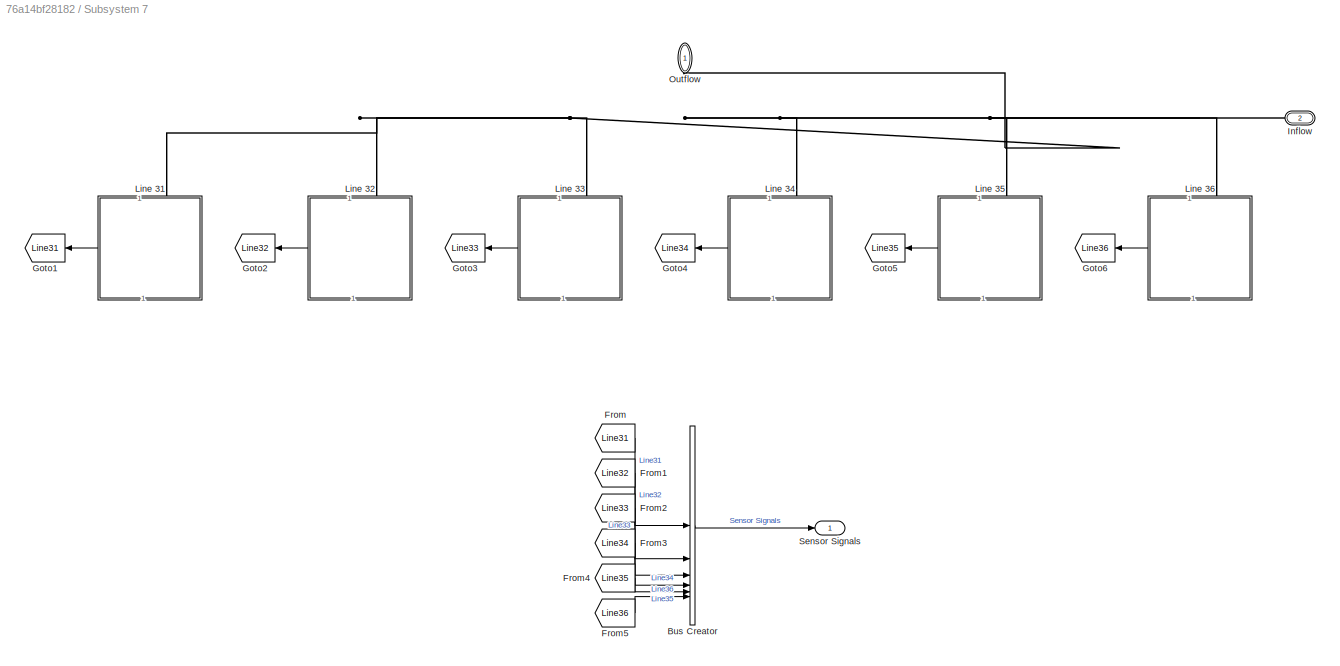
BLOCK [SubSystem] Subsystem 7
  PortSchema = {"entries":[{"content":{"sides":[{"content":{},"type":"ConnectorPlacement.EquallySpacedRectSide","uuid":"b516d03a-2269-47fc-9f64-c7351457ded4"},{"content":{"connectorIds":["Out1","RConn1"],"side":"RIGHT"},"type":"ConnectorPlacement.EquallySpacedRectSide","uuid":"88a6b3e7-f300-486e-888d-e91ea018f8f8"},{"content":{"connectorIds":["LConn1"],"side":"TOP"},"type":"ConnectorPlacement.EquallySpacedRectSi...<+235ch>
BLOCK [BusCreator] Subsystem 7/Bus Creator
  DisplayOption = bar
  InheritFromInputs = on
  Inputs = 6
  NameLocation = top
BLOCK [From] Subsystem 7/From
  GotoTag = Line31
BLOCK [From] Subsystem 7/From1
  GotoTag = Line32
BLOCK [From] Subsystem 7/From2
  GotoTag = Line33
BLOCK [From] Subsystem 7/From3
  GotoTag = Line34
BLOCK [From] Subsystem 7/From4
  GotoTag = Line35
BLOCK [From] Subsystem 7/From5
  GotoTag = Line36
BLOCK [Goto] Subsystem 7/Goto1
  GotoTag = Line31
BLOCK [Goto] Subsystem 7/Goto2
  GotoTag = Line32
BLOCK [Goto] Subsystem 7/Goto3
  GotoTag = Line33
BLOCK [Goto] Subsystem 7/Goto4
  GotoTag = Line34
BLOCK [Goto] Subsystem 7/Goto5
  GotoTag = Line35
BLOCK [Goto] Subsystem 7/Goto6
  GotoTag = Line36
BLOCK [PMIOPort] Subsystem 7/Inflow
  Port = 2
  Side = Right
BLOCK [SubSystem] Subsystem 7/Line 31
BLOCK [BusCreator] Subsystem 7/Line 31/Bus Creator
  DisplayOption = bar
  InheritFromInputs = on
  Inputs = 3
BLOCK [Reference] Subsystem 7/Line 31/Centrifugal Pump  REF=SimscapeFluids_lib/Isothermal Liquid/Pumps & Motors/Centrifugal Pump
(IL)
  AttributesFormatString = Ebara:EVMS(L)1 10/0.55*
  SourceBlock = SimscapeFluids_lib/Isothermal Liquid/Pumps & Motors/Centrifugal Pump\n(IL)
  SourceType = Centrifugal Pump\n(IL)
  Tag = {'toolbox/physmod/fluids/fluids/SimscapeFluids_lib_parts';'Isothermal_Liquid/Pumps_and_Motors/Centrifugal_Pump__IL_/Ebara/EVMS_L_1_10_0_55_.xml'}
BLOCK [PMIOPort] Subsystem 7/Line 31/Flow
  NameLocation = right
  Side = Right
BLOCK [Reference] Subsystem 7/Line 31/Flow Rate Sensor  REF=fl_lib/Isothermal Liquid/Sensors/Flow Rate Sensor
(IL)
  NameLocation = left
  SourceBlock = fl_lib/Isothermal Liquid/Sensors/Flow Rate Sensor\n(IL)
  SourceType = Flow Rate Sensor\n(IL)
BLOCK [Reference] Subsystem 7/Line 31/Ideal Angular Velocity Source1  REF=fl_lib/Mechanical/Mechanical Sources/Ideal Angular
Velocity Source
  NameLocation = top
  SourceBlock = fl_lib/Mechanical/Mechanical Sources/Ideal Angular\nVelocity Source
  SourceType = Ideal Angular\nVelocity Source
BLOCK [Reference] Subsystem 7/Line 31/Mechanical Rotational Reference2  REF=fl_lib/Mechanical/Rotational Elements/Mechanical
Rotational Reference
  NameLocation = top
  SourceBlock = fl_lib/Mechanical/Rotational Elements/Mechanical\nRotational Reference
  SourceType = Mechanical\nRotational Reference
BLOCK [Reference] Subsystem 7/Line 31/Mechanical Rotational Reference3  REF=fl_lib/Mechanical/Rotational Elements/Mechanical
Rotational Reference
  NameLocation = top
  SourceBlock = fl_lib/Mechanical/Rotational Elements/Mechanical\nRotational Reference
  SourceType = Mechanical\nRotational Reference
BLOCK [Constant] Subsystem 7/Line 31/Motor Speed (2450-3000 rpm)
  Value = pump_speed/60
BLOCK [Reference] Subsystem 7/Line 31/PS-Simulink Converter  REF=nesl_utility/PS-Simulink
Converter
  NameLocation = top
  SourceBlock = nesl_utility/PS-Simulink\nConverter
  SourceType = PS-Simulink\nConverter
BLOCK [Reference] Subsystem 7/Line 31/PS-Simulink Converter1  REF=nesl_utility/PS-Simulink
Converter
  NameLocation = top
  SourceBlock = nesl_utility/PS-Simulink\nConverter
  SourceType = PS-Simulink\nConverter
BLOCK [Reference] Subsystem 7/Line 31/PS-Simulink Converter4  REF=nesl_utility/PS-Simulink
Converter
  NameLocation = top
  SourceBlock = nesl_utility/PS-Simulink\nConverter
  SourceType = PS-Simulink\nConverter
BLOCK [Gain] Subsystem 7/Line 31/Pa to kPa
  Gain = 1/1000
  NameLocation = top
BLOCK [Reference] Subsystem 7/Line 31/Pipe 1  REF=SimscapeFluids_lib/Isothermal Liquid/Pipes & Fittings/Pipe (IL)
  NameLocation = right
  SourceBlock = SimscapeFluids_lib/Isothermal Liquid/Pipes & Fittings/Pipe (IL)
  SourceType = Pipe (IL)
BLOCK [Reference] Subsystem 7/Line 31/Pipe 2  REF=SimscapeFluids_lib/Isothermal Liquid/Pipes & Fittings/Pipe (IL)
  NameLocation = left
  SourceBlock = SimscapeFluids_lib/Isothermal Liquid/Pipes & Fittings/Pipe (IL)
  SourceType = Pipe (IL)
BLOCK [Reference] Subsystem 7/Line 31/Pressure Sensor  REF=fl_lib/Isothermal Liquid/Sensors/Pressure Sensor (IL)
  NameLocation = top
  SourceBlock = fl_lib/Isothermal Liquid/Sensors/Pressure Sensor (IL)
  SourceType = Pressure Sensor (IL)
BLOCK [Reference] Subsystem 7/Line 31/Rotational Power Sensor   REF=sdl_lib/Sensors/Rotational Power
Sensor
  NameLocation = right
  SourceBlock = sdl_lib/Sensors/Rotational Power\nSensor
  SourceType = Rotational Power\nSensor
BLOCK [Outport] Subsystem 7/Line 31/Sensor Signals
  NameLocation = top
BLOCK [Reference] Subsystem 7/Line 31/Simulink-PS Converter1  REF=nesl_utility/Simulink-PS
Converter
  SourceBlock = nesl_utility/Simulink-PS\nConverter
  SourceType = Simulink-PS\nConverter
BLOCK [Reference] Subsystem 7/Line 31/Source  REF=fl_lib/Isothermal Liquid/Elements/Reservoir (IL)
  NameLocation = right
  SourceBlock = fl_lib/Isothermal Liquid/Elements/Reservoir (IL)
  SourceType = Reservoir (IL)
BLOCK [Gain] Subsystem 7/Line 31/m^3//s to l//m
  Gain = 60000
  NameLocation = top
BLOCK [SubSystem] Subsystem 7/Line 32
BLOCK [BusCreator] Subsystem 7/Line 32/Bus Creator
  DisplayOption = bar
  InheritFromInputs = on
  Inputs = 3
BLOCK [Reference] Subsystem 7/Line 32/Centrifugal Pump  REF=SimscapeFluids_lib/Isothermal Liquid/Pumps & Motors/Centrifugal Pump
(IL)
  AttributesFormatString = Ebara:EVMS(L)1 10/0.55*
  SourceBlock = SimscapeFluids_lib/Isothermal Liquid/Pumps & Motors/Centrifugal Pump\n(IL)
  SourceType = Centrifugal Pump\n(IL)
  Tag = {'toolbox/physmod/fluids/fluids/SimscapeFluids_lib_parts';'Isothermal_Liquid/Pumps_and_Motors/Centrifugal_Pump__IL_/Ebara/EVMS_L_1_10_0_55_.xml'}
BLOCK [PMIOPort] Subsystem 7/Line 32/Flow
  NameLocation = right
  Side = Right
BLOCK [Reference] Subsystem 7/Line 32/Flow Rate Sensor  REF=fl_lib/Isothermal Liquid/Sensors/Flow Rate Sensor
(IL)
  NameLocation = left
  SourceBlock = fl_lib/Isothermal Liquid/Sensors/Flow Rate Sensor\n(IL)
  SourceType = Flow Rate Sensor\n(IL)
BLOCK [Reference] Subsystem 7/Line 32/Ideal Angular Velocity Source1  REF=fl_lib/Mechanical/Mechanical Sources/Ideal Angular
Velocity Source
  NameLocation = top
  SourceBlock = fl_lib/Mechanical/Mechanical Sources/Ideal Angular\nVelocity Source
  SourceType = Ideal Angular\nVelocity Source
BLOCK [Reference] Subsystem 7/Line 32/Mechanical Rotational Reference2  REF=fl_lib/Mechanical/Rotational Elements/Mechanical
Rotational Reference
  NameLocation = top
  SourceBlock = fl_lib/Mechanical/Rotational Elements/Mechanical\nRotational Reference
  SourceType = Mechanical\nRotational Reference
BLOCK [Reference] Subsystem 7/Line 32/Mechanical Rotational Reference3  REF=fl_lib/Mechanical/Rotational Elements/Mechanical
Rotational Reference
  NameLocation = top
  SourceBlock = fl_lib/Mechanical/Rotational Elements/Mechanical\nRotational Reference
  SourceType = Mechanical\nRotational Reference
BLOCK [Constant] Subsystem 7/Line 32/Motor Speed (2450-3000 rpm)
  Value = pump_speed/60
BLOCK [Reference] Subsystem 7/Line 32/PS-Simulink Converter  REF=nesl_utility/PS-Simulink
Converter
  NameLocation = top
  SourceBlock = nesl_utility/PS-Simulink\nConverter
  SourceType = PS-Simulink\nConverter
BLOCK [Reference] Subsystem 7/Line 32/PS-Simulink Converter1  REF=nesl_utility/PS-Simulink
Converter
  NameLocation = top
  SourceBlock = nesl_utility/PS-Simulink\nConverter
  SourceType = PS-Simulink\nConverter
BLOCK [Reference] Subsystem 7/Line 32/PS-Simulink Converter4  REF=nesl_utility/PS-Simulink
Converter
  NameLocation = top
  SourceBlock = nesl_utility/PS-Simulink\nConverter
  SourceType = PS-Simulink\nConverter
BLOCK [Gain] Subsystem 7/Line 32/Pa to kPa
  Gain = 1/1000
  NameLocation = top
BLOCK [Reference] Subsystem 7/Line 32/Pipe 1  REF=SimscapeFluids_lib/Isothermal Liquid/Pipes & Fittings/Pipe (IL)
  NameLocation = right
  SourceBlock = SimscapeFluids_lib/Isothermal Liquid/Pipes & Fittings/Pipe (IL)
  SourceType = Pipe (IL)
BLOCK [Reference] Subsystem 7/Line 32/Pipe 2  REF=SimscapeFluids_lib/Isothermal Liquid/Pipes & Fittings/Pipe (IL)
  NameLocation = left
  SourceBlock = SimscapeFluids_lib/Isothermal Liquid/Pipes & Fittings/Pipe (IL)
  SourceType = Pipe (IL)
BLOCK [Reference] Subsystem 7/Line 32/Pressure Sensor  REF=fl_lib/Isothermal Liquid/Sensors/Pressure Sensor (IL)
  NameLocation = top
  SourceBlock = fl_lib/Isothermal Liquid/Sensors/Pressure Sensor (IL)
  SourceType = Pressure Sensor (IL)
BLOCK [Reference] Subsystem 7/Line 32/Rotational Power Sensor   REF=sdl_lib/Sensors/Rotational Power
Sensor
  NameLocation = right
  SourceBlock = sdl_lib/Sensors/Rotational Power\nSensor
  SourceType = Rotational Power\nSensor
BLOCK [Outport] Subsystem 7/Line 32/Sensor Signals
  NameLocation = top
BLOCK [Reference] Subsystem 7/Line 32/Simulink-PS Converter1  REF=nesl_utility/Simulink-PS
Converter
  SourceBlock = nesl_utility/Simulink-PS\nConverter
  SourceType = Simulink-PS\nConverter
BLOCK [Reference] Subsystem 7/Line 32/Source  REF=fl_lib/Isothermal Liquid/Elements/Reservoir (IL)
  NameLocation = right
  SourceBlock = fl_lib/Isothermal Liquid/Elements/Reservoir (IL)
  SourceType = Reservoir (IL)
BLOCK [Gain] Subsystem 7/Line 32/m^3//s to l//m
  Gain = 60000
  NameLocation = top
BLOCK [SubSystem] Subsystem 7/Line 33
BLOCK [BusCreator] Subsystem 7/Line 33/Bus Creator
  DisplayOption = bar
  InheritFromInputs = on
  Inputs = 3
BLOCK [Reference] Subsystem 7/Line 33/Centrifugal Pump  REF=SimscapeFluids_lib/Isothermal Liquid/Pumps & Motors/Centrifugal Pump
(IL)
  AttributesFormatString = Ebara:EVMS(L)1 10/0.55*
  SourceBlock = SimscapeFluids_lib/Isothermal Liquid/Pumps & Motors/Centrifugal Pump\n(IL)
  SourceType = Centrifugal Pump\n(IL)
  Tag = {'toolbox/physmod/fluids/fluids/SimscapeFluids_lib_parts';'Isothermal_Liquid/Pumps_and_Motors/Centrifugal_Pump__IL_/Ebara/EVMS_L_1_10_0_55_.xml'}
BLOCK [PMIOPort] Subsystem 7/Line 33/Flow
  NameLocation = right
  Side = Right
BLOCK [Reference] Subsystem 7/Line 33/Flow Rate Sensor  REF=fl_lib/Isothermal Liquid/Sensors/Flow Rate Sensor
(IL)
  NameLocation = left
  SourceBlock = fl_lib/Isothermal Liquid/Sensors/Flow Rate Sensor\n(IL)
  SourceType = Flow Rate Sensor\n(IL)
BLOCK [Reference] Subsystem 7/Line 33/Ideal Angular Velocity Source1  REF=fl_lib/Mechanical/Mechanical Sources/Ideal Angular
Velocity Source
  NameLocation = top
  SourceBlock = fl_lib/Mechanical/Mechanical Sources/Ideal Angular\nVelocity Source
  SourceType = Ideal Angular\nVelocity Source
BLOCK [Reference] Subsystem 7/Line 33/Mechanical Rotational Reference2  REF=fl_lib/Mechanical/Rotational Elements/Mechanical
Rotational Reference
  NameLocation = top
  SourceBlock = fl_lib/Mechanical/Rotational Elements/Mechanical\nRotational Reference
  SourceType = Mechanical\nRotational Reference
BLOCK [Reference] Subsystem 7/Line 33/Mechanical Rotational Reference3  REF=fl_lib/Mechanical/Rotational Elements/Mechanical
Rotational Reference
  NameLocation = top
  SourceBlock = fl_lib/Mechanical/Rotational Elements/Mechanical\nRotational Reference
  SourceType = Mechanical\nRotational Reference
BLOCK [Constant] Subsystem 7/Line 33/Motor Speed (2450-3000 rpm)
  Value = pump_speed/60
BLOCK [Reference] Subsystem 7/Line 33/PS-Simulink Converter  REF=nesl_utility/PS-Simulink
Converter
  NameLocation = top
  SourceBlock = nesl_utility/PS-Simulink\nConverter
  SourceType = PS-Simulink\nConverter
BLOCK [Reference] Subsystem 7/Line 33/PS-Simulink Converter1  REF=nesl_utility/PS-Simulink
Converter
  NameLocation = top
  SourceBlock = nesl_utility/PS-Simulink\nConverter
  SourceType = PS-Simulink\nConverter
BLOCK [Reference] Subsystem 7/Line 33/PS-Simulink Converter4  REF=nesl_utility/PS-Simulink
Converter
  NameLocation = top
  SourceBlock = nesl_utility/PS-Simulink\nConverter
  SourceType = PS-Simulink\nConverter
BLOCK [Gain] Subsystem 7/Line 33/Pa to kPa
  Gain = 1/1000
  NameLocation = top
BLOCK [Reference] Subsystem 7/Line 33/Pipe 1  REF=SimscapeFluids_lib/Isothermal Liquid/Pipes & Fittings/Pipe (IL)
  NameLocation = right
  SourceBlock = SimscapeFluids_lib/Isothermal Liquid/Pipes & Fittings/Pipe (IL)
  SourceType = Pipe (IL)
BLOCK [Reference] Subsystem 7/Line 33/Pipe 2  REF=SimscapeFluids_lib/Isothermal Liquid/Pipes & Fittings/Pipe (IL)
  NameLocation = left
  SourceBlock = SimscapeFluids_lib/Isothermal Liquid/Pipes & Fittings/Pipe (IL)
  SourceType = Pipe (IL)
BLOCK [Reference] Subsystem 7/Line 33/Pressure Sensor  REF=fl_lib/Isothermal Liquid/Sensors/Pressure Sensor (IL)
  NameLocation = top
  SourceBlock = fl_lib/Isothermal Liquid/Sensors/Pressure Sensor (IL)
  SourceType = Pressure Sensor (IL)
BLOCK [Reference] Subsystem 7/Line 33/Rotational Power Sensor   REF=sdl_lib/Sensors/Rotational Power
Sensor
  NameLocation = right
  SourceBlock = sdl_lib/Sensors/Rotational Power\nSensor
  SourceType = Rotational Power\nSensor
BLOCK [Outport] Subsystem 7/Line 33/Sensor Signals
  NameLocation = top
BLOCK [Reference] Subsystem 7/Line 33/Simulink-PS Converter1  REF=nesl_utility/Simulink-PS
Converter
  SourceBlock = nesl_utility/Simulink-PS\nConverter
  SourceType = Simulink-PS\nConverter
BLOCK [Reference] Subsystem 7/Line 33/Source  REF=fl_lib/Isothermal Liquid/Elements/Reservoir (IL)
  NameLocation = right
  SourceBlock = fl_lib/Isothermal Liquid/Elements/Reservoir (IL)
  SourceType = Reservoir (IL)
BLOCK [Gain] Subsystem 7/Line 33/m^3//s to l//m
  Gain = 60000
  NameLocation = top
BLOCK [SubSystem] Subsystem 7/Line 34
BLOCK [BusCreator] Subsystem 7/Line 34/Bus Creator
  DisplayOption = bar
  InheritFromInputs = on
  Inputs = 3
BLOCK [Reference] Subsystem 7/Line 34/Centrifugal Pump  REF=SimscapeFluids_lib/Isothermal Liquid/Pumps & Motors/Centrifugal Pump
(IL)
  AttributesFormatString = Ebara:EVMS(L)1 10/0.55*
  SourceBlock = SimscapeFluids_lib/Isothermal Liquid/Pumps & Motors/Centrifugal Pump\n(IL)
  SourceType = Centrifugal Pump\n(IL)
  Tag = {'toolbox/physmod/fluids/fluids/SimscapeFluids_lib_parts';'Isothermal_Liquid/Pumps_and_Motors/Centrifugal_Pump__IL_/Ebara/EVMS_L_1_10_0_55_.xml'}
BLOCK [PMIOPort] Subsystem 7/Line 34/Flow
  NameLocation = right
  Side = Right
BLOCK [Reference] Subsystem 7/Line 34/Flow Rate Sensor  REF=fl_lib/Isothermal Liquid/Sensors/Flow Rate Sensor
(IL)
  NameLocation = left
  SourceBlock = fl_lib/Isothermal Liquid/Sensors/Flow Rate Sensor\n(IL)
  SourceType = Flow Rate Sensor\n(IL)
BLOCK [Reference] Subsystem 7/Line 34/Ideal Angular Velocity Source1  REF=fl_lib/Mechanical/Mechanical Sources/Ideal Angular
Velocity Source
  NameLocation = top
  SourceBlock = fl_lib/Mechanical/Mechanical Sources/Ideal Angular\nVelocity Source
  SourceType = Ideal Angular\nVelocity Source
BLOCK [Reference] Subsystem 7/Line 34/Mechanical Rotational Reference2  REF=fl_lib/Mechanical/Rotational Elements/Mechanical
Rotational Reference
  NameLocation = top
  SourceBlock = fl_lib/Mechanical/Rotational Elements/Mechanical\nRotational Reference
  SourceType = Mechanical\nRotational Reference
BLOCK [Reference] Subsystem 7/Line 34/Mechanical Rotational Reference3  REF=fl_lib/Mechanical/Rotational Elements/Mechanical
Rotational Reference
  NameLocation = top
  SourceBlock = fl_lib/Mechanical/Rotational Elements/Mechanical\nRotational Reference
  SourceType = Mechanical\nRotational Reference
BLOCK [Constant] Subsystem 7/Line 34/Motor Speed (2450-3000 rpm)
  Value = pump_speed/60
BLOCK [Reference] Subsystem 7/Line 34/PS-Simulink Converter  REF=nesl_utility/PS-Simulink
Converter
  NameLocation = top
  SourceBlock = nesl_utility/PS-Simulink\nConverter
  SourceType = PS-Simulink\nConverter
BLOCK [Reference] Subsystem 7/Line 34/PS-Simulink Converter1  REF=nesl_utility/PS-Simulink
Converter
  NameLocation = top
  SourceBlock = nesl_utility/PS-Simulink\nConverter
  SourceType = PS-Simulink\nConverter
BLOCK [Reference] Subsystem 7/Line 34/PS-Simulink Converter4  REF=nesl_utility/PS-Simulink
Converter
  NameLocation = top
  SourceBlock = nesl_utility/PS-Simulink\nConverter
  SourceType = PS-Simulink\nConverter
BLOCK [Gain] Subsystem 7/Line 34/Pa to kPa
  Gain = 1/1000
  NameLocation = top
BLOCK [Reference] Subsystem 7/Line 34/Pipe 1  REF=SimscapeFluids_lib/Isothermal Liquid/Pipes & Fittings/Pipe (IL)
  NameLocation = right
  SourceBlock = SimscapeFluids_lib/Isothermal Liquid/Pipes & Fittings/Pipe (IL)
  SourceType = Pipe (IL)
BLOCK [Reference] Subsystem 7/Line 34/Pipe 2  REF=SimscapeFluids_lib/Isothermal Liquid/Pipes & Fittings/Pipe (IL)
  NameLocation = left
  SourceBlock = SimscapeFluids_lib/Isothermal Liquid/Pipes & Fittings/Pipe (IL)
  SourceType = Pipe (IL)
BLOCK [Reference] Subsystem 7/Line 34/Pressure Sensor  REF=fl_lib/Isothermal Liquid/Sensors/Pressure Sensor (IL)
  NameLocation = top
  SourceBlock = fl_lib/Isothermal Liquid/Sensors/Pressure Sensor (IL)
  SourceType = Pressure Sensor (IL)
BLOCK [Reference] Subsystem 7/Line 34/Rotational Power Sensor   REF=sdl_lib/Sensors/Rotational Power
Sensor
  NameLocation = right
  SourceBlock = sdl_lib/Sensors/Rotational Power\nSensor
  SourceType = Rotational Power\nSensor
BLOCK [Outport] Subsystem 7/Line 34/Sensor Signals
  NameLocation = top
BLOCK [Reference] Subsystem 7/Line 34/Simulink-PS Converter1  REF=nesl_utility/Simulink-PS
Converter
  SourceBlock = nesl_utility/Simulink-PS\nConverter
  SourceType = Simulink-PS\nConverter
BLOCK [Reference] Subsystem 7/Line 34/Source  REF=fl_lib/Isothermal Liquid/Elements/Reservoir (IL)
  NameLocation = right
  SourceBlock = fl_lib/Isothermal Liquid/Elements/Reservoir (IL)
  SourceType = Reservoir (IL)
BLOCK [Gain] Subsystem 7/Line 34/m^3//s to l//m
  Gain = 60000
  NameLocation = top
BLOCK [SubSystem] Subsystem 7/Line 35
BLOCK [BusCreator] Subsystem 7/Line 35/Bus Creator
  DisplayOption = bar
  InheritFromInputs = on
  Inputs = 3
BLOCK [Reference] Subsystem 7/Line 35/Centrifugal Pump  REF=SimscapeFluids_lib/Isothermal Liquid/Pumps & Motors/Centrifugal Pump
(IL)
  AttributesFormatString = Ebara:EVMS(L)1 10/0.55*
  SourceBlock = SimscapeFluids_lib/Isothermal Liquid/Pumps & Motors/Centrifugal Pump\n(IL)
  SourceType = Centrifugal Pump\n(IL)
  Tag = {'toolbox/physmod/fluids/fluids/SimscapeFluids_lib_parts';'Isothermal_Liquid/Pumps_and_Motors/Centrifugal_Pump__IL_/Ebara/EVMS_L_1_10_0_55_.xml'}
BLOCK [PMIOPort] Subsystem 7/Line 35/Flow
  NameLocation = right
  Side = Right
BLOCK [Reference] Subsystem 7/Line 35/Flow Rate Sensor  REF=fl_lib/Isothermal Liquid/Sensors/Flow Rate Sensor
(IL)
  NameLocation = left
  SourceBlock = fl_lib/Isothermal Liquid/Sensors/Flow Rate Sensor\n(IL)
  SourceType = Flow Rate Sensor\n(IL)
BLOCK [Reference] Subsystem 7/Line 35/Ideal Angular Velocity Source1  REF=fl_lib/Mechanical/Mechanical Sources/Ideal Angular
Velocity Source
  NameLocation = top
  SourceBlock = fl_lib/Mechanical/Mechanical Sources/Ideal Angular\nVelocity Source
  SourceType = Ideal Angular\nVelocity Source
BLOCK [Reference] Subsystem 7/Line 35/Mechanical Rotational Reference2  REF=fl_lib/Mechanical/Rotational Elements/Mechanical
Rotational Reference
  NameLocation = top
  SourceBlock = fl_lib/Mechanical/Rotational Elements/Mechanical\nRotational Reference
  SourceType = Mechanical\nRotational Reference
BLOCK [Reference] Subsystem 7/Line 35/Mechanical Rotational Reference3  REF=fl_lib/Mechanical/Rotational Elements/Mechanical
Rotational Reference
  NameLocation = top
  SourceBlock = fl_lib/Mechanical/Rotational Elements/Mechanical\nRotational Reference
  SourceType = Mechanical\nRotational Reference
BLOCK [Constant] Subsystem 7/Line 35/Motor Speed (2450-3000 rpm)
  Value = pump_speed/60
BLOCK [Reference] Subsystem 7/Line 35/PS-Simulink Converter  REF=nesl_utility/PS-Simulink
Converter
  NameLocation = top
  SourceBlock = nesl_utility/PS-Simulink\nConverter
  SourceType = PS-Simulink\nConverter
BLOCK [Reference] Subsystem 7/Line 35/PS-Simulink Converter1  REF=nesl_utility/PS-Simulink
Converter
  NameLocation = top
  SourceBlock = nesl_utility/PS-Simulink\nConverter
  SourceType = PS-Simulink\nConverter
BLOCK [Reference] Subsystem 7/Line 35/PS-Simulink Converter4  REF=nesl_utility/PS-Simulink
Converter
  NameLocation = top
  SourceBlock = nesl_utility/PS-Simulink\nConverter
  SourceType = PS-Simulink\nConverter
BLOCK [Gain] Subsystem 7/Line 35/Pa to kPa
  Gain = 1/1000
  NameLocation = top
BLOCK [Reference] Subsystem 7/Line 35/Pipe 1  REF=SimscapeFluids_lib/Isothermal Liquid/Pipes & Fittings/Pipe (IL)
  NameLocation = right
  SourceBlock = SimscapeFluids_lib/Isothermal Liquid/Pipes & Fittings/Pipe (IL)
  SourceType = Pipe (IL)
BLOCK [Reference] Subsystem 7/Line 35/Pipe 2  REF=SimscapeFluids_lib/Isothermal Liquid/Pipes & Fittings/Pipe (IL)
  NameLocation = left
  SourceBlock = SimscapeFluids_lib/Isothermal Liquid/Pipes & Fittings/Pipe (IL)
  SourceType = Pipe (IL)
BLOCK [Reference] Subsystem 7/Line 35/Pressure Sensor  REF=fl_lib/Isothermal Liquid/Sensors/Pressure Sensor (IL)
  NameLocation = top
  SourceBlock = fl_lib/Isothermal Liquid/Sensors/Pressure Sensor (IL)
  SourceType = Pressure Sensor (IL)
BLOCK [Reference] Subsystem 7/Line 35/Rotational Power Sensor   REF=sdl_lib/Sensors/Rotational Power
Sensor
  NameLocation = right
  SourceBlock = sdl_lib/Sensors/Rotational Power\nSensor
  SourceType = Rotational Power\nSensor
BLOCK [Outport] Subsystem 7/Line 35/Sensor Signals
  NameLocation = top
BLOCK [Reference] Subsystem 7/Line 35/Simulink-PS Converter1  REF=nesl_utility/Simulink-PS
Converter
  SourceBlock = nesl_utility/Simulink-PS\nConverter
  SourceType = Simulink-PS\nConverter
BLOCK [Reference] Subsystem 7/Line 35/Source  REF=fl_lib/Isothermal Liquid/Elements/Reservoir (IL)
  NameLocation = right
  SourceBlock = fl_lib/Isothermal Liquid/Elements/Reservoir (IL)
  SourceType = Reservoir (IL)
BLOCK [Gain] Subsystem 7/Line 35/m^3//s to l//m
  Gain = 60000
  NameLocation = top
BLOCK [SubSystem] Subsystem 7/Line 36
BLOCK [BusCreator] Subsystem 7/Line 36/Bus Creator
  DisplayOption = bar
  InheritFromInputs = on
  Inputs = 3
BLOCK [Reference] Subsystem 7/Line 36/Centrifugal Pump  REF=SimscapeFluids_lib/Isothermal Liquid/Pumps & Motors/Centrifugal Pump
(IL)
  AttributesFormatString = Ebara:EVMS(L)1 10/0.55*
  SourceBlock = SimscapeFluids_lib/Isothermal Liquid/Pumps & Motors/Centrifugal Pump\n(IL)
  SourceType = Centrifugal Pump\n(IL)
  Tag = {'toolbox/physmod/fluids/fluids/SimscapeFluids_lib_parts';'Isothermal_Liquid/Pumps_and_Motors/Centrifugal_Pump__IL_/Ebara/EVMS_L_1_10_0_55_.xml'}
BLOCK [PMIOPort] Subsystem 7/Line 36/Flow
  NameLocation = right
  Side = Right
BLOCK [Reference] Subsystem 7/Line 36/Flow Rate Sensor  REF=fl_lib/Isothermal Liquid/Sensors/Flow Rate Sensor
(IL)
  NameLocation = left
  SourceBlock = fl_lib/Isothermal Liquid/Sensors/Flow Rate Sensor\n(IL)
  SourceType = Flow Rate Sensor\n(IL)
BLOCK [Reference] Subsystem 7/Line 36/Ideal Angular Velocity Source1  REF=fl_lib/Mechanical/Mechanical Sources/Ideal Angular
Velocity Source
  NameLocation = top
  SourceBlock = fl_lib/Mechanical/Mechanical Sources/Ideal Angular\nVelocity Source
  SourceType = Ideal Angular\nVelocity Source
BLOCK [Reference] Subsystem 7/Line 36/Mechanical Rotational Reference2  REF=fl_lib/Mechanical/Rotational Elements/Mechanical
Rotational Reference
  NameLocation = top
  SourceBlock = fl_lib/Mechanical/Rotational Elements/Mechanical\nRotational Reference
  SourceType = Mechanical\nRotational Reference
BLOCK [Reference] Subsystem 7/Line 36/Mechanical Rotational Reference3  REF=fl_lib/Mechanical/Rotational Elements/Mechanical
Rotational Reference
  NameLocation = top
  SourceBlock = fl_lib/Mechanical/Rotational Elements/Mechanical\nRotational Reference
  SourceType = Mechanical\nRotational Reference
BLOCK [Constant] Subsystem 7/Line 36/Motor Speed (2450-3000 rpm)
  Value = pump_speed/60
BLOCK [Reference] Subsystem 7/Line 36/PS-Simulink Converter  REF=nesl_utility/PS-Simulink
Converter
  NameLocation = top
  SourceBlock = nesl_utility/PS-Simulink\nConverter
  SourceType = PS-Simulink\nConverter
BLOCK [Reference] Subsystem 7/Line 36/PS-Simulink Converter1  REF=nesl_utility/PS-Simulink
Converter
  NameLocation = top
  SourceBlock = nesl_utility/PS-Simulink\nConverter
  SourceType = PS-Simulink\nConverter
BLOCK [Reference] Subsystem 7/Line 36/PS-Simulink Converter4  REF=nesl_utility/PS-Simulink
Converter
  NameLocation = top
  SourceBlock = nesl_utility/PS-Simulink\nConverter
  SourceType = PS-Simulink\nConverter
BLOCK [Gain] Subsystem 7/Line 36/Pa to kPa
  Gain = 1/1000
  NameLocation = top
BLOCK [Reference] Subsystem 7/Line 36/Pipe 1  REF=SimscapeFluids_lib/Isothermal Liquid/Pipes & Fittings/Pipe (IL)
  NameLocation = right
  SourceBlock = SimscapeFluids_lib/Isothermal Liquid/Pipes & Fittings/Pipe (IL)
  SourceType = Pipe (IL)
BLOCK [Reference] Subsystem 7/Line 36/Pipe 2  REF=SimscapeFluids_lib/Isothermal Liquid/Pipes & Fittings/Pipe (IL)
  NameLocation = left
  SourceBlock = SimscapeFluids_lib/Isothermal Liquid/Pipes & Fittings/Pipe (IL)
  SourceType = Pipe (IL)
BLOCK [Reference] Subsystem 7/Line 36/Pressure Sensor  REF=fl_lib/Isothermal Liquid/Sensors/Pressure Sensor (IL)
  NameLocation = top
  SourceBlock = fl_lib/Isothermal Liquid/Sensors/Pressure Sensor (IL)
  SourceType = Pressure Sensor (IL)
BLOCK [Reference] Subsystem 7/Line 36/Rotational Power Sensor   REF=sdl_lib/Sensors/Rotational Power
Sensor
  NameLocation = right
  SourceBlock = sdl_lib/Sensors/Rotational Power\nSensor
  SourceType = Rotational Power\nSensor
BLOCK [Outport] Subsystem 7/Line 36/Sensor Signals
  NameLocation = top
BLOCK [Reference] Subsystem 7/Line 36/Simulink-PS Converter1  REF=nesl_utility/Simulink-PS
Converter
  SourceBlock = nesl_utility/Simulink-PS\nConverter
  SourceType = Simulink-PS\nConverter
BLOCK [Reference] Subsystem 7/Line 36/Source  REF=fl_lib/Isothermal Liquid/Elements/Reservoir (IL)
  NameLocation = right
  SourceBlock = fl_lib/Isothermal Liquid/Elements/Reservoir (IL)
  SourceType = Reservoir (IL)
BLOCK [Gain] Subsystem 7/Line 36/m^3//s to l//m
  Gain = 60000
  NameLocation = top
BLOCK [PMIOPort] Subsystem 7/Outflow
  NameLocation = right
  Side = Left
BLOCK [Outport] Subsystem 7/Sensor Signals
BLOCK [SubSystem] Subsystem 8
BLOCK [BusCreator] Subsystem 8/Bus Creator
  DisplayOption = bar
  InheritFromInputs = on
  Inputs = 4
  NameLocation = top
BLOCK [From] Subsystem 8/From
  GotoTag = Line37
BLOCK [From] Subsystem 8/From1
  GotoTag = Line38
BLOCK [From] Subsystem 8/From2
  GotoTag = Line39
BLOCK [From] Subsystem 8/From3
  GotoTag = Line40
BLOCK [Goto] Subsystem 8/Goto1
  GotoTag = Line37
BLOCK [Goto] Subsystem 8/Goto2
  GotoTag = Line38
BLOCK [Goto] Subsystem 8/Goto3
  GotoTag = Line39
BLOCK [Goto] Subsystem 8/Goto4
  GotoTag = Line40
BLOCK [SubSystem] Subsystem 8/Line 37
BLOCK [BusCreator] Subsystem 8/Line 37/Bus Creator
  DisplayOption = bar
  InheritFromInputs = on
  Inputs = 3
BLOCK [Reference] Subsystem 8/Line 37/Centrifugal Pump  REF=SimscapeFluids_lib/Isothermal Liquid/Pumps & Motors/Centrifugal Pump
(IL)
  AttributesFormatString = Ebara:EVMS(L)1 10/0.55*
  SourceBlock = SimscapeFluids_lib/Isothermal Liquid/Pumps & Motors/Centrifugal Pump\n(IL)
  SourceType = Centrifugal Pump\n(IL)
  Tag = {'toolbox/physmod/fluids/fluids/SimscapeFluids_lib_parts';'Isothermal_Liquid/Pumps_and_Motors/Centrifugal_Pump__IL_/Ebara/EVMS_L_1_10_0_55_.xml'}
BLOCK [PMIOPort] Subsystem 8/Line 37/Flow
  NameLocation = right
  Side = Right
BLOCK [Reference] Subsystem 8/Line 37/Flow Rate Sensor  REF=fl_lib/Isothermal Liquid/Sensors/Flow Rate Sensor
(IL)
  NameLocation = left
  SourceBlock = fl_lib/Isothermal Liquid/Sensors/Flow Rate Sensor\n(IL)
  SourceType = Flow Rate Sensor\n(IL)
BLOCK [Reference] Subsystem 8/Line 37/Ideal Angular Velocity Source1  REF=fl_lib/Mechanical/Mechanical Sources/Ideal Angular
Velocity Source
  NameLocation = top
  SourceBlock = fl_lib/Mechanical/Mechanical Sources/Ideal Angular\nVelocity Source
  SourceType = Ideal Angular\nVelocity Source
BLOCK [Reference] Subsystem 8/Line 37/Mechanical Rotational Reference2  REF=fl_lib/Mechanical/Rotational Elements/Mechanical
Rotational Reference
  NameLocation = top
  SourceBlock = fl_lib/Mechanical/Rotational Elements/Mechanical\nRotational Reference
  SourceType = Mechanical\nRotational Reference
BLOCK [Reference] Subsystem 8/Line 37/Mechanical Rotational Reference3  REF=fl_lib/Mechanical/Rotational Elements/Mechanical
Rotational Reference
  NameLocation = top
  SourceBlock = fl_lib/Mechanical/Rotational Elements/Mechanical\nRotational Reference
  SourceType = Mechanical\nRotational Reference
BLOCK [Constant] Subsystem 8/Line 37/Motor Speed (2450-3000 rpm)
  Value = pump_speed/60
BLOCK [Reference] Subsystem 8/Line 37/PS-Simulink Converter  REF=nesl_utility/PS-Simulink
Converter
  NameLocation = top
  SourceBlock = nesl_utility/PS-Simulink\nConverter
  SourceType = PS-Simulink\nConverter
BLOCK [Reference] Subsystem 8/Line 37/PS-Simulink Converter1  REF=nesl_utility/PS-Simulink
Converter
  NameLocation = top
  SourceBlock = nesl_utility/PS-Simulink\nConverter
  SourceType = PS-Simulink\nConverter
BLOCK [Reference] Subsystem 8/Line 37/PS-Simulink Converter4  REF=nesl_utility/PS-Simulink
Converter
  NameLocation = top
  SourceBlock = nesl_utility/PS-Simulink\nConverter
  SourceType = PS-Simulink\nConverter
BLOCK [Gain] Subsystem 8/Line 37/Pa to kPa
  Gain = 1/1000
  NameLocation = top
BLOCK [Reference] Subsystem 8/Line 37/Pipe 1  REF=SimscapeFluids_lib/Isothermal Liquid/Pipes & Fittings/Pipe (IL)
  NameLocation = right
  SourceBlock = SimscapeFluids_lib/Isothermal Liquid/Pipes & Fittings/Pipe (IL)
  SourceType = Pipe (IL)
BLOCK [Reference] Subsystem 8/Line 37/Pipe 2  REF=SimscapeFluids_lib/Isothermal Liquid/Pipes & Fittings/Pipe (IL)
  NameLocation = left
  SourceBlock = SimscapeFluids_lib/Isothermal Liquid/Pipes & Fittings/Pipe (IL)
  SourceType = Pipe (IL)
BLOCK [Reference] Subsystem 8/Line 37/Pressure Sensor  REF=fl_lib/Isothermal Liquid/Sensors/Pressure Sensor (IL)
  NameLocation = top
  SourceBlock = fl_lib/Isothermal Liquid/Sensors/Pressure Sensor (IL)
  SourceType = Pressure Sensor (IL)
BLOCK [Reference] Subsystem 8/Line 37/Rotational Power Sensor   REF=sdl_lib/Sensors/Rotational Power
Sensor
  NameLocation = right
  SourceBlock = sdl_lib/Sensors/Rotational Power\nSensor
  SourceType = Rotational Power\nSensor
BLOCK [Outport] Subsystem 8/Line 37/Sensor Signals
  NameLocation = top
BLOCK [Reference] Subsystem 8/Line 37/Simulink-PS Converter1  REF=nesl_utility/Simulink-PS
Converter
  SourceBlock = nesl_utility/Simulink-PS\nConverter
  SourceType = Simulink-PS\nConverter
BLOCK [Reference] Subsystem 8/Line 37/Source  REF=fl_lib/Isothermal Liquid/Elements/Reservoir (IL)
  NameLocation = right
  SourceBlock = fl_lib/Isothermal Liquid/Elements/Reservoir (IL)
  SourceType = Reservoir (IL)
BLOCK [Gain] Subsystem 8/Line 37/m^3//s to l//m
  Gain = 60000
  NameLocation = top
BLOCK [SubSystem] Subsystem 8/Line 38
BLOCK [BusCreator] Subsystem 8/Line 38/Bus Creator
  DisplayOption = bar
  InheritFromInputs = on
  Inputs = 3
BLOCK [Reference] Subsystem 8/Line 38/Centrifugal Pump  REF=SimscapeFluids_lib/Isothermal Liquid/Pumps & Motors/Centrifugal Pump
(IL)
  AttributesFormatString = Ebara:EVMS(L)1 10/0.55*
  SourceBlock = SimscapeFluids_lib/Isothermal Liquid/Pumps & Motors/Centrifugal Pump\n(IL)
  SourceType = Centrifugal Pump\n(IL)
  Tag = {'toolbox/physmod/fluids/fluids/SimscapeFluids_lib_parts';'Isothermal_Liquid/Pumps_and_Motors/Centrifugal_Pump__IL_/Ebara/EVMS_L_1_10_0_55_.xml'}
BLOCK [PMIOPort] Subsystem 8/Line 38/Flow
  NameLocation = right
  Side = Right
BLOCK [Reference] Subsystem 8/Line 38/Flow Rate Sensor  REF=fl_lib/Isothermal Liquid/Sensors/Flow Rate Sensor
(IL)
  NameLocation = left
  SourceBlock = fl_lib/Isothermal Liquid/Sensors/Flow Rate Sensor\n(IL)
  SourceType = Flow Rate Sensor\n(IL)
BLOCK [Reference] Subsystem 8/Line 38/Ideal Angular Velocity Source1  REF=fl_lib/Mechanical/Mechanical Sources/Ideal Angular
Velocity Source
  NameLocation = top
  SourceBlock = fl_lib/Mechanical/Mechanical Sources/Ideal Angular\nVelocity Source
  SourceType = Ideal Angular\nVelocity Source
BLOCK [Reference] Subsystem 8/Line 38/Mechanical Rotational Reference2  REF=fl_lib/Mechanical/Rotational Elements/Mechanical
Rotational Reference
  NameLocation = top
  SourceBlock = fl_lib/Mechanical/Rotational Elements/Mechanical\nRotational Reference
  SourceType = Mechanical\nRotational Reference
BLOCK [Reference] Subsystem 8/Line 38/Mechanical Rotational Reference3  REF=fl_lib/Mechanical/Rotational Elements/Mechanical
Rotational Reference
  NameLocation = top
  SourceBlock = fl_lib/Mechanical/Rotational Elements/Mechanical\nRotational Reference
  SourceType = Mechanical\nRotational Reference
BLOCK [Constant] Subsystem 8/Line 38/Motor Speed (2450-3000 rpm)
  Value = pump_speed/60
BLOCK [Reference] Subsystem 8/Line 38/PS-Simulink Converter  REF=nesl_utility/PS-Simulink
Converter
  NameLocation = top
  SourceBlock = nesl_utility/PS-Simulink\nConverter
  SourceType = PS-Simulink\nConverter
BLOCK [Reference] Subsystem 8/Line 38/PS-Simulink Converter1  REF=nesl_utility/PS-Simulink
Converter
  NameLocation = top
  SourceBlock = nesl_utility/PS-Simulink\nConverter
  SourceType = PS-Simulink\nConverter
BLOCK [Reference] Subsystem 8/Line 38/PS-Simulink Converter4  REF=nesl_utility/PS-Simulink
Converter
  NameLocation = top
  SourceBlock = nesl_utility/PS-Simulink\nConverter
  SourceType = PS-Simulink\nConverter
BLOCK [Gain] Subsystem 8/Line 38/Pa to kPa
  Gain = 1/1000
  NameLocation = top
BLOCK [Reference] Subsystem 8/Line 38/Pipe 1  REF=SimscapeFluids_lib/Isothermal Liquid/Pipes & Fittings/Pipe (IL)
  NameLocation = right
  SourceBlock = SimscapeFluids_lib/Isothermal Liquid/Pipes & Fittings/Pipe (IL)
  SourceType = Pipe (IL)
BLOCK [Reference] Subsystem 8/Line 38/Pipe 2  REF=SimscapeFluids_lib/Isothermal Liquid/Pipes & Fittings/Pipe (IL)
  NameLocation = left
  SourceBlock = SimscapeFluids_lib/Isothermal Liquid/Pipes & Fittings/Pipe (IL)
  SourceType = Pipe (IL)
BLOCK [Reference] Subsystem 8/Line 38/Pressure Sensor  REF=fl_lib/Isothermal Liquid/Sensors/Pressure Sensor (IL)
  NameLocation = top
  SourceBlock = fl_lib/Isothermal Liquid/Sensors/Pressure Sensor (IL)
  SourceType = Pressure Sensor (IL)
BLOCK [Reference] Subsystem 8/Line 38/Rotational Power Sensor   REF=sdl_lib/Sensors/Rotational Power
Sensor
  NameLocation = right
  SourceBlock = sdl_lib/Sensors/Rotational Power\nSensor
  SourceType = Rotational Power\nSensor
BLOCK [Outport] Subsystem 8/Line 38/Sensor Signals
  NameLocation = top
BLOCK [Reference] Subsystem 8/Line 38/Simulink-PS Converter1  REF=nesl_utility/Simulink-PS
Converter
  SourceBlock = nesl_utility/Simulink-PS\nConverter
  SourceType = Simulink-PS\nConverter
BLOCK [Reference] Subsystem 8/Line 38/Source  REF=fl_lib/Isothermal Liquid/Elements/Reservoir (IL)
  NameLocation = right
  SourceBlock = fl_lib/Isothermal Liquid/Elements/Reservoir (IL)
  SourceType = Reservoir (IL)
BLOCK [Gain] Subsystem 8/Line 38/m^3//s to l//m
  Gain = 60000
  NameLocation = top
BLOCK [SubSystem] Subsystem 8/Line 39
BLOCK [BusCreator] Subsystem 8/Line 39/Bus Creator
  DisplayOption = bar
  InheritFromInputs = on
  Inputs = 3
BLOCK [Reference] Subsystem 8/Line 39/Centrifugal Pump  REF=SimscapeFluids_lib/Isothermal Liquid/Pumps & Motors/Centrifugal Pump
(IL)
  AttributesFormatString = Ebara:EVMS(L)1 10/0.55*
  SourceBlock = SimscapeFluids_lib/Isothermal Liquid/Pumps & Motors/Centrifugal Pump\n(IL)
  SourceType = Centrifugal Pump\n(IL)
  Tag = {'toolbox/physmod/fluids/fluids/SimscapeFluids_lib_parts';'Isothermal_Liquid/Pumps_and_Motors/Centrifugal_Pump__IL_/Ebara/EVMS_L_1_10_0_55_.xml'}
BLOCK [PMIOPort] Subsystem 8/Line 39/Flow
  NameLocation = right
  Side = Right
BLOCK [Reference] Subsystem 8/Line 39/Flow Rate Sensor  REF=fl_lib/Isothermal Liquid/Sensors/Flow Rate Sensor
(IL)
  NameLocation = left
  SourceBlock = fl_lib/Isothermal Liquid/Sensors/Flow Rate Sensor\n(IL)
  SourceType = Flow Rate Sensor\n(IL)
BLOCK [Reference] Subsystem 8/Line 39/Ideal Angular Velocity Source1  REF=fl_lib/Mechanical/Mechanical Sources/Ideal Angular
Velocity Source
  NameLocation = top
  SourceBlock = fl_lib/Mechanical/Mechanical Sources/Ideal Angular\nVelocity Source
  SourceType = Ideal Angular\nVelocity Source
BLOCK [Reference] Subsystem 8/Line 39/Mechanical Rotational Reference2  REF=fl_lib/Mechanical/Rotational Elements/Mechanical
Rotational Reference
  NameLocation = top
  SourceBlock = fl_lib/Mechanical/Rotational Elements/Mechanical\nRotational Reference
  SourceType = Mechanical\nRotational Reference
BLOCK [Reference] Subsystem 8/Line 39/Mechanical Rotational Reference3  REF=fl_lib/Mechanical/Rotational Elements/Mechanical
Rotational Reference
  NameLocation = top
  SourceBlock = fl_lib/Mechanical/Rotational Elements/Mechanical\nRotational Reference
  SourceType = Mechanical\nRotational Reference
BLOCK [Constant] Subsystem 8/Line 39/Motor Speed (2450-3000 rpm)
  Value = pump_speed/60
BLOCK [Reference] Subsystem 8/Line 39/PS-Simulink Converter  REF=nesl_utility/PS-Simulink
Converter
  NameLocation = top
  SourceBlock = nesl_utility/PS-Simulink\nConverter
  SourceType = PS-Simulink\nConverter
BLOCK [Reference] Subsystem 8/Line 39/PS-Simulink Converter1  REF=nesl_utility/PS-Simulink
Converter
  NameLocation = top
  SourceBlock = nesl_utility/PS-Simulink\nConverter
  SourceType = PS-Simulink\nConverter
BLOCK [Reference] Subsystem 8/Line 39/PS-Simulink Converter4  REF=nesl_utility/PS-Simulink
Converter
  NameLocation = top
  SourceBlock = nesl_utility/PS-Simulink\nConverter
  SourceType = PS-Simulink\nConverter
BLOCK [Gain] Subsystem 8/Line 39/Pa to kPa
  Gain = 1/1000
  NameLocation = top
BLOCK [Reference] Subsystem 8/Line 39/Pipe 1  REF=SimscapeFluids_lib/Isothermal Liquid/Pipes & Fittings/Pipe (IL)
  NameLocation = right
  SourceBlock = SimscapeFluids_lib/Isothermal Liquid/Pipes & Fittings/Pipe (IL)
  SourceType = Pipe (IL)
BLOCK [Reference] Subsystem 8/Line 39/Pipe 2  REF=SimscapeFluids_lib/Isothermal Liquid/Pipes & Fittings/Pipe (IL)
  NameLocation = left
  SourceBlock = SimscapeFluids_lib/Isothermal Liquid/Pipes & Fittings/Pipe (IL)
  SourceType = Pipe (IL)
BLOCK [Reference] Subsystem 8/Line 39/Pressure Sensor  REF=fl_lib/Isothermal Liquid/Sensors/Pressure Sensor (IL)
  NameLocation = top
  SourceBlock = fl_lib/Isothermal Liquid/Sensors/Pressure Sensor (IL)
  SourceType = Pressure Sensor (IL)
BLOCK [Reference] Subsystem 8/Line 39/Rotational Power Sensor   REF=sdl_lib/Sensors/Rotational Power
Sensor
  NameLocation = right
  SourceBlock = sdl_lib/Sensors/Rotational Power\nSensor
  SourceType = Rotational Power\nSensor
BLOCK [Outport] Subsystem 8/Line 39/Sensor Signals
  NameLocation = top
BLOCK [Reference] Subsystem 8/Line 39/Simulink-PS Converter1  REF=nesl_utility/Simulink-PS
Converter
  SourceBlock = nesl_utility/Simulink-PS\nConverter
  SourceType = Simulink-PS\nConverter
BLOCK [Reference] Subsystem 8/Line 39/Source  REF=fl_lib/Isothermal Liquid/Elements/Reservoir (IL)
  NameLocation = right
  SourceBlock = fl_lib/Isothermal Liquid/Elements/Reservoir (IL)
  SourceType = Reservoir (IL)
BLOCK [Gain] Subsystem 8/Line 39/m^3//s to l//m
  Gain = 60000
  NameLocation = top
BLOCK [SubSystem] Subsystem 8/Line 40
BLOCK [BusCreator] Subsystem 8/Line 40/Bus Creator
  DisplayOption = bar
  InheritFromInputs = on
  Inputs = 3
BLOCK [Reference] Subsystem 8/Line 40/Centrifugal Pump  REF=SimscapeFluids_lib/Isothermal Liquid/Pumps & Motors/Centrifugal Pump
(IL)
  AttributesFormatString = Ebara:EVMS(L)1 10/0.55*
  SourceBlock = SimscapeFluids_lib/Isothermal Liquid/Pumps & Motors/Centrifugal Pump\n(IL)
  SourceType = Centrifugal Pump\n(IL)
  Tag = {'toolbox/physmod/fluids/fluids/SimscapeFluids_lib_parts';'Isothermal_Liquid/Pumps_and_Motors/Centrifugal_Pump__IL_/Ebara/EVMS_L_1_10_0_55_.xml'}
BLOCK [PMIOPort] Subsystem 8/Line 40/Flow
  NameLocation = right
  Side = Right
BLOCK [Reference] Subsystem 8/Line 40/Flow Rate Sensor  REF=fl_lib/Isothermal Liquid/Sensors/Flow Rate Sensor
(IL)
  NameLocation = left
  SourceBlock = fl_lib/Isothermal Liquid/Sensors/Flow Rate Sensor\n(IL)
  SourceType = Flow Rate Sensor\n(IL)
BLOCK [Reference] Subsystem 8/Line 40/Ideal Angular Velocity Source1  REF=fl_lib/Mechanical/Mechanical Sources/Ideal Angular
Velocity Source
  NameLocation = top
  SourceBlock = fl_lib/Mechanical/Mechanical Sources/Ideal Angular\nVelocity Source
  SourceType = Ideal Angular\nVelocity Source
BLOCK [Reference] Subsystem 8/Line 40/Mechanical Rotational Reference2  REF=fl_lib/Mechanical/Rotational Elements/Mechanical
Rotational Reference
  NameLocation = top
  SourceBlock = fl_lib/Mechanical/Rotational Elements/Mechanical\nRotational Reference
  SourceType = Mechanical\nRotational Reference
BLOCK [Reference] Subsystem 8/Line 40/Mechanical Rotational Reference3  REF=fl_lib/Mechanical/Rotational Elements/Mechanical
Rotational Reference
  NameLocation = top
  SourceBlock = fl_lib/Mechanical/Rotational Elements/Mechanical\nRotational Reference
  SourceType = Mechanical\nRotational Reference
BLOCK [Constant] Subsystem 8/Line 40/Motor Speed (2450-3000 rpm)
  Value = pump_speed/60
BLOCK [Reference] Subsystem 8/Line 40/PS-Simulink Converter  REF=nesl_utility/PS-Simulink
Converter
  NameLocation = top
  SourceBlock = nesl_utility/PS-Simulink\nConverter
  SourceType = PS-Simulink\nConverter
BLOCK [Reference] Subsystem 8/Line 40/PS-Simulink Converter1  REF=nesl_utility/PS-Simulink
Converter
  NameLocation = top
  SourceBlock = nesl_utility/PS-Simulink\nConverter
  SourceType = PS-Simulink\nConverter
BLOCK [Reference] Subsystem 8/Line 40/PS-Simulink Converter4  REF=nesl_utility/PS-Simulink
Converter
  NameLocation = top
  SourceBlock = nesl_utility/PS-Simulink\nConverter
  SourceType = PS-Simulink\nConverter
BLOCK [Gain] Subsystem 8/Line 40/Pa to kPa
  Gain = 1/1000
  NameLocation = top
BLOCK [Reference] Subsystem 8/Line 40/Pipe 1  REF=SimscapeFluids_lib/Isothermal Liquid/Pipes & Fittings/Pipe (IL)
  NameLocation = right
  SourceBlock = SimscapeFluids_lib/Isothermal Liquid/Pipes & Fittings/Pipe (IL)
  SourceType = Pipe (IL)
BLOCK [Reference] Subsystem 8/Line 40/Pipe 2  REF=SimscapeFluids_lib/Isothermal Liquid/Pipes & Fittings/Pipe (IL)
  NameLocation = left
  SourceBlock = SimscapeFluids_lib/Isothermal Liquid/Pipes & Fittings/Pipe (IL)
  SourceType = Pipe (IL)
BLOCK [Reference] Subsystem 8/Line 40/Pressure Sensor  REF=fl_lib/Isothermal Liquid/Sensors/Pressure Sensor (IL)
  NameLocation = top
  SourceBlock = fl_lib/Isothermal Liquid/Sensors/Pressure Sensor (IL)
  SourceType = Pressure Sensor (IL)
BLOCK [Reference] Subsystem 8/Line 40/Rotational Power Sensor   REF=sdl_lib/Sensors/Rotational Power
Sensor
  NameLocation = right
  SourceBlock = sdl_lib/Sensors/Rotational Power\nSensor
  SourceType = Rotational Power\nSensor
BLOCK [Outport] Subsystem 8/Line 40/Sensor Signals
  NameLocation = top
BLOCK [Reference] Subsystem 8/Line 40/Simulink-PS Converter1  REF=nesl_utility/Simulink-PS
Converter
  SourceBlock = nesl_utility/Simulink-PS\nConverter
  SourceType = Simulink-PS\nConverter
BLOCK [Reference] Subsystem 8/Line 40/Source  REF=fl_lib/Isothermal Liquid/Elements/Reservoir (IL)
  NameLocation = right
  SourceBlock = fl_lib/Isothermal Liquid/Elements/Reservoir (IL)
  SourceType = Reservoir (IL)
BLOCK [Gain] Subsystem 8/Line 40/m^3//s to l//m
  Gain = 60000
  NameLocation = top
BLOCK [PMIOPort] Subsystem 8/Outflow
  NameLocation = right
  Side = Left
BLOCK [Outport] Subsystem 8/Sensor Signals
BLOCK [Gain] m^3//s to l//m
  Gain = 60000
LINE Bus Creator1:1 -> Bus Creator:1
LINE Bus Creator:1 -> Output Signals:1
LINE From1:1 -> Bus Creator:3
LINE From2:1 -> Bus Creator:4
LINE From3:1 -> Bus Creator:5
LINE From4:1 -> Bus Creator:6
LINE From5:1 -> Bus Creator:7
LINE From6:1 -> Bus Creator:8
LINE From7:1 -> Bus Creator:9
LINE From:1 -> Bus Creator:2
LINE PS-Simulink Converter:1 -> m^3//s to l//m:1
LINE Subsystem 1/Bus Creator:1 -> Subsystem 1/Sensor Signals:1
LINE Subsystem 1/From1:1 -> Subsystem 1/Bus Creator:2
LINE Subsystem 1/From2:1 -> Subsystem 1/Bus Creator:3
LINE Subsystem 1/From3:1 -> Subsystem 1/Bus Creator:4
LINE Subsystem 1/From:1 -> Subsystem 1/Bus Creator:1
LINE Subsystem 1/Line 1/Bus Creator:1 -> Subsystem 1/Line 1/Sensor Signals:1
LINE Subsystem 1/Line 1/Motor Speed (2450-3000 rpm):1 -> Subsystem 1/Line 1/Simulink-PS Converter1:1
LINE Subsystem 1/Line 1/PS-Simulink Converter1:1 -> Subsystem 1/Line 1/Bus Creator:3
LINE Subsystem 1/Line 1/PS-Simulink Converter4:1 -> Subsystem 1/Line 1/Pa to kPa:1
LINE Subsystem 1/Line 1/PS-Simulink Converter:1 -> Subsystem 1/Line 1/m^3//s to l//m:1
LINE Subsystem 1/Line 1/Pa to kPa:1 -> Subsystem 1/Line 1/Bus Creator:2
LINE Subsystem 1/Line 1/m^3//s to l//m:1 -> Subsystem 1/Line 1/Bus Creator:1
LINE Subsystem 1/Line 1:1 -> Subsystem 1/Goto1:1
LINE Subsystem 1/Line 2/Bus Creator:1 -> Subsystem 1/Line 2/Sensor Signals:1
LINE Subsystem 1/Line 2/Motor Speed (2450-3000 rpm):1 -> Subsystem 1/Line 2/Simulink-PS Converter1:1
LINE Subsystem 1/Line 2/PS-Simulink Converter1:1 -> Subsystem 1/Line 2/Bus Creator:3
LINE Subsystem 1/Line 2/PS-Simulink Converter4:1 -> Subsystem 1/Line 2/Pa to kPa:1
LINE Subsystem 1/Line 2/PS-Simulink Converter:1 -> Subsystem 1/Line 2/m^3//s to l//m:1
LINE Subsystem 1/Line 2/Pa to kPa:1 -> Subsystem 1/Line 2/Bus Creator:2
LINE Subsystem 1/Line 2/m^3//s to l//m:1 -> Subsystem 1/Line 2/Bus Creator:1
LINE Subsystem 1/Line 2:1 -> Subsystem 1/Goto2:1
LINE Subsystem 1/Line 3/Bus Creator:1 -> Subsystem 1/Line 3/Sensor Signals:1
LINE Subsystem 1/Line 3/Motor Speed (2450-3000 rpm):1 -> Subsystem 1/Line 3/Simulink-PS Converter1:1
LINE Subsystem 1/Line 3/PS-Simulink Converter1:1 -> Subsystem 1/Line 3/Bus Creator:3
LINE Subsystem 1/Line 3/PS-Simulink Converter4:1 -> Subsystem 1/Line 3/Pa to kPa:1
LINE Subsystem 1/Line 3/PS-Simulink Converter:1 -> Subsystem 1/Line 3/m^3//s to l//m:1
LINE Subsystem 1/Line 3/Pa to kPa:1 -> Subsystem 1/Line 3/Bus Creator:2
LINE Subsystem 1/Line 3/m^3//s to l//m:1 -> Subsystem 1/Line 3/Bus Creator:1
LINE Subsystem 1/Line 3:1 -> Subsystem 1/Goto3:1
LINE Subsystem 1/Line 4/Bus Creator:1 -> Subsystem 1/Line 4/Sensor Signals:1
LINE Subsystem 1/Line 4/Motor Speed (2450-3000 rpm):1 -> Subsystem 1/Line 4/Simulink-PS Converter1:1
LINE Subsystem 1/Line 4/PS-Simulink Converter1:1 -> Subsystem 1/Line 4/Bus Creator:3
LINE Subsystem 1/Line 4/PS-Simulink Converter4:1 -> Subsystem 1/Line 4/Pa to kPa:1
LINE Subsystem 1/Line 4/PS-Simulink Converter:1 -> Subsystem 1/Line 4/m^3//s to l//m:1
LINE Subsystem 1/Line 4/Pa to kPa:1 -> Subsystem 1/Line 4/Bus Creator:2
LINE Subsystem 1/Line 4/m^3//s to l//m:1 -> Subsystem 1/Line 4/Bus Creator:1
LINE Subsystem 1/Line 4:1 -> Subsystem 1/Goto4:1
LINE Subsystem 1:1 -> Goto1:1
LINE Subsystem 2/Bus Creator:1 -> Subsystem 2/Sensor Signals:1
LINE Subsystem 2/From1:1 -> Subsystem 2/Bus Creator:2
LINE Subsystem 2/From2:1 -> Subsystem 2/Bus Creator:3
LINE Subsystem 2/From3:1 -> Subsystem 2/Bus Creator:4
LINE Subsystem 2/From4:1 -> Subsystem 2/Bus Creator:5
LINE Subsystem 2/From5:1 -> Subsystem 2/Bus Creator:6
LINE Subsystem 2/From:1 -> Subsystem 2/Bus Creator:1
LINE Subsystem 2/Line 10/Bus Creator:1 -> Subsystem 2/Line 10/Sensor Signals:1
LINE Subsystem 2/Line 10/Motor Speed (2450-3000 rpm):1 -> Subsystem 2/Line 10/Simulink-PS Converter1:1
LINE Subsystem 2/Line 10/PS-Simulink Converter1:1 -> Subsystem 2/Line 10/Bus Creator:3
LINE Subsystem 2/Line 10/PS-Simulink Converter4:1 -> Subsystem 2/Line 10/Pa to kPa:1
LINE Subsystem 2/Line 10/PS-Simulink Converter:1 -> Subsystem 2/Line 10/m^3//s to l//m:1
LINE Subsystem 2/Line 10/Pa to kPa:1 -> Subsystem 2/Line 10/Bus Creator:2
LINE Subsystem 2/Line 10/m^3//s to l//m:1 -> Subsystem 2/Line 10/Bus Creator:1
LINE Subsystem 2/Line 10:1 -> Subsystem 2/Goto6:1
LINE Subsystem 2/Line 5/Bus Creator:1 -> Subsystem 2/Line 5/Sensor Signals:1
LINE Subsystem 2/Line 5/Motor Speed (2450-3000 rpm):1 -> Subsystem 2/Line 5/Simulink-PS Converter1:1
LINE Subsystem 2/Line 5/PS-Simulink Converter1:1 -> Subsystem 2/Line 5/Bus Creator:3
LINE Subsystem 2/Line 5/PS-Simulink Converter4:1 -> Subsystem 2/Line 5/Pa to kPa:1
LINE Subsystem 2/Line 5/PS-Simulink Converter:1 -> Subsystem 2/Line 5/m^3//s to l//m:1
LINE Subsystem 2/Line 5/Pa to kPa:1 -> Subsystem 2/Line 5/Bus Creator:2
LINE Subsystem 2/Line 5/m^3//s to l//m:1 -> Subsystem 2/Line 5/Bus Creator:1
LINE Subsystem 2/Line 5:1 -> Subsystem 2/Goto1:1
LINE Subsystem 2/Line 6/Bus Creator:1 -> Subsystem 2/Line 6/Sensor Signals:1
LINE Subsystem 2/Line 6/Motor Speed (2450-3000 rpm):1 -> Subsystem 2/Line 6/Simulink-PS Converter1:1
LINE Subsystem 2/Line 6/PS-Simulink Converter1:1 -> Subsystem 2/Line 6/Bus Creator:3
LINE Subsystem 2/Line 6/PS-Simulink Converter4:1 -> Subsystem 2/Line 6/Pa to kPa:1
LINE Subsystem 2/Line 6/PS-Simulink Converter:1 -> Subsystem 2/Line 6/m^3//s to l//m:1
LINE Subsystem 2/Line 6/Pa to kPa:1 -> Subsystem 2/Line 6/Bus Creator:2
LINE Subsystem 2/Line 6/m^3//s to l//m:1 -> Subsystem 2/Line 6/Bus Creator:1
LINE Subsystem 2/Line 6:1 -> Subsystem 2/Goto2:1
LINE Subsystem 2/Line 7/Bus Creator:1 -> Subsystem 2/Line 7/Sensor Signals:1
LINE Subsystem 2/Line 7/Motor Speed (2450-3000 rpm):1 -> Subsystem 2/Line 7/Simulink-PS Converter1:1
LINE Subsystem 2/Line 7/PS-Simulink Converter1:1 -> Subsystem 2/Line 7/Bus Creator:3
LINE Subsystem 2/Line 7/PS-Simulink Converter4:1 -> Subsystem 2/Line 7/Pa to kPa:1
LINE Subsystem 2/Line 7/PS-Simulink Converter:1 -> Subsystem 2/Line 7/m^3//s to l//m:1
LINE Subsystem 2/Line 7/Pa to kPa:1 -> Subsystem 2/Line 7/Bus Creator:2
LINE Subsystem 2/Line 7/m^3//s to l//m:1 -> Subsystem 2/Line 7/Bus Creator:1
LINE Subsystem 2/Line 7:1 -> Subsystem 2/Goto3:1
LINE Subsystem 2/Line 8/Bus Creator:1 -> Subsystem 2/Line 8/Sensor Signals:1
LINE Subsystem 2/Line 8/Motor Speed (2450-3000 rpm):1 -> Subsystem 2/Line 8/Simulink-PS Converter1:1
LINE Subsystem 2/Line 8/PS-Simulink Converter1:1 -> Subsystem 2/Line 8/Bus Creator:3
LINE Subsystem 2/Line 8/PS-Simulink Converter4:1 -> Subsystem 2/Line 8/Pa to kPa:1
LINE Subsystem 2/Line 8/PS-Simulink Converter:1 -> Subsystem 2/Line 8/m^3//s to l//m:1
LINE Subsystem 2/Line 8/Pa to kPa:1 -> Subsystem 2/Line 8/Bus Creator:2
LINE Subsystem 2/Line 8/m^3//s to l//m:1 -> Subsystem 2/Line 8/Bus Creator:1
LINE Subsystem 2/Line 8:1 -> Subsystem 2/Goto4:1
LINE Subsystem 2/Line 9/Bus Creator:1 -> Subsystem 2/Line 9/Sensor Signals:1
LINE Subsystem 2/Line 9/Motor Speed (2450-3000 rpm):1 -> Subsystem 2/Line 9/Simulink-PS Converter1:1
LINE Subsystem 2/Line 9/PS-Simulink Converter1:1 -> Subsystem 2/Line 9/Bus Creator:3
LINE Subsystem 2/Line 9/PS-Simulink Converter4:1 -> Subsystem 2/Line 9/Pa to kPa:1
LINE Subsystem 2/Line 9/PS-Simulink Converter:1 -> Subsystem 2/Line 9/m^3//s to l//m:1
LINE Subsystem 2/Line 9/Pa to kPa:1 -> Subsystem 2/Line 9/Bus Creator:2
LINE Subsystem 2/Line 9/m^3//s to l//m:1 -> Subsystem 2/Line 9/Bus Creator:1
LINE Subsystem 2/Line 9:1 -> Subsystem 2/Goto5:1
LINE Subsystem 2:1 -> Goto2:1
LINE Subsystem 3/Bus Creator:1 -> Subsystem 3/Sensor Signals:1
LINE Subsystem 3/From1:1 -> Subsystem 3/Bus Creator:2
LINE Subsystem 3/From2:1 -> Subsystem 3/Bus Creator:3
LINE Subsystem 3/From3:1 -> Subsystem 3/Bus Creator:4
LINE Subsystem 3/From:1 -> Subsystem 3/Bus Creator:1
LINE Subsystem 3/Line 11/Bus Creator:1 -> Subsystem 3/Line 11/Sensor Signals:1
LINE Subsystem 3/Line 11/Motor Speed (2450-3000 rpm):1 -> Subsystem 3/Line 11/Simulink-PS Converter1:1
LINE Subsystem 3/Line 11/PS-Simulink Converter1:1 -> Subsystem 3/Line 11/Bus Creator:3
LINE Subsystem 3/Line 11/PS-Simulink Converter4:1 -> Subsystem 3/Line 11/Pa to kPa:1
LINE Subsystem 3/Line 11/PS-Simulink Converter:1 -> Subsystem 3/Line 11/m^3//s to l//m:1
LINE Subsystem 3/Line 11/Pa to kPa:1 -> Subsystem 3/Line 11/Bus Creator:2
LINE Subsystem 3/Line 11/m^3//s to l//m:1 -> Subsystem 3/Line 11/Bus Creator:1
LINE Subsystem 3/Line 11:1 -> Subsystem 3/Goto1:1
LINE Subsystem 3/Line 12/Bus Creator:1 -> Subsystem 3/Line 12/Sensor Signals:1
LINE Subsystem 3/Line 12/Motor Speed (2450-3000 rpm):1 -> Subsystem 3/Line 12/Simulink-PS Converter1:1
LINE Subsystem 3/Line 12/PS-Simulink Converter1:1 -> Subsystem 3/Line 12/Bus Creator:3
LINE Subsystem 3/Line 12/PS-Simulink Converter4:1 -> Subsystem 3/Line 12/Pa to kPa:1
LINE Subsystem 3/Line 12/PS-Simulink Converter:1 -> Subsystem 3/Line 12/m^3//s to l//m:1
LINE Subsystem 3/Line 12/Pa to kPa:1 -> Subsystem 3/Line 12/Bus Creator:2
LINE Subsystem 3/Line 12/m^3//s to l//m:1 -> Subsystem 3/Line 12/Bus Creator:1
LINE Subsystem 3/Line 12:1 -> Subsystem 3/Goto2:1
LINE Subsystem 3/Line 13/Bus Creator:1 -> Subsystem 3/Line 13/Sensor Signals:1
LINE Subsystem 3/Line 13/Motor Speed (2450-3000 rpm):1 -> Subsystem 3/Line 13/Simulink-PS Converter1:1
LINE Subsystem 3/Line 13/PS-Simulink Converter1:1 -> Subsystem 3/Line 13/Bus Creator:3
LINE Subsystem 3/Line 13/PS-Simulink Converter4:1 -> Subsystem 3/Line 13/Pa to kPa:1
LINE Subsystem 3/Line 13/PS-Simulink Converter:1 -> Subsystem 3/Line 13/m^3//s to l//m:1
LINE Subsystem 3/Line 13/Pa to kPa:1 -> Subsystem 3/Line 13/Bus Creator:2
LINE Subsystem 3/Line 13/m^3//s to l//m:1 -> Subsystem 3/Line 13/Bus Creator:1
LINE Subsystem 3/Line 13:1 -> Subsystem 3/Goto3:1
LINE Subsystem 3/Line 14/Bus Creator:1 -> Subsystem 3/Line 14/Sensor Signals:1
LINE Subsystem 3/Line 14/Motor Speed (2450-3000 rpm):1 -> Subsystem 3/Line 14/Simulink-PS Converter1:1
LINE Subsystem 3/Line 14/PS-Simulink Converter1:1 -> Subsystem 3/Line 14/Bus Creator:3
LINE Subsystem 3/Line 14/PS-Simulink Converter4:1 -> Subsystem 3/Line 14/Pa to kPa:1
LINE Subsystem 3/Line 14/PS-Simulink Converter:1 -> Subsystem 3/Line 14/m^3//s to l//m:1
LINE Subsystem 3/Line 14/Pa to kPa:1 -> Subsystem 3/Line 14/Bus Creator:2
LINE Subsystem 3/Line 14/m^3//s to l//m:1 -> Subsystem 3/Line 14/Bus Creator:1
LINE Subsystem 3/Line 14:1 -> Subsystem 3/Goto4:1
LINE Subsystem 3:1 -> Goto3:1
LINE Subsystem 4/Bus Creator:1 -> Subsystem 4/Sensor Signals:1
LINE Subsystem 4/From1:1 -> Subsystem 4/Bus Creator:2
LINE Subsystem 4/From2:1 -> Subsystem 4/Bus Creator:3
LINE Subsystem 4/From3:1 -> Subsystem 4/Bus Creator:4
LINE Subsystem 4/From4:1 -> Subsystem 4/Bus Creator:5
LINE Subsystem 4/From:1 -> Subsystem 4/Bus Creator:1
LINE Subsystem 4/Line 15/Bus Creator:1 -> Subsystem 4/Line 15/Sensor Signals:1
LINE Subsystem 4/Line 15/Motor Speed (2450-3000 rpm):1 -> Subsystem 4/Line 15/Simulink-PS Converter1:1
LINE Subsystem 4/Line 15/PS-Simulink Converter1:1 -> Subsystem 4/Line 15/Bus Creator:3
LINE Subsystem 4/Line 15/PS-Simulink Converter4:1 -> Subsystem 4/Line 15/Pa to kPa:1
LINE Subsystem 4/Line 15/PS-Simulink Converter:1 -> Subsystem 4/Line 15/m^3//s to l//m:1
LINE Subsystem 4/Line 15/Pa to kPa:1 -> Subsystem 4/Line 15/Bus Creator:2
LINE Subsystem 4/Line 15/m^3//s to l//m:1 -> Subsystem 4/Line 15/Bus Creator:1
LINE Subsystem 4/Line 15:1 -> Subsystem 4/Goto1:1
LINE Subsystem 4/Line 16/Bus Creator:1 -> Subsystem 4/Line 16/Sensor Signals:1
LINE Subsystem 4/Line 16/Motor Speed (2450-3000 rpm):1 -> Subsystem 4/Line 16/Simulink-PS Converter1:1
LINE Subsystem 4/Line 16/PS-Simulink Converter1:1 -> Subsystem 4/Line 16/Bus Creator:3
LINE Subsystem 4/Line 16/PS-Simulink Converter4:1 -> Subsystem 4/Line 16/Pa to kPa:1
LINE Subsystem 4/Line 16/PS-Simulink Converter:1 -> Subsystem 4/Line 16/m^3//s to l//m:1
LINE Subsystem 4/Line 16/Pa to kPa:1 -> Subsystem 4/Line 16/Bus Creator:2
LINE Subsystem 4/Line 16/m^3//s to l//m:1 -> Subsystem 4/Line 16/Bus Creator:1
LINE Subsystem 4/Line 16:1 -> Subsystem 4/Goto2:1
LINE Subsystem 4/Line 17/Bus Creator:1 -> Subsystem 4/Line 17/Sensor Signals:1
LINE Subsystem 4/Line 17/Motor Speed (2450-3000 rpm):1 -> Subsystem 4/Line 17/Simulink-PS Converter1:1
LINE Subsystem 4/Line 17/PS-Simulink Converter1:1 -> Subsystem 4/Line 17/Bus Creator:3
LINE Subsystem 4/Line 17/PS-Simulink Converter4:1 -> Subsystem 4/Line 17/Pa to kPa:1
LINE Subsystem 4/Line 17/PS-Simulink Converter:1 -> Subsystem 4/Line 17/m^3//s to l//m:1
LINE Subsystem 4/Line 17/Pa to kPa:1 -> Subsystem 4/Line 17/Bus Creator:2
LINE Subsystem 4/Line 17/m^3//s to l//m:1 -> Subsystem 4/Line 17/Bus Creator:1
LINE Subsystem 4/Line 17:1 -> Subsystem 4/Goto3:1
LINE Subsystem 4/Line 18/Bus Creator:1 -> Subsystem 4/Line 18/Sensor Signals:1
LINE Subsystem 4/Line 18/Motor Speed (2450-3000 rpm):1 -> Subsystem 4/Line 18/Simulink-PS Converter1:1
LINE Subsystem 4/Line 18/PS-Simulink Converter1:1 -> Subsystem 4/Line 18/Bus Creator:3
LINE Subsystem 4/Line 18/PS-Simulink Converter4:1 -> Subsystem 4/Line 18/Pa to kPa:1
LINE Subsystem 4/Line 18/PS-Simulink Converter:1 -> Subsystem 4/Line 18/m^3//s to l//m:1
LINE Subsystem 4/Line 18/Pa to kPa:1 -> Subsystem 4/Line 18/Bus Creator:2
LINE Subsystem 4/Line 18/m^3//s to l//m:1 -> Subsystem 4/Line 18/Bus Creator:1
LINE Subsystem 4/Line 18:1 -> Subsystem 4/Goto4:1
LINE Subsystem 4/Line 19/Bus Creator:1 -> Subsystem 4/Line 19/Sensor Signals:1
LINE Subsystem 4/Line 19/Motor Speed (2450-3000 rpm):1 -> Subsystem 4/Line 19/Simulink-PS Converter1:1
LINE Subsystem 4/Line 19/PS-Simulink Converter1:1 -> Subsystem 4/Line 19/Bus Creator:3
LINE Subsystem 4/Line 19/PS-Simulink Converter4:1 -> Subsystem 4/Line 19/Pa to kPa:1
LINE Subsystem 4/Line 19/PS-Simulink Converter:1 -> Subsystem 4/Line 19/m^3//s to l//m:1
LINE Subsystem 4/Line 19/Pa to kPa:1 -> Subsystem 4/Line 19/Bus Creator:2
LINE Subsystem 4/Line 19/m^3//s to l//m:1 -> Subsystem 4/Line 19/Bus Creator:1
LINE Subsystem 4/Line 19:1 -> Subsystem 4/Goto5:1
LINE Subsystem 4:1 -> Goto7:1
LINE Subsystem 5/Bus Creator:1 -> Subsystem 5/Sensor Signals:1
LINE Subsystem 5/From1:1 -> Subsystem 5/Bus Creator:3
LINE Subsystem 5/From2:1 -> Subsystem 5/Bus Creator:4
LINE Subsystem 5/From3:1 -> Subsystem 5/Bus Creator:5
LINE Subsystem 5/From4:1 -> Subsystem 5/Bus Creator:6
LINE Subsystem 5/From5:1 -> Subsystem 5/Bus Creator:7
LINE Subsystem 5/From6:1 -> Subsystem 5/Bus Creator:1
LINE Subsystem 5/From:1 -> Subsystem 5/Bus Creator:2
LINE Subsystem 5/Line 20/Bus Creator:1 -> Subsystem 5/Line 20/Sensor Signals:1
LINE Subsystem 5/Line 20/Motor Speed (2450-3000 rpm):1 -> Subsystem 5/Line 20/Simulink-PS Converter1:1
LINE Subsystem 5/Line 20/PS-Simulink Converter1:1 -> Subsystem 5/Line 20/Bus Creator:3
LINE Subsystem 5/Line 20/PS-Simulink Converter4:1 -> Subsystem 5/Line 20/Pa to kPa:1
LINE Subsystem 5/Line 20/PS-Simulink Converter:1 -> Subsystem 5/Line 20/m^3//s to l//m:1
LINE Subsystem 5/Line 20/Pa to kPa:1 -> Subsystem 5/Line 20/Bus Creator:2
LINE Subsystem 5/Line 20/m^3//s to l//m:1 -> Subsystem 5/Line 20/Bus Creator:1
LINE Subsystem 5/Line 20:1 -> Subsystem 5/Goto7:1
LINE Subsystem 5/Line 21/Bus Creator:1 -> Subsystem 5/Line 21/Sensor Signals:1
LINE Subsystem 5/Line 21/Motor Speed (2450-3000 rpm):1 -> Subsystem 5/Line 21/Simulink-PS Converter1:1
LINE Subsystem 5/Line 21/PS-Simulink Converter1:1 -> Subsystem 5/Line 21/Bus Creator:3
LINE Subsystem 5/Line 21/PS-Simulink Converter4:1 -> Subsystem 5/Line 21/Pa to kPa:1
LINE Subsystem 5/Line 21/PS-Simulink Converter:1 -> Subsystem 5/Line 21/m^3//s to l//m:1
LINE Subsystem 5/Line 21/Pa to kPa:1 -> Subsystem 5/Line 21/Bus Creator:2
LINE Subsystem 5/Line 21/m^3//s to l//m:1 -> Subsystem 5/Line 21/Bus Creator:1
LINE Subsystem 5/Line 21:1 -> Subsystem 5/Goto1:1
LINE Subsystem 5/Line 22/Bus Creator:1 -> Subsystem 5/Line 22/Sensor Signals:1
LINE Subsystem 5/Line 22/Motor Speed (2450-3000 rpm):1 -> Subsystem 5/Line 22/Simulink-PS Converter1:1
LINE Subsystem 5/Line 22/PS-Simulink Converter1:1 -> Subsystem 5/Line 22/Bus Creator:3
LINE Subsystem 5/Line 22/PS-Simulink Converter4:1 -> Subsystem 5/Line 22/Pa to kPa:1
LINE Subsystem 5/Line 22/PS-Simulink Converter:1 -> Subsystem 5/Line 22/m^3//s to l//m:1
LINE Subsystem 5/Line 22/Pa to kPa:1 -> Subsystem 5/Line 22/Bus Creator:2
LINE Subsystem 5/Line 22/m^3//s to l//m:1 -> Subsystem 5/Line 22/Bus Creator:1
LINE Subsystem 5/Line 22:1 -> Subsystem 5/Goto2:1
LINE Subsystem 5/Line 23/Bus Creator:1 -> Subsystem 5/Line 23/Sensor Signals:1
LINE Subsystem 5/Line 23/Motor Speed (2450-3000 rpm):1 -> Subsystem 5/Line 23/Simulink-PS Converter1:1
LINE Subsystem 5/Line 23/PS-Simulink Converter1:1 -> Subsystem 5/Line 23/Bus Creator:3
LINE Subsystem 5/Line 23/PS-Simulink Converter4:1 -> Subsystem 5/Line 23/Pa to kPa:1
LINE Subsystem 5/Line 23/PS-Simulink Converter:1 -> Subsystem 5/Line 23/m^3//s to l//m:1
LINE Subsystem 5/Line 23/Pa to kPa:1 -> Subsystem 5/Line 23/Bus Creator:2
LINE Subsystem 5/Line 23/m^3//s to l//m:1 -> Subsystem 5/Line 23/Bus Creator:1
LINE Subsystem 5/Line 23:1 -> Subsystem 5/Goto3:1
LINE Subsystem 5/Line 24/Bus Creator:1 -> Subsystem 5/Line 24/Sensor Signals:1
LINE Subsystem 5/Line 24/Motor Speed (2450-3000 rpm):1 -> Subsystem 5/Line 24/Simulink-PS Converter1:1
LINE Subsystem 5/Line 24/PS-Simulink Converter1:1 -> Subsystem 5/Line 24/Bus Creator:3
LINE Subsystem 5/Line 24/PS-Simulink Converter4:1 -> Subsystem 5/Line 24/Pa to kPa:1
LINE Subsystem 5/Line 24/PS-Simulink Converter:1 -> Subsystem 5/Line 24/m^3//s to l//m:1
LINE Subsystem 5/Line 24/Pa to kPa:1 -> Subsystem 5/Line 24/Bus Creator:2
LINE Subsystem 5/Line 24/m^3//s to l//m:1 -> Subsystem 5/Line 24/Bus Creator:1
LINE Subsystem 5/Line 24:1 -> Subsystem 5/Goto4:1
LINE Subsystem 5/Line 25/Bus Creator:1 -> Subsystem 5/Line 25/Sensor Signals:1
LINE Subsystem 5/Line 25/Motor Speed (2450-3000 rpm):1 -> Subsystem 5/Line 25/Simulink-PS Converter1:1
LINE Subsystem 5/Line 25/PS-Simulink Converter1:1 -> Subsystem 5/Line 25/Bus Creator:3
LINE Subsystem 5/Line 25/PS-Simulink Converter4:1 -> Subsystem 5/Line 25/Pa to kPa:1
LINE Subsystem 5/Line 25/PS-Simulink Converter:1 -> Subsystem 5/Line 25/m^3//s to l//m:1
LINE Subsystem 5/Line 25/Pa to kPa:1 -> Subsystem 5/Line 25/Bus Creator:2
LINE Subsystem 5/Line 25/m^3//s to l//m:1 -> Subsystem 5/Line 25/Bus Creator:1
LINE Subsystem 5/Line 25:1 -> Subsystem 5/Goto5:1
LINE Subsystem 5/Line 26/Bus Creator:1 -> Subsystem 5/Line 26/Sensor Signals:1
LINE Subsystem 5/Line 26/Motor Speed (2450-3000 rpm):1 -> Subsystem 5/Line 26/Simulink-PS Converter1:1
LINE Subsystem 5/Line 26/PS-Simulink Converter1:1 -> Subsystem 5/Line 26/Bus Creator:3
LINE Subsystem 5/Line 26/PS-Simulink Converter4:1 -> Subsystem 5/Line 26/Pa to kPa:1
LINE Subsystem 5/Line 26/PS-Simulink Converter:1 -> Subsystem 5/Line 26/m^3//s to l//m:1
LINE Subsystem 5/Line 26/Pa to kPa:1 -> Subsystem 5/Line 26/Bus Creator:2
LINE Subsystem 5/Line 26/m^3//s to l//m:1 -> Subsystem 5/Line 26/Bus Creator:1
LINE Subsystem 5/Line 26:1 -> Subsystem 5/Goto6:1
LINE Subsystem 5:1 -> Goto6:1
LINE Subsystem 6/Bus Creator:1 -> Subsystem 6/Sensor Signals:1
LINE Subsystem 6/From1:1 -> Subsystem 6/Bus Creator:2
LINE Subsystem 6/From2:1 -> Subsystem 6/Bus Creator:3
LINE Subsystem 6/From3:1 -> Subsystem 6/Bus Creator:4
LINE Subsystem 6/From:1 -> Subsystem 6/Bus Creator:1
LINE Subsystem 6/Line 27/Bus Creator:1 -> Subsystem 6/Line 27/Sensor Signals:1
LINE Subsystem 6/Line 27/Motor Speed (2450-3000 rpm):1 -> Subsystem 6/Line 27/Simulink-PS Converter1:1
LINE Subsystem 6/Line 27/PS-Simulink Converter1:1 -> Subsystem 6/Line 27/Bus Creator:3
LINE Subsystem 6/Line 27/PS-Simulink Converter4:1 -> Subsystem 6/Line 27/Pa to kPa:1
LINE Subsystem 6/Line 27/PS-Simulink Converter:1 -> Subsystem 6/Line 27/m^3//s to l//m:1
LINE Subsystem 6/Line 27/Pa to kPa:1 -> Subsystem 6/Line 27/Bus Creator:2
LINE Subsystem 6/Line 27/m^3//s to l//m:1 -> Subsystem 6/Line 27/Bus Creator:1
LINE Subsystem 6/Line 27:1 -> Subsystem 6/Goto1:1
LINE Subsystem 6/Line 28/Bus Creator:1 -> Subsystem 6/Line 28/Sensor Signals:1
LINE Subsystem 6/Line 28/Motor Speed (2450-3000 rpm):1 -> Subsystem 6/Line 28/Simulink-PS Converter1:1
LINE Subsystem 6/Line 28/PS-Simulink Converter1:1 -> Subsystem 6/Line 28/Bus Creator:3
LINE Subsystem 6/Line 28/PS-Simulink Converter4:1 -> Subsystem 6/Line 28/Pa to kPa:1
LINE Subsystem 6/Line 28/PS-Simulink Converter:1 -> Subsystem 6/Line 28/m^3//s to l//m:1
LINE Subsystem 6/Line 28/Pa to kPa:1 -> Subsystem 6/Line 28/Bus Creator:2
LINE Subsystem 6/Line 28/m^3//s to l//m:1 -> Subsystem 6/Line 28/Bus Creator:1
LINE Subsystem 6/Line 28:1 -> Subsystem 6/Goto2:1
LINE Subsystem 6/Line 29/Bus Creator:1 -> Subsystem 6/Line 29/Sensor Signals:1
LINE Subsystem 6/Line 29/Motor Speed (2450-3000 rpm):1 -> Subsystem 6/Line 29/Simulink-PS Converter1:1
LINE Subsystem 6/Line 29/PS-Simulink Converter1:1 -> Subsystem 6/Line 29/Bus Creator:3
LINE Subsystem 6/Line 29/PS-Simulink Converter4:1 -> Subsystem 6/Line 29/Pa to kPa:1
LINE Subsystem 6/Line 29/PS-Simulink Converter:1 -> Subsystem 6/Line 29/m^3//s to l//m:1
LINE Subsystem 6/Line 29/Pa to kPa:1 -> Subsystem 6/Line 29/Bus Creator:2
LINE Subsystem 6/Line 29/m^3//s to l//m:1 -> Subsystem 6/Line 29/Bus Creator:1
LINE Subsystem 6/Line 29:1 -> Subsystem 6/Goto3:1
LINE Subsystem 6/Line 30/Bus Creator:1 -> Subsystem 6/Line 30/Sensor Signals:1
LINE Subsystem 6/Line 30/Motor Speed (2450-3000 rpm):1 -> Subsystem 6/Line 30/Simulink-PS Converter1:1
LINE Subsystem 6/Line 30/PS-Simulink Converter1:1 -> Subsystem 6/Line 30/Bus Creator:3
LINE Subsystem 6/Line 30/PS-Simulink Converter4:1 -> Subsystem 6/Line 30/Pa to kPa:1
LINE Subsystem 6/Line 30/PS-Simulink Converter:1 -> Subsystem 6/Line 30/m^3//s to l//m:1
LINE Subsystem 6/Line 30/Pa to kPa:1 -> Subsystem 6/Line 30/Bus Creator:2
LINE Subsystem 6/Line 30/m^3//s to l//m:1 -> Subsystem 6/Line 30/Bus Creator:1
LINE Subsystem 6/Line 30:1 -> Subsystem 6/Goto4:1
LINE Subsystem 6:1 -> Goto4:1
LINE Subsystem 7/Bus Creator:1 -> Subsystem 7/Sensor Signals:1
LINE Subsystem 7/From1:1 -> Subsystem 7/Bus Creator:2
LINE Subsystem 7/From2:1 -> Subsystem 7/Bus Creator:3
LINE Subsystem 7/From3:1 -> Subsystem 7/Bus Creator:4
LINE Subsystem 7/From4:1 -> Subsystem 7/Bus Creator:5
LINE Subsystem 7/From5:1 -> Subsystem 7/Bus Creator:6
LINE Subsystem 7/From:1 -> Subsystem 7/Bus Creator:1
LINE Subsystem 7/Line 31/Bus Creator:1 -> Subsystem 7/Line 31/Sensor Signals:1
LINE Subsystem 7/Line 31/Motor Speed (2450-3000 rpm):1 -> Subsystem 7/Line 31/Simulink-PS Converter1:1
LINE Subsystem 7/Line 31/PS-Simulink Converter1:1 -> Subsystem 7/Line 31/Bus Creator:3
LINE Subsystem 7/Line 31/PS-Simulink Converter4:1 -> Subsystem 7/Line 31/Pa to kPa:1
LINE Subsystem 7/Line 31/PS-Simulink Converter:1 -> Subsystem 7/Line 31/m^3//s to l//m:1
LINE Subsystem 7/Line 31/Pa to kPa:1 -> Subsystem 7/Line 31/Bus Creator:2
LINE Subsystem 7/Line 31/m^3//s to l//m:1 -> Subsystem 7/Line 31/Bus Creator:1
LINE Subsystem 7/Line 31:1 -> Subsystem 7/Goto1:1
LINE Subsystem 7/Line 32/Bus Creator:1 -> Subsystem 7/Line 32/Sensor Signals:1
LINE Subsystem 7/Line 32/Motor Speed (2450-3000 rpm):1 -> Subsystem 7/Line 32/Simulink-PS Converter1:1
LINE Subsystem 7/Line 32/PS-Simulink Converter1:1 -> Subsystem 7/Line 32/Bus Creator:3
LINE Subsystem 7/Line 32/PS-Simulink Converter4:1 -> Subsystem 7/Line 32/Pa to kPa:1
LINE Subsystem 7/Line 32/PS-Simulink Converter:1 -> Subsystem 7/Line 32/m^3//s to l//m:1
LINE Subsystem 7/Line 32/Pa to kPa:1 -> Subsystem 7/Line 32/Bus Creator:2
LINE Subsystem 7/Line 32/m^3//s to l//m:1 -> Subsystem 7/Line 32/Bus Creator:1
LINE Subsystem 7/Line 32:1 -> Subsystem 7/Goto2:1
LINE Subsystem 7/Line 33/Bus Creator:1 -> Subsystem 7/Line 33/Sensor Signals:1
LINE Subsystem 7/Line 33/Motor Speed (2450-3000 rpm):1 -> Subsystem 7/Line 33/Simulink-PS Converter1:1
LINE Subsystem 7/Line 33/PS-Simulink Converter1:1 -> Subsystem 7/Line 33/Bus Creator:3
LINE Subsystem 7/Line 33/PS-Simulink Converter4:1 -> Subsystem 7/Line 33/Pa to kPa:1
LINE Subsystem 7/Line 33/PS-Simulink Converter:1 -> Subsystem 7/Line 33/m^3//s to l//m:1
LINE Subsystem 7/Line 33/Pa to kPa:1 -> Subsystem 7/Line 33/Bus Creator:2
LINE Subsystem 7/Line 33/m^3//s to l//m:1 -> Subsystem 7/Line 33/Bus Creator:1
LINE Subsystem 7/Line 33:1 -> Subsystem 7/Goto3:1
LINE Subsystem 7/Line 34/Bus Creator:1 -> Subsystem 7/Line 34/Sensor Signals:1
LINE Subsystem 7/Line 34/Motor Speed (2450-3000 rpm):1 -> Subsystem 7/Line 34/Simulink-PS Converter1:1
LINE Subsystem 7/Line 34/PS-Simulink Converter1:1 -> Subsystem 7/Line 34/Bus Creator:3
LINE Subsystem 7/Line 34/PS-Simulink Converter4:1 -> Subsystem 7/Line 34/Pa to kPa:1
LINE Subsystem 7/Line 34/PS-Simulink Converter:1 -> Subsystem 7/Line 34/m^3//s to l//m:1
LINE Subsystem 7/Line 34/Pa to kPa:1 -> Subsystem 7/Line 34/Bus Creator:2
LINE Subsystem 7/Line 34/m^3//s to l//m:1 -> Subsystem 7/Line 34/Bus Creator:1
LINE Subsystem 7/Line 34:1 -> Subsystem 7/Goto4:1
LINE Subsystem 7/Line 35/Bus Creator:1 -> Subsystem 7/Line 35/Sensor Signals:1
LINE Subsystem 7/Line 35/Motor Speed (2450-3000 rpm):1 -> Subsystem 7/Line 35/Simulink-PS Converter1:1
LINE Subsystem 7/Line 35/PS-Simulink Converter1:1 -> Subsystem 7/Line 35/Bus Creator:3
LINE Subsystem 7/Line 35/PS-Simulink Converter4:1 -> Subsystem 7/Line 35/Pa to kPa:1
LINE Subsystem 7/Line 35/PS-Simulink Converter:1 -> Subsystem 7/Line 35/m^3//s to l//m:1
LINE Subsystem 7/Line 35/Pa to kPa:1 -> Subsystem 7/Line 35/Bus Creator:2
LINE Subsystem 7/Line 35/m^3//s to l//m:1 -> Subsystem 7/Line 35/Bus Creator:1
LINE Subsystem 7/Line 35:1 -> Subsystem 7/Goto5:1
LINE Subsystem 7/Line 36/Bus Creator:1 -> Subsystem 7/Line 36/Sensor Signals:1
LINE Subsystem 7/Line 36/Motor Speed (2450-3000 rpm):1 -> Subsystem 7/Line 36/Simulink-PS Converter1:1
LINE Subsystem 7/Line 36/PS-Simulink Converter1:1 -> Subsystem 7/Line 36/Bus Creator:3
LINE Subsystem 7/Line 36/PS-Simulink Converter4:1 -> Subsystem 7/Line 36/Pa to kPa:1
LINE Subsystem 7/Line 36/PS-Simulink Converter:1 -> Subsystem 7/Line 36/m^3//s to l//m:1
LINE Subsystem 7/Line 36/Pa to kPa:1 -> Subsystem 7/Line 36/Bus Creator:2
LINE Subsystem 7/Line 36/m^3//s to l//m:1 -> Subsystem 7/Line 36/Bus Creator:1
LINE Subsystem 7/Line 36:1 -> Subsystem 7/Goto6:1
LINE Subsystem 7:1 -> Goto5:1
LINE Subsystem 8/Bus Creator:1 -> Subsystem 8/Sensor Signals:1
LINE Subsystem 8/From1:1 -> Subsystem 8/Bus Creator:2
LINE Subsystem 8/From2:1 -> Subsystem 8/Bus Creator:3
LINE Subsystem 8/From3:1 -> Subsystem 8/Bus Creator:4
LINE Subsystem 8/From:1 -> Subsystem 8/Bus Creator:1
LINE Subsystem 8/Line 37/Bus Creator:1 -> Subsystem 8/Line 37/Sensor Signals:1
LINE Subsystem 8/Line 37/Motor Speed (2450-3000 rpm):1 -> Subsystem 8/Line 37/Simulink-PS Converter1:1
LINE Subsystem 8/Line 37/PS-Simulink Converter1:1 -> Subsystem 8/Line 37/Bus Creator:3
LINE Subsystem 8/Line 37/PS-Simulink Converter4:1 -> Subsystem 8/Line 37/Pa to kPa:1
LINE Subsystem 8/Line 37/PS-Simulink Converter:1 -> Subsystem 8/Line 37/m^3//s to l//m:1
LINE Subsystem 8/Line 37/Pa to kPa:1 -> Subsystem 8/Line 37/Bus Creator:2
LINE Subsystem 8/Line 37/m^3//s to l//m:1 -> Subsystem 8/Line 37/Bus Creator:1
LINE Subsystem 8/Line 37:1 -> Subsystem 8/Goto1:1
LINE Subsystem 8/Line 38/Bus Creator:1 -> Subsystem 8/Line 38/Sensor Signals:1
LINE Subsystem 8/Line 38/Motor Speed (2450-3000 rpm):1 -> Subsystem 8/Line 38/Simulink-PS Converter1:1
LINE Subsystem 8/Line 38/PS-Simulink Converter1:1 -> Subsystem 8/Line 38/Bus Creator:3
LINE Subsystem 8/Line 38/PS-Simulink Converter4:1 -> Subsystem 8/Line 38/Pa to kPa:1
LINE Subsystem 8/Line 38/PS-Simulink Converter:1 -> Subsystem 8/Line 38/m^3//s to l//m:1
LINE Subsystem 8/Line 38/Pa to kPa:1 -> Subsystem 8/Line 38/Bus Creator:2
LINE Subsystem 8/Line 38/m^3//s to l//m:1 -> Subsystem 8/Line 38/Bus Creator:1
LINE Subsystem 8/Line 38:1 -> Subsystem 8/Goto2:1
LINE Subsystem 8/Line 39/Bus Creator:1 -> Subsystem 8/Line 39/Sensor Signals:1
LINE Subsystem 8/Line 39/Motor Speed (2450-3000 rpm):1 -> Subsystem 8/Line 39/Simulink-PS Converter1:1
LINE Subsystem 8/Line 39/PS-Simulink Converter1:1 -> Subsystem 8/Line 39/Bus Creator:3
LINE Subsystem 8/Line 39/PS-Simulink Converter4:1 -> Subsystem 8/Line 39/Pa to kPa:1
LINE Subsystem 8/Line 39/PS-Simulink Converter:1 -> Subsystem 8/Line 39/m^3//s to l//m:1
LINE Subsystem 8/Line 39/Pa to kPa:1 -> Subsystem 8/Line 39/Bus Creator:2
LINE Subsystem 8/Line 39/m^3//s to l//m:1 -> Subsystem 8/Line 39/Bus Creator:1
LINE Subsystem 8/Line 39:1 -> Subsystem 8/Goto3:1
LINE Subsystem 8/Line 40/Bus Creator:1 -> Subsystem 8/Line 40/Sensor Signals:1
LINE Subsystem 8/Line 40/Motor Speed (2450-3000 rpm):1 -> Subsystem 8/Line 40/Simulink-PS Converter1:1
LINE Subsystem 8/Line 40/PS-Simulink Converter1:1 -> Subsystem 8/Line 40/Bus Creator:3
LINE Subsystem 8/Line 40/PS-Simulink Converter4:1 -> Subsystem 8/Line 40/Pa to kPa:1
LINE Subsystem 8/Line 40/PS-Simulink Converter:1 -> Subsystem 8/Line 40/m^3//s to l//m:1
LINE Subsystem 8/Line 40/Pa to kPa:1 -> Subsystem 8/Line 40/Bus Creator:2
LINE Subsystem 8/Line 40/m^3//s to l//m:1 -> Subsystem 8/Line 40/Bus Creator:1
LINE Subsystem 8/Line 40:1 -> Subsystem 8/Goto4:1
LINE Subsystem 8:1 -> Goto8:1
LINE m^3//s to l//m:1 -> Bus Creator1:1
PNET net1: Collection Pipe:LConn1 -- PipeS1:RConn1 -- PipeS2:RConn1 -- PipeS3:RConn1 -- PipeS4:RConn1 -- PipeS5:RConn1
PLINE Collection Pipe:RConn1 -- Flow Rate Sensor :LConn1
PNET net2: Collector:LConn1 -- Flow Rate Sensor :RConn1 -- Isothermal Liquid Properties (IL):RConn1 -- Solver Configuration2:RConn1
PLINE Flow Rate Sensor :RConn2 -- PS-Simulink Converter:LConn1
PLINE PipeS1:LConn1 -- Subsystem 1:LConn1
PLINE PipeS2:LConn1 -- Subsystem 2:LConn1
PLINE PipeS3:LConn1 -- Subsystem 3:LConn1
PLINE PipeS4:LConn1 -- Subsystem 4:LConn1
PLINE PipeS5:LConn1 -- Subsystem 5:LConn1
PLINE PipeS6:LConn1 -- Subsystem 6:LConn1
PLINE PipeS6:RConn1 -- Subsystem 3:RConn1
PLINE PipeS7:LConn1 -- Subsystem 7:LConn1
PLINE PipeS7:RConn1 -- Subsystem 4:RConn1
PLINE PipeS8:LConn1 -- Subsystem 8:LConn1
PLINE PipeS8:RConn1 -- Subsystem 7:RConn1
PNET net3: Subsystem 1/Line 1/Centrifugal Pump:LConn1 -- Subsystem 1/Line 1/Flow Rate Sensor:LConn1 -- Subsystem 1/Line 1/Pressure Sensor:LConn1
PLINE Subsystem 1/Line 1/Centrifugal Pump:RConn1 -- Subsystem 1/Line 1/Rotational Power Sensor :LConn1
PLINE Subsystem 1/Line 1/Centrifugal Pump:RConn2 -- Subsystem 1/Line 1/Mechanical Rotational Reference2:LConn1
PLINE Subsystem 1/Line 1/Centrifugal Pump:RConn3 -- Subsystem 1/Line 1/Pipe 1:RConn1
PLINE Subsystem 1/Line 1/Flow Rate Sensor:RConn1 -- Subsystem 1/Line 1/Pipe 2:LConn1
PLINE Subsystem 1/Line 1/Flow Rate Sensor:RConn2 -- Subsystem 1/Line 1/PS-Simulink Converter:LConn1
PLINE Subsystem 1/Line 1/Flow:RConn1 -- Subsystem 1/Line 1/Pipe 2:RConn1
PLINE Subsystem 1/Line 1/Ideal Angular Velocity Source1:LConn1 -- Subsystem 1/Line 1/Rotational Power Sensor :LConn2
PLINE Subsystem 1/Line 1/Ideal Angular Velocity Source1:RConn1 -- Subsystem 1/Line 1/Simulink-PS Converter1:RConn1
PNET net4: Subsystem 1/Line 1/Ideal Angular Velocity Source1:RConn2 -- Subsystem 1/Line 1/Mechanical Rotational Reference3:LConn1 -- Subsystem 1/Line 1/Rotational Power Sensor :LConn3
PLINE Subsystem 1/Line 1/PS-Simulink Converter1:LConn1 -- Subsystem 1/Line 1/Rotational Power Sensor :RConn1
PLINE Subsystem 1/Line 1/PS-Simulink Converter4:LConn1 -- Subsystem 1/Line 1/Pressure Sensor:RConn1
PLINE Subsystem 1/Line 1/Pipe 1:LConn1 -- Subsystem 1/Line 1/Source:LConn1
PNET net5: Subsystem 1/Line 1:RConn1 -- Subsystem 1/Line 2:RConn1 -- Subsystem 1/Line 3:RConn1 -- Subsystem 1/Line 4:RConn1 -- Subsystem 1/Outflow:RConn1
PNET net6: Subsystem 1/Line 2/Centrifugal Pump:LConn1 -- Subsystem 1/Line 2/Flow Rate Sensor:LConn1 -- Subsystem 1/Line 2/Pressure Sensor:LConn1
PLINE Subsystem 1/Line 2/Centrifugal Pump:RConn1 -- Subsystem 1/Line 2/Rotational Power Sensor :LConn1
PLINE Subsystem 1/Line 2/Centrifugal Pump:RConn2 -- Subsystem 1/Line 2/Mechanical Rotational Reference2:LConn1
PLINE Subsystem 1/Line 2/Centrifugal Pump:RConn3 -- Subsystem 1/Line 2/Pipe 1:RConn1
PLINE Subsystem 1/Line 2/Flow Rate Sensor:RConn1 -- Subsystem 1/Line 2/Pipe 2:LConn1
PLINE Subsystem 1/Line 2/Flow Rate Sensor:RConn2 -- Subsystem 1/Line 2/PS-Simulink Converter:LConn1
PLINE Subsystem 1/Line 2/Flow:RConn1 -- Subsystem 1/Line 2/Pipe 2:RConn1
PLINE Subsystem 1/Line 2/Ideal Angular Velocity Source1:LConn1 -- Subsystem 1/Line 2/Rotational Power Sensor :LConn2
PLINE Subsystem 1/Line 2/Ideal Angular Velocity Source1:RConn1 -- Subsystem 1/Line 2/Simulink-PS Converter1:RConn1
PNET net7: Subsystem 1/Line 2/Ideal Angular Velocity Source1:RConn2 -- Subsystem 1/Line 2/Mechanical Rotational Reference3:LConn1 -- Subsystem 1/Line 2/Rotational Power Sensor :LConn3
PLINE Subsystem 1/Line 2/PS-Simulink Converter1:LConn1 -- Subsystem 1/Line 2/Rotational Power Sensor :RConn1
PLINE Subsystem 1/Line 2/PS-Simulink Converter4:LConn1 -- Subsystem 1/Line 2/Pressure Sensor:RConn1
PLINE Subsystem 1/Line 2/Pipe 1:LConn1 -- Subsystem 1/Line 2/Source:LConn1
PNET net8: Subsystem 1/Line 3/Centrifugal Pump:LConn1 -- Subsystem 1/Line 3/Flow Rate Sensor:LConn1 -- Subsystem 1/Line 3/Pressure Sensor:LConn1
PLINE Subsystem 1/Line 3/Centrifugal Pump:RConn1 -- Subsystem 1/Line 3/Rotational Power Sensor :LConn1
PLINE Subsystem 1/Line 3/Centrifugal Pump:RConn2 -- Subsystem 1/Line 3/Mechanical Rotational Reference2:LConn1
PLINE Subsystem 1/Line 3/Centrifugal Pump:RConn3 -- Subsystem 1/Line 3/Pipe 1:RConn1
PLINE Subsystem 1/Line 3/Flow Rate Sensor:RConn1 -- Subsystem 1/Line 3/Pipe 2:LConn1
PLINE Subsystem 1/Line 3/Flow Rate Sensor:RConn2 -- Subsystem 1/Line 3/PS-Simulink Converter:LConn1
PLINE Subsystem 1/Line 3/Flow:RConn1 -- Subsystem 1/Line 3/Pipe 2:RConn1
PLINE Subsystem 1/Line 3/Ideal Angular Velocity Source1:LConn1 -- Subsystem 1/Line 3/Rotational Power Sensor :LConn2
PLINE Subsystem 1/Line 3/Ideal Angular Velocity Source1:RConn1 -- Subsystem 1/Line 3/Simulink-PS Converter1:RConn1
PNET net9: Subsystem 1/Line 3/Ideal Angular Velocity Source1:RConn2 -- Subsystem 1/Line 3/Mechanical Rotational Reference3:LConn1 -- Subsystem 1/Line 3/Rotational Power Sensor :LConn3
PLINE Subsystem 1/Line 3/PS-Simulink Converter1:LConn1 -- Subsystem 1/Line 3/Rotational Power Sensor :RConn1
PLINE Subsystem 1/Line 3/PS-Simulink Converter4:LConn1 -- Subsystem 1/Line 3/Pressure Sensor:RConn1
PLINE Subsystem 1/Line 3/Pipe 1:LConn1 -- Subsystem 1/Line 3/Source:LConn1
PNET net10: Subsystem 1/Line 4/Centrifugal Pump:LConn1 -- Subsystem 1/Line 4/Flow Rate Sensor:LConn1 -- Subsystem 1/Line 4/Pressure Sensor:LConn1
PLINE Subsystem 1/Line 4/Centrifugal Pump:RConn1 -- Subsystem 1/Line 4/Rotational Power Sensor :LConn1
PLINE Subsystem 1/Line 4/Centrifugal Pump:RConn2 -- Subsystem 1/Line 4/Mechanical Rotational Reference2:LConn1
PLINE Subsystem 1/Line 4/Centrifugal Pump:RConn3 -- Subsystem 1/Line 4/Pipe 1:RConn1
PLINE Subsystem 1/Line 4/Flow Rate Sensor:RConn1 -- Subsystem 1/Line 4/Pipe 2:LConn1
PLINE Subsystem 1/Line 4/Flow Rate Sensor:RConn2 -- Subsystem 1/Line 4/PS-Simulink Converter:LConn1
PLINE Subsystem 1/Line 4/Flow:RConn1 -- Subsystem 1/Line 4/Pipe 2:RConn1
PLINE Subsystem 1/Line 4/Ideal Angular Velocity Source1:LConn1 -- Subsystem 1/Line 4/Rotational Power Sensor :LConn2
PLINE Subsystem 1/Line 4/Ideal Angular Velocity Source1:RConn1 -- Subsystem 1/Line 4/Simulink-PS Converter1:RConn1
PNET net11: Subsystem 1/Line 4/Ideal Angular Velocity Source1:RConn2 -- Subsystem 1/Line 4/Mechanical Rotational Reference3:LConn1 -- Subsystem 1/Line 4/Rotational Power Sensor :LConn3
PLINE Subsystem 1/Line 4/PS-Simulink Converter1:LConn1 -- Subsystem 1/Line 4/Rotational Power Sensor :RConn1
PLINE Subsystem 1/Line 4/PS-Simulink Converter4:LConn1 -- Subsystem 1/Line 4/Pressure Sensor:RConn1
PLINE Subsystem 1/Line 4/Pipe 1:LConn1 -- Subsystem 1/Line 4/Source:LConn1
PNET net12: Subsystem 2/Line 10/Centrifugal Pump:LConn1 -- Subsystem 2/Line 10/Flow Rate Sensor:LConn1 -- Subsystem 2/Line 10/Pressure Sensor:LConn1
PLINE Subsystem 2/Line 10/Centrifugal Pump:RConn1 -- Subsystem 2/Line 10/Rotational Power Sensor :LConn1
PLINE Subsystem 2/Line 10/Centrifugal Pump:RConn2 -- Subsystem 2/Line 10/Mechanical Rotational Reference2:LConn1
PLINE Subsystem 2/Line 10/Centrifugal Pump:RConn3 -- Subsystem 2/Line 10/Pipe 1:RConn1
PLINE Subsystem 2/Line 10/Flow Rate Sensor:RConn1 -- Subsystem 2/Line 10/Pipe 2:LConn1
PLINE Subsystem 2/Line 10/Flow Rate Sensor:RConn2 -- Subsystem 2/Line 10/PS-Simulink Converter:LConn1
PLINE Subsystem 2/Line 10/Flow:RConn1 -- Subsystem 2/Line 10/Pipe 2:RConn1
PLINE Subsystem 2/Line 10/Ideal Angular Velocity Source1:LConn1 -- Subsystem 2/Line 10/Rotational Power Sensor :LConn2
PLINE Subsystem 2/Line 10/Ideal Angular Velocity Source1:RConn1 -- Subsystem 2/Line 10/Simulink-PS Converter1:RConn1
PNET net13: Subsystem 2/Line 10/Ideal Angular Velocity Source1:RConn2 -- Subsystem 2/Line 10/Mechanical Rotational Reference3:LConn1 -- Subsystem 2/Line 10/Rotational Power Sensor :LConn3
PLINE Subsystem 2/Line 10/PS-Simulink Converter1:LConn1 -- Subsystem 2/Line 10/Rotational Power Sensor :RConn1
PLINE Subsystem 2/Line 10/PS-Simulink Converter4:LConn1 -- Subsystem 2/Line 10/Pressure Sensor:RConn1
PLINE Subsystem 2/Line 10/Pipe 1:LConn1 -- Subsystem 2/Line 10/Source:LConn1
PNET net14: Subsystem 2/Line 10:RConn1 -- Subsystem 2/Line 5:RConn1 -- Subsystem 2/Line 6:RConn1 -- Subsystem 2/Line 7:RConn1 -- Subsystem 2/Line 8:RConn1 -- Subsystem 2/Line 9:RConn1 -- Subsystem 2/Outflow:RConn1
PNET net15: Subsystem 2/Line 5/Centrifugal Pump:LConn1 -- Subsystem 2/Line 5/Flow Rate Sensor:LConn1 -- Subsystem 2/Line 5/Pressure Sensor:LConn1
PLINE Subsystem 2/Line 5/Centrifugal Pump:RConn1 -- Subsystem 2/Line 5/Rotational Power Sensor :LConn1
PLINE Subsystem 2/Line 5/Centrifugal Pump:RConn2 -- Subsystem 2/Line 5/Mechanical Rotational Reference2:LConn1
PLINE Subsystem 2/Line 5/Centrifugal Pump:RConn3 -- Subsystem 2/Line 5/Pipe 1:RConn1
PLINE Subsystem 2/Line 5/Flow Rate Sensor:RConn1 -- Subsystem 2/Line 5/Pipe 2:LConn1
PLINE Subsystem 2/Line 5/Flow Rate Sensor:RConn2 -- Subsystem 2/Line 5/PS-Simulink Converter:LConn1
PLINE Subsystem 2/Line 5/Flow:RConn1 -- Subsystem 2/Line 5/Pipe 2:RConn1
PLINE Subsystem 2/Line 5/Ideal Angular Velocity Source1:LConn1 -- Subsystem 2/Line 5/Rotational Power Sensor :LConn2
PLINE Subsystem 2/Line 5/Ideal Angular Velocity Source1:RConn1 -- Subsystem 2/Line 5/Simulink-PS Converter1:RConn1
PNET net16: Subsystem 2/Line 5/Ideal Angular Velocity Source1:RConn2 -- Subsystem 2/Line 5/Mechanical Rotational Reference3:LConn1 -- Subsystem 2/Line 5/Rotational Power Sensor :LConn3
PLINE Subsystem 2/Line 5/PS-Simulink Converter1:LConn1 -- Subsystem 2/Line 5/Rotational Power Sensor :RConn1
PLINE Subsystem 2/Line 5/PS-Simulink Converter4:LConn1 -- Subsystem 2/Line 5/Pressure Sensor:RConn1
PLINE Subsystem 2/Line 5/Pipe 1:LConn1 -- Subsystem 2/Line 5/Source:LConn1
PNET net17: Subsystem 2/Line 6/Centrifugal Pump:LConn1 -- Subsystem 2/Line 6/Flow Rate Sensor:LConn1 -- Subsystem 2/Line 6/Pressure Sensor:LConn1
PLINE Subsystem 2/Line 6/Centrifugal Pump:RConn1 -- Subsystem 2/Line 6/Rotational Power Sensor :LConn1
PLINE Subsystem 2/Line 6/Centrifugal Pump:RConn2 -- Subsystem 2/Line 6/Mechanical Rotational Reference2:LConn1
PLINE Subsystem 2/Line 6/Centrifugal Pump:RConn3 -- Subsystem 2/Line 6/Pipe 1:RConn1
PLINE Subsystem 2/Line 6/Flow Rate Sensor:RConn1 -- Subsystem 2/Line 6/Pipe 2:LConn1
PLINE Subsystem 2/Line 6/Flow Rate Sensor:RConn2 -- Subsystem 2/Line 6/PS-Simulink Converter:LConn1
PLINE Subsystem 2/Line 6/Flow:RConn1 -- Subsystem 2/Line 6/Pipe 2:RConn1
PLINE Subsystem 2/Line 6/Ideal Angular Velocity Source1:LConn1 -- Subsystem 2/Line 6/Rotational Power Sensor :LConn2
PLINE Subsystem 2/Line 6/Ideal Angular Velocity Source1:RConn1 -- Subsystem 2/Line 6/Simulink-PS Converter1:RConn1
PNET net18: Subsystem 2/Line 6/Ideal Angular Velocity Source1:RConn2 -- Subsystem 2/Line 6/Mechanical Rotational Reference3:LConn1 -- Subsystem 2/Line 6/Rotational Power Sensor :LConn3
PLINE Subsystem 2/Line 6/PS-Simulink Converter1:LConn1 -- Subsystem 2/Line 6/Rotational Power Sensor :RConn1
PLINE Subsystem 2/Line 6/PS-Simulink Converter4:LConn1 -- Subsystem 2/Line 6/Pressure Sensor:RConn1
PLINE Subsystem 2/Line 6/Pipe 1:LConn1 -- Subsystem 2/Line 6/Source:LConn1
PNET net19: Subsystem 2/Line 7/Centrifugal Pump:LConn1 -- Subsystem 2/Line 7/Flow Rate Sensor:LConn1 -- Subsystem 2/Line 7/Pressure Sensor:LConn1
PLINE Subsystem 2/Line 7/Centrifugal Pump:RConn1 -- Subsystem 2/Line 7/Rotational Power Sensor :LConn1
PLINE Subsystem 2/Line 7/Centrifugal Pump:RConn2 -- Subsystem 2/Line 7/Mechanical Rotational Reference2:LConn1
PLINE Subsystem 2/Line 7/Centrifugal Pump:RConn3 -- Subsystem 2/Line 7/Pipe 1:RConn1
PLINE Subsystem 2/Line 7/Flow Rate Sensor:RConn1 -- Subsystem 2/Line 7/Pipe 2:LConn1
PLINE Subsystem 2/Line 7/Flow Rate Sensor:RConn2 -- Subsystem 2/Line 7/PS-Simulink Converter:LConn1
PLINE Subsystem 2/Line 7/Flow:RConn1 -- Subsystem 2/Line 7/Pipe 2:RConn1
PLINE Subsystem 2/Line 7/Ideal Angular Velocity Source1:LConn1 -- Subsystem 2/Line 7/Rotational Power Sensor :LConn2
PLINE Subsystem 2/Line 7/Ideal Angular Velocity Source1:RConn1 -- Subsystem 2/Line 7/Simulink-PS Converter1:RConn1
PNET net20: Subsystem 2/Line 7/Ideal Angular Velocity Source1:RConn2 -- Subsystem 2/Line 7/Mechanical Rotational Reference3:LConn1 -- Subsystem 2/Line 7/Rotational Power Sensor :LConn3
PLINE Subsystem 2/Line 7/PS-Simulink Converter1:LConn1 -- Subsystem 2/Line 7/Rotational Power Sensor :RConn1
PLINE Subsystem 2/Line 7/PS-Simulink Converter4:LConn1 -- Subsystem 2/Line 7/Pressure Sensor:RConn1
PLINE Subsystem 2/Line 7/Pipe 1:LConn1 -- Subsystem 2/Line 7/Source:LConn1
PNET net21: Subsystem 2/Line 8/Centrifugal Pump:LConn1 -- Subsystem 2/Line 8/Flow Rate Sensor:LConn1 -- Subsystem 2/Line 8/Pressure Sensor:LConn1
PLINE Subsystem 2/Line 8/Centrifugal Pump:RConn1 -- Subsystem 2/Line 8/Rotational Power Sensor :LConn1
PLINE Subsystem 2/Line 8/Centrifugal Pump:RConn2 -- Subsystem 2/Line 8/Mechanical Rotational Reference2:LConn1
PLINE Subsystem 2/Line 8/Centrifugal Pump:RConn3 -- Subsystem 2/Line 8/Pipe 1:RConn1
PLINE Subsystem 2/Line 8/Flow Rate Sensor:RConn1 -- Subsystem 2/Line 8/Pipe 2:LConn1
PLINE Subsystem 2/Line 8/Flow Rate Sensor:RConn2 -- Subsystem 2/Line 8/PS-Simulink Converter:LConn1
PLINE Subsystem 2/Line 8/Flow:RConn1 -- Subsystem 2/Line 8/Pipe 2:RConn1
PLINE Subsystem 2/Line 8/Ideal Angular Velocity Source1:LConn1 -- Subsystem 2/Line 8/Rotational Power Sensor :LConn2
PLINE Subsystem 2/Line 8/Ideal Angular Velocity Source1:RConn1 -- Subsystem 2/Line 8/Simulink-PS Converter1:RConn1
PNET net22: Subsystem 2/Line 8/Ideal Angular Velocity Source1:RConn2 -- Subsystem 2/Line 8/Mechanical Rotational Reference3:LConn1 -- Subsystem 2/Line 8/Rotational Power Sensor :LConn3
PLINE Subsystem 2/Line 8/PS-Simulink Converter1:LConn1 -- Subsystem 2/Line 8/Rotational Power Sensor :RConn1
PLINE Subsystem 2/Line 8/PS-Simulink Converter4:LConn1 -- Subsystem 2/Line 8/Pressure Sensor:RConn1
PLINE Subsystem 2/Line 8/Pipe 1:LConn1 -- Subsystem 2/Line 8/Source:LConn1
PNET net23: Subsystem 2/Line 9/Centrifugal Pump:LConn1 -- Subsystem 2/Line 9/Flow Rate Sensor:LConn1 -- Subsystem 2/Line 9/Pressure Sensor:LConn1
PLINE Subsystem 2/Line 9/Centrifugal Pump:RConn1 -- Subsystem 2/Line 9/Rotational Power Sensor :LConn1
PLINE Subsystem 2/Line 9/Centrifugal Pump:RConn2 -- Subsystem 2/Line 9/Mechanical Rotational Reference2:LConn1
PLINE Subsystem 2/Line 9/Centrifugal Pump:RConn3 -- Subsystem 2/Line 9/Pipe 1:RConn1
PLINE Subsystem 2/Line 9/Flow Rate Sensor:RConn1 -- Subsystem 2/Line 9/Pipe 2:LConn1
PLINE Subsystem 2/Line 9/Flow Rate Sensor:RConn2 -- Subsystem 2/Line 9/PS-Simulink Converter:LConn1
PLINE Subsystem 2/Line 9/Flow:RConn1 -- Subsystem 2/Line 9/Pipe 2:RConn1
PLINE Subsystem 2/Line 9/Ideal Angular Velocity Source1:LConn1 -- Subsystem 2/Line 9/Rotational Power Sensor :LConn2
PLINE Subsystem 2/Line 9/Ideal Angular Velocity Source1:RConn1 -- Subsystem 2/Line 9/Simulink-PS Converter1:RConn1
PNET net24: Subsystem 2/Line 9/Ideal Angular Velocity Source1:RConn2 -- Subsystem 2/Line 9/Mechanical Rotational Reference3:LConn1 -- Subsystem 2/Line 9/Rotational Power Sensor :LConn3
PLINE Subsystem 2/Line 9/PS-Simulink Converter1:LConn1 -- Subsystem 2/Line 9/Rotational Power Sensor :RConn1
PLINE Subsystem 2/Line 9/PS-Simulink Converter4:LConn1 -- Subsystem 2/Line 9/Pressure Sensor:RConn1
PLINE Subsystem 2/Line 9/Pipe 1:LConn1 -- Subsystem 2/Line 9/Source:LConn1
PNET net25: Subsystem 3/Inflow:RConn1 -- Subsystem 3/Line 11:RConn1 -- Subsystem 3/Line 12:RConn1 -- Subsystem 3/Line 13:RConn1 -- Subsystem 3/Line 14:RConn1 -- Subsystem 3/Outflow:RConn1
PNET net26: Subsystem 3/Line 11/Centrifugal Pump:LConn1 -- Subsystem 3/Line 11/Flow Rate Sensor:LConn1 -- Subsystem 3/Line 11/Pressure Sensor:LConn1
PLINE Subsystem 3/Line 11/Centrifugal Pump:RConn1 -- Subsystem 3/Line 11/Rotational Power Sensor :LConn1
PLINE Subsystem 3/Line 11/Centrifugal Pump:RConn2 -- Subsystem 3/Line 11/Mechanical Rotational Reference2:LConn1
PLINE Subsystem 3/Line 11/Centrifugal Pump:RConn3 -- Subsystem 3/Line 11/Pipe 1:RConn1
PLINE Subsystem 3/Line 11/Flow Rate Sensor:RConn1 -- Subsystem 3/Line 11/Pipe 2:LConn1
PLINE Subsystem 3/Line 11/Flow Rate Sensor:RConn2 -- Subsystem 3/Line 11/PS-Simulink Converter:LConn1
PLINE Subsystem 3/Line 11/Flow:RConn1 -- Subsystem 3/Line 11/Pipe 2:RConn1
PLINE Subsystem 3/Line 11/Ideal Angular Velocity Source1:LConn1 -- Subsystem 3/Line 11/Rotational Power Sensor :LConn2
PLINE Subsystem 3/Line 11/Ideal Angular Velocity Source1:RConn1 -- Subsystem 3/Line 11/Simulink-PS Converter1:RConn1
PNET net27: Subsystem 3/Line 11/Ideal Angular Velocity Source1:RConn2 -- Subsystem 3/Line 11/Mechanical Rotational Reference3:LConn1 -- Subsystem 3/Line 11/Rotational Power Sensor :LConn3
PLINE Subsystem 3/Line 11/PS-Simulink Converter1:LConn1 -- Subsystem 3/Line 11/Rotational Power Sensor :RConn1
PLINE Subsystem 3/Line 11/PS-Simulink Converter4:LConn1 -- Subsystem 3/Line 11/Pressure Sensor:RConn1
PLINE Subsystem 3/Line 11/Pipe 1:LConn1 -- Subsystem 3/Line 11/Source:LConn1
PNET net28: Subsystem 3/Line 12/Centrifugal Pump:LConn1 -- Subsystem 3/Line 12/Flow Rate Sensor:LConn1 -- Subsystem 3/Line 12/Pressure Sensor:LConn1
PLINE Subsystem 3/Line 12/Centrifugal Pump:RConn1 -- Subsystem 3/Line 12/Rotational Power Sensor :LConn1
PLINE Subsystem 3/Line 12/Centrifugal Pump:RConn2 -- Subsystem 3/Line 12/Mechanical Rotational Reference2:LConn1
PLINE Subsystem 3/Line 12/Centrifugal Pump:RConn3 -- Subsystem 3/Line 12/Pipe 1:RConn1
PLINE Subsystem 3/Line 12/Flow Rate Sensor:RConn1 -- Subsystem 3/Line 12/Pipe 2:LConn1
PLINE Subsystem 3/Line 12/Flow Rate Sensor:RConn2 -- Subsystem 3/Line 12/PS-Simulink Converter:LConn1
PLINE Subsystem 3/Line 12/Flow:RConn1 -- Subsystem 3/Line 12/Pipe 2:RConn1
PLINE Subsystem 3/Line 12/Ideal Angular Velocity Source1:LConn1 -- Subsystem 3/Line 12/Rotational Power Sensor :LConn2
PLINE Subsystem 3/Line 12/Ideal Angular Velocity Source1:RConn1 -- Subsystem 3/Line 12/Simulink-PS Converter1:RConn1
PNET net29: Subsystem 3/Line 12/Ideal Angular Velocity Source1:RConn2 -- Subsystem 3/Line 12/Mechanical Rotational Reference3:LConn1 -- Subsystem 3/Line 12/Rotational Power Sensor :LConn3
PLINE Subsystem 3/Line 12/PS-Simulink Converter1:LConn1 -- Subsystem 3/Line 12/Rotational Power Sensor :RConn1
PLINE Subsystem 3/Line 12/PS-Simulink Converter4:LConn1 -- Subsystem 3/Line 12/Pressure Sensor:RConn1
PLINE Subsystem 3/Line 12/Pipe 1:LConn1 -- Subsystem 3/Line 12/Source:LConn1
PNET net30: Subsystem 3/Line 13/Centrifugal Pump:LConn1 -- Subsystem 3/Line 13/Flow Rate Sensor:LConn1 -- Subsystem 3/Line 13/Pressure Sensor:LConn1
PLINE Subsystem 3/Line 13/Centrifugal Pump:RConn1 -- Subsystem 3/Line 13/Rotational Power Sensor :LConn1
PLINE Subsystem 3/Line 13/Centrifugal Pump:RConn2 -- Subsystem 3/Line 13/Mechanical Rotational Reference2:LConn1
PLINE Subsystem 3/Line 13/Centrifugal Pump:RConn3 -- Subsystem 3/Line 13/Pipe 1:RConn1
PLINE Subsystem 3/Line 13/Flow Rate Sensor:RConn1 -- Subsystem 3/Line 13/Pipe 2:LConn1
PLINE Subsystem 3/Line 13/Flow Rate Sensor:RConn2 -- Subsystem 3/Line 13/PS-Simulink Converter:LConn1
PLINE Subsystem 3/Line 13/Flow:RConn1 -- Subsystem 3/Line 13/Pipe 2:RConn1
PLINE Subsystem 3/Line 13/Ideal Angular Velocity Source1:LConn1 -- Subsystem 3/Line 13/Rotational Power Sensor :LConn2
PLINE Subsystem 3/Line 13/Ideal Angular Velocity Source1:RConn1 -- Subsystem 3/Line 13/Simulink-PS Converter1:RConn1
PNET net31: Subsystem 3/Line 13/Ideal Angular Velocity Source1:RConn2 -- Subsystem 3/Line 13/Mechanical Rotational Reference3:LConn1 -- Subsystem 3/Line 13/Rotational Power Sensor :LConn3
PLINE Subsystem 3/Line 13/PS-Simulink Converter1:LConn1 -- Subsystem 3/Line 13/Rotational Power Sensor :RConn1
PLINE Subsystem 3/Line 13/PS-Simulink Converter4:LConn1 -- Subsystem 3/Line 13/Pressure Sensor:RConn1
PLINE Subsystem 3/Line 13/Pipe 1:LConn1 -- Subsystem 3/Line 13/Source:LConn1
PNET net32: Subsystem 3/Line 14/Centrifugal Pump:LConn1 -- Subsystem 3/Line 14/Flow Rate Sensor:LConn1 -- Subsystem 3/Line 14/Pressure Sensor:LConn1
PLINE Subsystem 3/Line 14/Centrifugal Pump:RConn1 -- Subsystem 3/Line 14/Rotational Power Sensor :LConn1
PLINE Subsystem 3/Line 14/Centrifugal Pump:RConn2 -- Subsystem 3/Line 14/Mechanical Rotational Reference2:LConn1
PLINE Subsystem 3/Line 14/Centrifugal Pump:RConn3 -- Subsystem 3/Line 14/Pipe 1:RConn1
PLINE Subsystem 3/Line 14/Flow Rate Sensor:RConn1 -- Subsystem 3/Line 14/Pipe 2:LConn1
PLINE Subsystem 3/Line 14/Flow Rate Sensor:RConn2 -- Subsystem 3/Line 14/PS-Simulink Converter:LConn1
PLINE Subsystem 3/Line 14/Flow:RConn1 -- Subsystem 3/Line 14/Pipe 2:RConn1
PLINE Subsystem 3/Line 14/Ideal Angular Velocity Source1:LConn1 -- Subsystem 3/Line 14/Rotational Power Sensor :LConn2
PLINE Subsystem 3/Line 14/Ideal Angular Velocity Source1:RConn1 -- Subsystem 3/Line 14/Simulink-PS Converter1:RConn1
PNET net33: Subsystem 3/Line 14/Ideal Angular Velocity Source1:RConn2 -- Subsystem 3/Line 14/Mechanical Rotational Reference3:LConn1 -- Subsystem 3/Line 14/Rotational Power Sensor :LConn3
PLINE Subsystem 3/Line 14/PS-Simulink Converter1:LConn1 -- Subsystem 3/Line 14/Rotational Power Sensor :RConn1
PLINE Subsystem 3/Line 14/PS-Simulink Converter4:LConn1 -- Subsystem 3/Line 14/Pressure Sensor:RConn1
PLINE Subsystem 3/Line 14/Pipe 1:LConn1 -- Subsystem 3/Line 14/Source:LConn1
PNET net34: Subsystem 4/Inflow:RConn1 -- Subsystem 4/Line 15:RConn1 -- Subsystem 4/Line 16:RConn1 -- Subsystem 4/Line 17:RConn1 -- Subsystem 4/Line 18:RConn1 -- Subsystem 4/Line 19:RConn1 -- Subsystem 4/Outflow:RConn1
PNET net35: Subsystem 4/Line 15/Centrifugal Pump:LConn1 -- Subsystem 4/Line 15/Flow Rate Sensor:LConn1 -- Subsystem 4/Line 15/Pressure Sensor:LConn1
PLINE Subsystem 4/Line 15/Centrifugal Pump:RConn1 -- Subsystem 4/Line 15/Rotational Power Sensor :LConn1
PLINE Subsystem 4/Line 15/Centrifugal Pump:RConn2 -- Subsystem 4/Line 15/Mechanical Rotational Reference2:LConn1
PLINE Subsystem 4/Line 15/Centrifugal Pump:RConn3 -- Subsystem 4/Line 15/Pipe 1:RConn1
PLINE Subsystem 4/Line 15/Flow Rate Sensor:RConn1 -- Subsystem 4/Line 15/Pipe 2:LConn1
PLINE Subsystem 4/Line 15/Flow Rate Sensor:RConn2 -- Subsystem 4/Line 15/PS-Simulink Converter:LConn1
PLINE Subsystem 4/Line 15/Flow:RConn1 -- Subsystem 4/Line 15/Pipe 2:RConn1
PLINE Subsystem 4/Line 15/Ideal Angular Velocity Source1:LConn1 -- Subsystem 4/Line 15/Rotational Power Sensor :LConn2
PLINE Subsystem 4/Line 15/Ideal Angular Velocity Source1:RConn1 -- Subsystem 4/Line 15/Simulink-PS Converter1:RConn1
PNET net36: Subsystem 4/Line 15/Ideal Angular Velocity Source1:RConn2 -- Subsystem 4/Line 15/Mechanical Rotational Reference3:LConn1 -- Subsystem 4/Line 15/Rotational Power Sensor :LConn3
PLINE Subsystem 4/Line 15/PS-Simulink Converter1:LConn1 -- Subsystem 4/Line 15/Rotational Power Sensor :RConn1
PLINE Subsystem 4/Line 15/PS-Simulink Converter4:LConn1 -- Subsystem 4/Line 15/Pressure Sensor:RConn1
PLINE Subsystem 4/Line 15/Pipe 1:LConn1 -- Subsystem 4/Line 15/Source:LConn1
PNET net37: Subsystem 4/Line 16/Centrifugal Pump:LConn1 -- Subsystem 4/Line 16/Flow Rate Sensor:LConn1 -- Subsystem 4/Line 16/Pressure Sensor:LConn1
PLINE Subsystem 4/Line 16/Centrifugal Pump:RConn1 -- Subsystem 4/Line 16/Rotational Power Sensor :LConn1
PLINE Subsystem 4/Line 16/Centrifugal Pump:RConn2 -- Subsystem 4/Line 16/Mechanical Rotational Reference2:LConn1
PLINE Subsystem 4/Line 16/Centrifugal Pump:RConn3 -- Subsystem 4/Line 16/Pipe 1:RConn1
PLINE Subsystem 4/Line 16/Flow Rate Sensor:RConn1 -- Subsystem 4/Line 16/Pipe 2:LConn1
PLINE Subsystem 4/Line 16/Flow Rate Sensor:RConn2 -- Subsystem 4/Line 16/PS-Simulink Converter:LConn1
PLINE Subsystem 4/Line 16/Flow:RConn1 -- Subsystem 4/Line 16/Pipe 2:RConn1
PLINE Subsystem 4/Line 16/Ideal Angular Velocity Source1:LConn1 -- Subsystem 4/Line 16/Rotational Power Sensor :LConn2
PLINE Subsystem 4/Line 16/Ideal Angular Velocity Source1:RConn1 -- Subsystem 4/Line 16/Simulink-PS Converter1:RConn1
PNET net38: Subsystem 4/Line 16/Ideal Angular Velocity Source1:RConn2 -- Subsystem 4/Line 16/Mechanical Rotational Reference3:LConn1 -- Subsystem 4/Line 16/Rotational Power Sensor :LConn3
PLINE Subsystem 4/Line 16/PS-Simulink Converter1:LConn1 -- Subsystem 4/Line 16/Rotational Power Sensor :RConn1
PLINE Subsystem 4/Line 16/PS-Simulink Converter4:LConn1 -- Subsystem 4/Line 16/Pressure Sensor:RConn1
PLINE Subsystem 4/Line 16/Pipe 1:LConn1 -- Subsystem 4/Line 16/Source:LConn1
PNET net39: Subsystem 4/Line 17/Centrifugal Pump:LConn1 -- Subsystem 4/Line 17/Flow Rate Sensor:LConn1 -- Subsystem 4/Line 17/Pressure Sensor:LConn1
PLINE Subsystem 4/Line 17/Centrifugal Pump:RConn1 -- Subsystem 4/Line 17/Rotational Power Sensor :LConn1
PLINE Subsystem 4/Line 17/Centrifugal Pump:RConn2 -- Subsystem 4/Line 17/Mechanical Rotational Reference2:LConn1
PLINE Subsystem 4/Line 17/Centrifugal Pump:RConn3 -- Subsystem 4/Line 17/Pipe 1:RConn1
PLINE Subsystem 4/Line 17/Flow Rate Sensor:RConn1 -- Subsystem 4/Line 17/Pipe 2:LConn1
PLINE Subsystem 4/Line 17/Flow Rate Sensor:RConn2 -- Subsystem 4/Line 17/PS-Simulink Converter:LConn1
PLINE Subsystem 4/Line 17/Flow:RConn1 -- Subsystem 4/Line 17/Pipe 2:RConn1
PLINE Subsystem 4/Line 17/Ideal Angular Velocity Source1:LConn1 -- Subsystem 4/Line 17/Rotational Power Sensor :LConn2
PLINE Subsystem 4/Line 17/Ideal Angular Velocity Source1:RConn1 -- Subsystem 4/Line 17/Simulink-PS Converter1:RConn1
PNET net40: Subsystem 4/Line 17/Ideal Angular Velocity Source1:RConn2 -- Subsystem 4/Line 17/Mechanical Rotational Reference3:LConn1 -- Subsystem 4/Line 17/Rotational Power Sensor :LConn3
PLINE Subsystem 4/Line 17/PS-Simulink Converter1:LConn1 -- Subsystem 4/Line 17/Rotational Power Sensor :RConn1
PLINE Subsystem 4/Line 17/PS-Simulink Converter4:LConn1 -- Subsystem 4/Line 17/Pressure Sensor:RConn1
PLINE Subsystem 4/Line 17/Pipe 1:LConn1 -- Subsystem 4/Line 17/Source:LConn1
PNET net41: Subsystem 4/Line 18/Centrifugal Pump:LConn1 -- Subsystem 4/Line 18/Flow Rate Sensor:LConn1 -- Subsystem 4/Line 18/Pressure Sensor:LConn1
PLINE Subsystem 4/Line 18/Centrifugal Pump:RConn1 -- Subsystem 4/Line 18/Rotational Power Sensor :LConn1
PLINE Subsystem 4/Line 18/Centrifugal Pump:RConn2 -- Subsystem 4/Line 18/Mechanical Rotational Reference2:LConn1
PLINE Subsystem 4/Line 18/Centrifugal Pump:RConn3 -- Subsystem 4/Line 18/Pipe 1:RConn1
PLINE Subsystem 4/Line 18/Flow Rate Sensor:RConn1 -- Subsystem 4/Line 18/Pipe 2:LConn1
PLINE Subsystem 4/Line 18/Flow Rate Sensor:RConn2 -- Subsystem 4/Line 18/PS-Simulink Converter:LConn1
PLINE Subsystem 4/Line 18/Flow:RConn1 -- Subsystem 4/Line 18/Pipe 2:RConn1
PLINE Subsystem 4/Line 18/Ideal Angular Velocity Source1:LConn1 -- Subsystem 4/Line 18/Rotational Power Sensor :LConn2
PLINE Subsystem 4/Line 18/Ideal Angular Velocity Source1:RConn1 -- Subsystem 4/Line 18/Simulink-PS Converter1:RConn1
PNET net42: Subsystem 4/Line 18/Ideal Angular Velocity Source1:RConn2 -- Subsystem 4/Line 18/Mechanical Rotational Reference3:LConn1 -- Subsystem 4/Line 18/Rotational Power Sensor :LConn3
PLINE Subsystem 4/Line 18/PS-Simulink Converter1:LConn1 -- Subsystem 4/Line 18/Rotational Power Sensor :RConn1
PLINE Subsystem 4/Line 18/PS-Simulink Converter4:LConn1 -- Subsystem 4/Line 18/Pressure Sensor:RConn1
PLINE Subsystem 4/Line 18/Pipe 1:LConn1 -- Subsystem 4/Line 18/Source:LConn1
PNET net43: Subsystem 4/Line 19/Centrifugal Pump:LConn1 -- Subsystem 4/Line 19/Flow Rate Sensor:LConn1 -- Subsystem 4/Line 19/Pressure Sensor:LConn1
PLINE Subsystem 4/Line 19/Centrifugal Pump:RConn1 -- Subsystem 4/Line 19/Rotational Power Sensor :LConn1
PLINE Subsystem 4/Line 19/Centrifugal Pump:RConn2 -- Subsystem 4/Line 19/Mechanical Rotational Reference2:LConn1
PLINE Subsystem 4/Line 19/Centrifugal Pump:RConn3 -- Subsystem 4/Line 19/Pipe 1:RConn1
PLINE Subsystem 4/Line 19/Flow Rate Sensor:RConn1 -- Subsystem 4/Line 19/Pipe 2:LConn1
PLINE Subsystem 4/Line 19/Flow Rate Sensor:RConn2 -- Subsystem 4/Line 19/PS-Simulink Converter:LConn1
PLINE Subsystem 4/Line 19/Flow:RConn1 -- Subsystem 4/Line 19/Pipe 2:RConn1
PLINE Subsystem 4/Line 19/Ideal Angular Velocity Source1:LConn1 -- Subsystem 4/Line 19/Rotational Power Sensor :LConn2
PLINE Subsystem 4/Line 19/Ideal Angular Velocity Source1:RConn1 -- Subsystem 4/Line 19/Simulink-PS Converter1:RConn1
PNET net44: Subsystem 4/Line 19/Ideal Angular Velocity Source1:RConn2 -- Subsystem 4/Line 19/Mechanical Rotational Reference3:LConn1 -- Subsystem 4/Line 19/Rotational Power Sensor :LConn3
PLINE Subsystem 4/Line 19/PS-Simulink Converter1:LConn1 -- Subsystem 4/Line 19/Rotational Power Sensor :RConn1
PLINE Subsystem 4/Line 19/PS-Simulink Converter4:LConn1 -- Subsystem 4/Line 19/Pressure Sensor:RConn1
PLINE Subsystem 4/Line 19/Pipe 1:LConn1 -- Subsystem 4/Line 19/Source:LConn1
PNET net45: Subsystem 5/Line 20/Centrifugal Pump:LConn1 -- Subsystem 5/Line 20/Flow Rate Sensor:LConn1 -- Subsystem 5/Line 20/Pressure Sensor:LConn1
PLINE Subsystem 5/Line 20/Centrifugal Pump:RConn1 -- Subsystem 5/Line 20/Rotational Power Sensor :LConn1
PLINE Subsystem 5/Line 20/Centrifugal Pump:RConn2 -- Subsystem 5/Line 20/Mechanical Rotational Reference2:LConn1
PLINE Subsystem 5/Line 20/Centrifugal Pump:RConn3 -- Subsystem 5/Line 20/Pipe 1:RConn1
PLINE Subsystem 5/Line 20/Flow Rate Sensor:RConn1 -- Subsystem 5/Line 20/Pipe 2:LConn1
PLINE Subsystem 5/Line 20/Flow Rate Sensor:RConn2 -- Subsystem 5/Line 20/PS-Simulink Converter:LConn1
PLINE Subsystem 5/Line 20/Flow:RConn1 -- Subsystem 5/Line 20/Pipe 2:RConn1
PLINE Subsystem 5/Line 20/Ideal Angular Velocity Source1:LConn1 -- Subsystem 5/Line 20/Rotational Power Sensor :LConn2
PLINE Subsystem 5/Line 20/Ideal Angular Velocity Source1:RConn1 -- Subsystem 5/Line 20/Simulink-PS Converter1:RConn1
PNET net46: Subsystem 5/Line 20/Ideal Angular Velocity Source1:RConn2 -- Subsystem 5/Line 20/Mechanical Rotational Reference3:LConn1 -- Subsystem 5/Line 20/Rotational Power Sensor :LConn3
PLINE Subsystem 5/Line 20/PS-Simulink Converter1:LConn1 -- Subsystem 5/Line 20/Rotational Power Sensor :RConn1
PLINE Subsystem 5/Line 20/PS-Simulink Converter4:LConn1 -- Subsystem 5/Line 20/Pressure Sensor:RConn1
PLINE Subsystem 5/Line 20/Pipe 1:LConn1 -- Subsystem 5/Line 20/Source:LConn1
PNET net47: Subsystem 5/Line 20:RConn1 -- Subsystem 5/Line 21:RConn1 -- Subsystem 5/Line 22:RConn1 -- Subsystem 5/Line 23:RConn1 -- Subsystem 5/Line 24:RConn1 -- Subsystem 5/Line 25:RConn1 -- Subsystem 5/Line 26:RConn1 -- Subsystem 5/Outflow:RConn1
PNET net48: Subsystem 5/Line 21/Centrifugal Pump:LConn1 -- Subsystem 5/Line 21/Flow Rate Sensor:LConn1 -- Subsystem 5/Line 21/Pressure Sensor:LConn1
PLINE Subsystem 5/Line 21/Centrifugal Pump:RConn1 -- Subsystem 5/Line 21/Rotational Power Sensor :LConn1
PLINE Subsystem 5/Line 21/Centrifugal Pump:RConn2 -- Subsystem 5/Line 21/Mechanical Rotational Reference2:LConn1
PLINE Subsystem 5/Line 21/Centrifugal Pump:RConn3 -- Subsystem 5/Line 21/Pipe 1:RConn1
PLINE Subsystem 5/Line 21/Flow Rate Sensor:RConn1 -- Subsystem 5/Line 21/Pipe 2:LConn1
PLINE Subsystem 5/Line 21/Flow Rate Sensor:RConn2 -- Subsystem 5/Line 21/PS-Simulink Converter:LConn1
PLINE Subsystem 5/Line 21/Flow:RConn1 -- Subsystem 5/Line 21/Pipe 2:RConn1
PLINE Subsystem 5/Line 21/Ideal Angular Velocity Source1:LConn1 -- Subsystem 5/Line 21/Rotational Power Sensor :LConn2
PLINE Subsystem 5/Line 21/Ideal Angular Velocity Source1:RConn1 -- Subsystem 5/Line 21/Simulink-PS Converter1:RConn1
PNET net49: Subsystem 5/Line 21/Ideal Angular Velocity Source1:RConn2 -- Subsystem 5/Line 21/Mechanical Rotational Reference3:LConn1 -- Subsystem 5/Line 21/Rotational Power Sensor :LConn3
PLINE Subsystem 5/Line 21/PS-Simulink Converter1:LConn1 -- Subsystem 5/Line 21/Rotational Power Sensor :RConn1
PLINE Subsystem 5/Line 21/PS-Simulink Converter4:LConn1 -- Subsystem 5/Line 21/Pressure Sensor:RConn1
PLINE Subsystem 5/Line 21/Pipe 1:LConn1 -- Subsystem 5/Line 21/Source:LConn1
PNET net50: Subsystem 5/Line 22/Centrifugal Pump:LConn1 -- Subsystem 5/Line 22/Flow Rate Sensor:LConn1 -- Subsystem 5/Line 22/Pressure Sensor:LConn1
PLINE Subsystem 5/Line 22/Centrifugal Pump:RConn1 -- Subsystem 5/Line 22/Rotational Power Sensor :LConn1
PLINE Subsystem 5/Line 22/Centrifugal Pump:RConn2 -- Subsystem 5/Line 22/Mechanical Rotational Reference2:LConn1
PLINE Subsystem 5/Line 22/Centrifugal Pump:RConn3 -- Subsystem 5/Line 22/Pipe 1:RConn1
PLINE Subsystem 5/Line 22/Flow Rate Sensor:RConn1 -- Subsystem 5/Line 22/Pipe 2:LConn1
PLINE Subsystem 5/Line 22/Flow Rate Sensor:RConn2 -- Subsystem 5/Line 22/PS-Simulink Converter:LConn1
PLINE Subsystem 5/Line 22/Flow:RConn1 -- Subsystem 5/Line 22/Pipe 2:RConn1
PLINE Subsystem 5/Line 22/Ideal Angular Velocity Source1:LConn1 -- Subsystem 5/Line 22/Rotational Power Sensor :LConn2
PLINE Subsystem 5/Line 22/Ideal Angular Velocity Source1:RConn1 -- Subsystem 5/Line 22/Simulink-PS Converter1:RConn1
PNET net51: Subsystem 5/Line 22/Ideal Angular Velocity Source1:RConn2 -- Subsystem 5/Line 22/Mechanical Rotational Reference3:LConn1 -- Subsystem 5/Line 22/Rotational Power Sensor :LConn3
PLINE Subsystem 5/Line 22/PS-Simulink Converter1:LConn1 -- Subsystem 5/Line 22/Rotational Power Sensor :RConn1
PLINE Subsystem 5/Line 22/PS-Simulink Converter4:LConn1 -- Subsystem 5/Line 22/Pressure Sensor:RConn1
PLINE Subsystem 5/Line 22/Pipe 1:LConn1 -- Subsystem 5/Line 22/Source:LConn1
PNET net52: Subsystem 5/Line 23/Centrifugal Pump:LConn1 -- Subsystem 5/Line 23/Flow Rate Sensor:LConn1 -- Subsystem 5/Line 23/Pressure Sensor:LConn1
PLINE Subsystem 5/Line 23/Centrifugal Pump:RConn1 -- Subsystem 5/Line 23/Rotational Power Sensor :LConn1
PLINE Subsystem 5/Line 23/Centrifugal Pump:RConn2 -- Subsystem 5/Line 23/Mechanical Rotational Reference2:LConn1
PLINE Subsystem 5/Line 23/Centrifugal Pump:RConn3 -- Subsystem 5/Line 23/Pipe 1:RConn1
PLINE Subsystem 5/Line 23/Flow Rate Sensor:RConn1 -- Subsystem 5/Line 23/Pipe 2:LConn1
PLINE Subsystem 5/Line 23/Flow Rate Sensor:RConn2 -- Subsystem 5/Line 23/PS-Simulink Converter:LConn1
PLINE Subsystem 5/Line 23/Flow:RConn1 -- Subsystem 5/Line 23/Pipe 2:RConn1
PLINE Subsystem 5/Line 23/Ideal Angular Velocity Source1:LConn1 -- Subsystem 5/Line 23/Rotational Power Sensor :LConn2
PLINE Subsystem 5/Line 23/Ideal Angular Velocity Source1:RConn1 -- Subsystem 5/Line 23/Simulink-PS Converter1:RConn1
PNET net53: Subsystem 5/Line 23/Ideal Angular Velocity Source1:RConn2 -- Subsystem 5/Line 23/Mechanical Rotational Reference3:LConn1 -- Subsystem 5/Line 23/Rotational Power Sensor :LConn3
PLINE Subsystem 5/Line 23/PS-Simulink Converter1:LConn1 -- Subsystem 5/Line 23/Rotational Power Sensor :RConn1
PLINE Subsystem 5/Line 23/PS-Simulink Converter4:LConn1 -- Subsystem 5/Line 23/Pressure Sensor:RConn1
PLINE Subsystem 5/Line 23/Pipe 1:LConn1 -- Subsystem 5/Line 23/Source:LConn1
PNET net54: Subsystem 5/Line 24/Centrifugal Pump:LConn1 -- Subsystem 5/Line 24/Flow Rate Sensor:LConn1 -- Subsystem 5/Line 24/Pressure Sensor:LConn1
PLINE Subsystem 5/Line 24/Centrifugal Pump:RConn1 -- Subsystem 5/Line 24/Rotational Power Sensor :LConn1
PLINE Subsystem 5/Line 24/Centrifugal Pump:RConn2 -- Subsystem 5/Line 24/Mechanical Rotational Reference2:LConn1
PLINE Subsystem 5/Line 24/Centrifugal Pump:RConn3 -- Subsystem 5/Line 24/Pipe 1:RConn1
PLINE Subsystem 5/Line 24/Flow Rate Sensor:RConn1 -- Subsystem 5/Line 24/Pipe 2:LConn1
PLINE Subsystem 5/Line 24/Flow Rate Sensor:RConn2 -- Subsystem 5/Line 24/PS-Simulink Converter:LConn1
PLINE Subsystem 5/Line 24/Flow:RConn1 -- Subsystem 5/Line 24/Pipe 2:RConn1
PLINE Subsystem 5/Line 24/Ideal Angular Velocity Source1:LConn1 -- Subsystem 5/Line 24/Rotational Power Sensor :LConn2
PLINE Subsystem 5/Line 24/Ideal Angular Velocity Source1:RConn1 -- Subsystem 5/Line 24/Simulink-PS Converter1:RConn1
PNET net55: Subsystem 5/Line 24/Ideal Angular Velocity Source1:RConn2 -- Subsystem 5/Line 24/Mechanical Rotational Reference3:LConn1 -- Subsystem 5/Line 24/Rotational Power Sensor :LConn3
PLINE Subsystem 5/Line 24/PS-Simulink Converter1:LConn1 -- Subsystem 5/Line 24/Rotational Power Sensor :RConn1
PLINE Subsystem 5/Line 24/PS-Simulink Converter4:LConn1 -- Subsystem 5/Line 24/Pressure Sensor:RConn1
PLINE Subsystem 5/Line 24/Pipe 1:LConn1 -- Subsystem 5/Line 24/Source:LConn1
PNET net56: Subsystem 5/Line 25/Centrifugal Pump:LConn1 -- Subsystem 5/Line 25/Flow Rate Sensor:LConn1 -- Subsystem 5/Line 25/Pressure Sensor:LConn1
PLINE Subsystem 5/Line 25/Centrifugal Pump:RConn1 -- Subsystem 5/Line 25/Rotational Power Sensor :LConn1
PLINE Subsystem 5/Line 25/Centrifugal Pump:RConn2 -- Subsystem 5/Line 25/Mechanical Rotational Reference2:LConn1
PLINE Subsystem 5/Line 25/Centrifugal Pump:RConn3 -- Subsystem 5/Line 25/Pipe 1:RConn1
PLINE Subsystem 5/Line 25/Flow Rate Sensor:RConn1 -- Subsystem 5/Line 25/Pipe 2:LConn1
PLINE Subsystem 5/Line 25/Flow Rate Sensor:RConn2 -- Subsystem 5/Line 25/PS-Simulink Converter:LConn1
PLINE Subsystem 5/Line 25/Flow:RConn1 -- Subsystem 5/Line 25/Pipe 2:RConn1
PLINE Subsystem 5/Line 25/Ideal Angular Velocity Source1:LConn1 -- Subsystem 5/Line 25/Rotational Power Sensor :LConn2
PLINE Subsystem 5/Line 25/Ideal Angular Velocity Source1:RConn1 -- Subsystem 5/Line 25/Simulink-PS Converter1:RConn1
PNET net57: Subsystem 5/Line 25/Ideal Angular Velocity Source1:RConn2 -- Subsystem 5/Line 25/Mechanical Rotational Reference3:LConn1 -- Subsystem 5/Line 25/Rotational Power Sensor :LConn3
PLINE Subsystem 5/Line 25/PS-Simulink Converter1:LConn1 -- Subsystem 5/Line 25/Rotational Power Sensor :RConn1
PLINE Subsystem 5/Line 25/PS-Simulink Converter4:LConn1 -- Subsystem 5/Line 25/Pressure Sensor:RConn1
PLINE Subsystem 5/Line 25/Pipe 1:LConn1 -- Subsystem 5/Line 25/Source:LConn1
PNET net58: Subsystem 5/Line 26/Centrifugal Pump:LConn1 -- Subsystem 5/Line 26/Flow Rate Sensor:LConn1 -- Subsystem 5/Line 26/Pressure Sensor:LConn1
PLINE Subsystem 5/Line 26/Centrifugal Pump:RConn1 -- Subsystem 5/Line 26/Rotational Power Sensor :LConn1
PLINE Subsystem 5/Line 26/Centrifugal Pump:RConn2 -- Subsystem 5/Line 26/Mechanical Rotational Reference2:LConn1
PLINE Subsystem 5/Line 26/Centrifugal Pump:RConn3 -- Subsystem 5/Line 26/Pipe 1:RConn1
PLINE Subsystem 5/Line 26/Flow Rate Sensor:RConn1 -- Subsystem 5/Line 26/Pipe 2:LConn1
PLINE Subsystem 5/Line 26/Flow Rate Sensor:RConn2 -- Subsystem 5/Line 26/PS-Simulink Converter:LConn1
PLINE Subsystem 5/Line 26/Flow:RConn1 -- Subsystem 5/Line 26/Pipe 2:RConn1
PLINE Subsystem 5/Line 26/Ideal Angular Velocity Source1:LConn1 -- Subsystem 5/Line 26/Rotational Power Sensor :LConn2
PLINE Subsystem 5/Line 26/Ideal Angular Velocity Source1:RConn1 -- Subsystem 5/Line 26/Simulink-PS Converter1:RConn1
PNET net59: Subsystem 5/Line 26/Ideal Angular Velocity Source1:RConn2 -- Subsystem 5/Line 26/Mechanical Rotational Reference3:LConn1 -- Subsystem 5/Line 26/Rotational Power Sensor :LConn3
PLINE Subsystem 5/Line 26/PS-Simulink Converter1:LConn1 -- Subsystem 5/Line 26/Rotational Power Sensor :RConn1
PLINE Subsystem 5/Line 26/PS-Simulink Converter4:LConn1 -- Subsystem 5/Line 26/Pressure Sensor:RConn1
PLINE Subsystem 5/Line 26/Pipe 1:LConn1 -- Subsystem 5/Line 26/Source:LConn1
PNET net60: Subsystem 6/Line 27/Centrifugal Pump:LConn1 -- Subsystem 6/Line 27/Flow Rate Sensor:LConn1 -- Subsystem 6/Line 27/Pressure Sensor:LConn1
PLINE Subsystem 6/Line 27/Centrifugal Pump:RConn1 -- Subsystem 6/Line 27/Rotational Power Sensor :LConn1
PLINE Subsystem 6/Line 27/Centrifugal Pump:RConn2 -- Subsystem 6/Line 27/Mechanical Rotational Reference2:LConn1
PLINE Subsystem 6/Line 27/Centrifugal Pump:RConn3 -- Subsystem 6/Line 27/Pipe 1:RConn1
PLINE Subsystem 6/Line 27/Flow Rate Sensor:RConn1 -- Subsystem 6/Line 27/Pipe 2:LConn1
PLINE Subsystem 6/Line 27/Flow Rate Sensor:RConn2 -- Subsystem 6/Line 27/PS-Simulink Converter:LConn1
PLINE Subsystem 6/Line 27/Flow:RConn1 -- Subsystem 6/Line 27/Pipe 2:RConn1
PLINE Subsystem 6/Line 27/Ideal Angular Velocity Source1:LConn1 -- Subsystem 6/Line 27/Rotational Power Sensor :LConn2
PLINE Subsystem 6/Line 27/Ideal Angular Velocity Source1:RConn1 -- Subsystem 6/Line 27/Simulink-PS Converter1:RConn1
PNET net61: Subsystem 6/Line 27/Ideal Angular Velocity Source1:RConn2 -- Subsystem 6/Line 27/Mechanical Rotational Reference3:LConn1 -- Subsystem 6/Line 27/Rotational Power Sensor :LConn3
PLINE Subsystem 6/Line 27/PS-Simulink Converter1:LConn1 -- Subsystem 6/Line 27/Rotational Power Sensor :RConn1
PLINE Subsystem 6/Line 27/PS-Simulink Converter4:LConn1 -- Subsystem 6/Line 27/Pressure Sensor:RConn1
PLINE Subsystem 6/Line 27/Pipe 1:LConn1 -- Subsystem 6/Line 27/Source:LConn1
PNET net62: Subsystem 6/Line 27:RConn1 -- Subsystem 6/Line 28:RConn1 -- Subsystem 6/Line 29:RConn1 -- Subsystem 6/Line 30:RConn1 -- Subsystem 6/Outflow:RConn1
PNET net63: Subsystem 6/Line 28/Centrifugal Pump:LConn1 -- Subsystem 6/Line 28/Flow Rate Sensor:LConn1 -- Subsystem 6/Line 28/Pressure Sensor:LConn1
PLINE Subsystem 6/Line 28/Centrifugal Pump:RConn1 -- Subsystem 6/Line 28/Rotational Power Sensor :LConn1
PLINE Subsystem 6/Line 28/Centrifugal Pump:RConn2 -- Subsystem 6/Line 28/Mechanical Rotational Reference2:LConn1
PLINE Subsystem 6/Line 28/Centrifugal Pump:RConn3 -- Subsystem 6/Line 28/Pipe 1:RConn1
PLINE Subsystem 6/Line 28/Flow Rate Sensor:RConn1 -- Subsystem 6/Line 28/Pipe 2:LConn1
PLINE Subsystem 6/Line 28/Flow Rate Sensor:RConn2 -- Subsystem 6/Line 28/PS-Simulink Converter:LConn1
PLINE Subsystem 6/Line 28/Flow:RConn1 -- Subsystem 6/Line 28/Pipe 2:RConn1
PLINE Subsystem 6/Line 28/Ideal Angular Velocity Source1:LConn1 -- Subsystem 6/Line 28/Rotational Power Sensor :LConn2
PLINE Subsystem 6/Line 28/Ideal Angular Velocity Source1:RConn1 -- Subsystem 6/Line 28/Simulink-PS Converter1:RConn1
PNET net64: Subsystem 6/Line 28/Ideal Angular Velocity Source1:RConn2 -- Subsystem 6/Line 28/Mechanical Rotational Reference3:LConn1 -- Subsystem 6/Line 28/Rotational Power Sensor :LConn3
PLINE Subsystem 6/Line 28/PS-Simulink Converter1:LConn1 -- Subsystem 6/Line 28/Rotational Power Sensor :RConn1
PLINE Subsystem 6/Line 28/PS-Simulink Converter4:LConn1 -- Subsystem 6/Line 28/Pressure Sensor:RConn1
PLINE Subsystem 6/Line 28/Pipe 1:LConn1 -- Subsystem 6/Line 28/Source:LConn1
PNET net65: Subsystem 6/Line 29/Centrifugal Pump:LConn1 -- Subsystem 6/Line 29/Flow Rate Sensor:LConn1 -- Subsystem 6/Line 29/Pressure Sensor:LConn1
PLINE Subsystem 6/Line 29/Centrifugal Pump:RConn1 -- Subsystem 6/Line 29/Rotational Power Sensor :LConn1
PLINE Subsystem 6/Line 29/Centrifugal Pump:RConn2 -- Subsystem 6/Line 29/Mechanical Rotational Reference2:LConn1
PLINE Subsystem 6/Line 29/Centrifugal Pump:RConn3 -- Subsystem 6/Line 29/Pipe 1:RConn1
PLINE Subsystem 6/Line 29/Flow Rate Sensor:RConn1 -- Subsystem 6/Line 29/Pipe 2:LConn1
PLINE Subsystem 6/Line 29/Flow Rate Sensor:RConn2 -- Subsystem 6/Line 29/PS-Simulink Converter:LConn1
PLINE Subsystem 6/Line 29/Flow:RConn1 -- Subsystem 6/Line 29/Pipe 2:RConn1
PLINE Subsystem 6/Line 29/Ideal Angular Velocity Source1:LConn1 -- Subsystem 6/Line 29/Rotational Power Sensor :LConn2
PLINE Subsystem 6/Line 29/Ideal Angular Velocity Source1:RConn1 -- Subsystem 6/Line 29/Simulink-PS Converter1:RConn1
PNET net66: Subsystem 6/Line 29/Ideal Angular Velocity Source1:RConn2 -- Subsystem 6/Line 29/Mechanical Rotational Reference3:LConn1 -- Subsystem 6/Line 29/Rotational Power Sensor :LConn3
PLINE Subsystem 6/Line 29/PS-Simulink Converter1:LConn1 -- Subsystem 6/Line 29/Rotational Power Sensor :RConn1
PLINE Subsystem 6/Line 29/PS-Simulink Converter4:LConn1 -- Subsystem 6/Line 29/Pressure Sensor:RConn1
PLINE Subsystem 6/Line 29/Pipe 1:LConn1 -- Subsystem 6/Line 29/Source:LConn1
PNET net67: Subsystem 6/Line 30/Centrifugal Pump:LConn1 -- Subsystem 6/Line 30/Flow Rate Sensor:LConn1 -- Subsystem 6/Line 30/Pressure Sensor:LConn1
PLINE Subsystem 6/Line 30/Centrifugal Pump:RConn1 -- Subsystem 6/Line 30/Rotational Power Sensor :LConn1
PLINE Subsystem 6/Line 30/Centrifugal Pump:RConn2 -- Subsystem 6/Line 30/Mechanical Rotational Reference2:LConn1
PLINE Subsystem 6/Line 30/Centrifugal Pump:RConn3 -- Subsystem 6/Line 30/Pipe 1:RConn1
PLINE Subsystem 6/Line 30/Flow Rate Sensor:RConn1 -- Subsystem 6/Line 30/Pipe 2:LConn1
PLINE Subsystem 6/Line 30/Flow Rate Sensor:RConn2 -- Subsystem 6/Line 30/PS-Simulink Converter:LConn1
PLINE Subsystem 6/Line 30/Flow:RConn1 -- Subsystem 6/Line 30/Pipe 2:RConn1
PLINE Subsystem 6/Line 30/Ideal Angular Velocity Source1:LConn1 -- Subsystem 6/Line 30/Rotational Power Sensor :LConn2
PLINE Subsystem 6/Line 30/Ideal Angular Velocity Source1:RConn1 -- Subsystem 6/Line 30/Simulink-PS Converter1:RConn1
PNET net68: Subsystem 6/Line 30/Ideal Angular Velocity Source1:RConn2 -- Subsystem 6/Line 30/Mechanical Rotational Reference3:LConn1 -- Subsystem 6/Line 30/Rotational Power Sensor :LConn3
PLINE Subsystem 6/Line 30/PS-Simulink Converter1:LConn1 -- Subsystem 6/Line 30/Rotational Power Sensor :RConn1
PLINE Subsystem 6/Line 30/PS-Simulink Converter4:LConn1 -- Subsystem 6/Line 30/Pressure Sensor:RConn1
PLINE Subsystem 6/Line 30/Pipe 1:LConn1 -- Subsystem 6/Line 30/Source:LConn1
PNET net69: Subsystem 7/Inflow:RConn1 -- Subsystem 7/Line 31:RConn1 -- Subsystem 7/Line 32:RConn1 -- Subsystem 7/Line 33:RConn1 -- Subsystem 7/Line 34:RConn1 -- Subsystem 7/Line 35:RConn1 -- Subsystem 7/Line 36:RConn1 -- Subsystem 7/Outflow:RConn1
PNET net70: Subsystem 7/Line 31/Centrifugal Pump:LConn1 -- Subsystem 7/Line 31/Flow Rate Sensor:LConn1 -- Subsystem 7/Line 31/Pressure Sensor:LConn1
PLINE Subsystem 7/Line 31/Centrifugal Pump:RConn1 -- Subsystem 7/Line 31/Rotational Power Sensor :LConn1
PLINE Subsystem 7/Line 31/Centrifugal Pump:RConn2 -- Subsystem 7/Line 31/Mechanical Rotational Reference2:LConn1
PLINE Subsystem 7/Line 31/Centrifugal Pump:RConn3 -- Subsystem 7/Line 31/Pipe 1:RConn1
PLINE Subsystem 7/Line 31/Flow Rate Sensor:RConn1 -- Subsystem 7/Line 31/Pipe 2:LConn1
PLINE Subsystem 7/Line 31/Flow Rate Sensor:RConn2 -- Subsystem 7/Line 31/PS-Simulink Converter:LConn1
PLINE Subsystem 7/Line 31/Flow:RConn1 -- Subsystem 7/Line 31/Pipe 2:RConn1
PLINE Subsystem 7/Line 31/Ideal Angular Velocity Source1:LConn1 -- Subsystem 7/Line 31/Rotational Power Sensor :LConn2
PLINE Subsystem 7/Line 31/Ideal Angular Velocity Source1:RConn1 -- Subsystem 7/Line 31/Simulink-PS Converter1:RConn1
PNET net71: Subsystem 7/Line 31/Ideal Angular Velocity Source1:RConn2 -- Subsystem 7/Line 31/Mechanical Rotational Reference3:LConn1 -- Subsystem 7/Line 31/Rotational Power Sensor :LConn3
PLINE Subsystem 7/Line 31/PS-Simulink Converter1:LConn1 -- Subsystem 7/Line 31/Rotational Power Sensor :RConn1
PLINE Subsystem 7/Line 31/PS-Simulink Converter4:LConn1 -- Subsystem 7/Line 31/Pressure Sensor:RConn1
PLINE Subsystem 7/Line 31/Pipe 1:LConn1 -- Subsystem 7/Line 31/Source:LConn1
PNET net72: Subsystem 7/Line 32/Centrifugal Pump:LConn1 -- Subsystem 7/Line 32/Flow Rate Sensor:LConn1 -- Subsystem 7/Line 32/Pressure Sensor:LConn1
PLINE Subsystem 7/Line 32/Centrifugal Pump:RConn1 -- Subsystem 7/Line 32/Rotational Power Sensor :LConn1
PLINE Subsystem 7/Line 32/Centrifugal Pump:RConn2 -- Subsystem 7/Line 32/Mechanical Rotational Reference2:LConn1
PLINE Subsystem 7/Line 32/Centrifugal Pump:RConn3 -- Subsystem 7/Line 32/Pipe 1:RConn1
PLINE Subsystem 7/Line 32/Flow Rate Sensor:RConn1 -- Subsystem 7/Line 32/Pipe 2:LConn1
PLINE Subsystem 7/Line 32/Flow Rate Sensor:RConn2 -- Subsystem 7/Line 32/PS-Simulink Converter:LConn1
PLINE Subsystem 7/Line 32/Flow:RConn1 -- Subsystem 7/Line 32/Pipe 2:RConn1
PLINE Subsystem 7/Line 32/Ideal Angular Velocity Source1:LConn1 -- Subsystem 7/Line 32/Rotational Power Sensor :LConn2
PLINE Subsystem 7/Line 32/Ideal Angular Velocity Source1:RConn1 -- Subsystem 7/Line 32/Simulink-PS Converter1:RConn1
PNET net73: Subsystem 7/Line 32/Ideal Angular Velocity Source1:RConn2 -- Subsystem 7/Line 32/Mechanical Rotational Reference3:LConn1 -- Subsystem 7/Line 32/Rotational Power Sensor :LConn3
PLINE Subsystem 7/Line 32/PS-Simulink Converter1:LConn1 -- Subsystem 7/Line 32/Rotational Power Sensor :RConn1
PLINE Subsystem 7/Line 32/PS-Simulink Converter4:LConn1 -- Subsystem 7/Line 32/Pressure Sensor:RConn1
PLINE Subsystem 7/Line 32/Pipe 1:LConn1 -- Subsystem 7/Line 32/Source:LConn1
PNET net74: Subsystem 7/Line 33/Centrifugal Pump:LConn1 -- Subsystem 7/Line 33/Flow Rate Sensor:LConn1 -- Subsystem 7/Line 33/Pressure Sensor:LConn1
PLINE Subsystem 7/Line 33/Centrifugal Pump:RConn1 -- Subsystem 7/Line 33/Rotational Power Sensor :LConn1
PLINE Subsystem 7/Line 33/Centrifugal Pump:RConn2 -- Subsystem 7/Line 33/Mechanical Rotational Reference2:LConn1
PLINE Subsystem 7/Line 33/Centrifugal Pump:RConn3 -- Subsystem 7/Line 33/Pipe 1:RConn1
PLINE Subsystem 7/Line 33/Flow Rate Sensor:RConn1 -- Subsystem 7/Line 33/Pipe 2:LConn1
PLINE Subsystem 7/Line 33/Flow Rate Sensor:RConn2 -- Subsystem 7/Line 33/PS-Simulink Converter:LConn1
PLINE Subsystem 7/Line 33/Flow:RConn1 -- Subsystem 7/Line 33/Pipe 2:RConn1
PLINE Subsystem 7/Line 33/Ideal Angular Velocity Source1:LConn1 -- Subsystem 7/Line 33/Rotational Power Sensor :LConn2
PLINE Subsystem 7/Line 33/Ideal Angular Velocity Source1:RConn1 -- Subsystem 7/Line 33/Simulink-PS Converter1:RConn1
PNET net75: Subsystem 7/Line 33/Ideal Angular Velocity Source1:RConn2 -- Subsystem 7/Line 33/Mechanical Rotational Reference3:LConn1 -- Subsystem 7/Line 33/Rotational Power Sensor :LConn3
PLINE Subsystem 7/Line 33/PS-Simulink Converter1:LConn1 -- Subsystem 7/Line 33/Rotational Power Sensor :RConn1
PLINE Subsystem 7/Line 33/PS-Simulink Converter4:LConn1 -- Subsystem 7/Line 33/Pressure Sensor:RConn1
PLINE Subsystem 7/Line 33/Pipe 1:LConn1 -- Subsystem 7/Line 33/Source:LConn1
PNET net76: Subsystem 7/Line 34/Centrifugal Pump:LConn1 -- Subsystem 7/Line 34/Flow Rate Sensor:LConn1 -- Subsystem 7/Line 34/Pressure Sensor:LConn1
PLINE Subsystem 7/Line 34/Centrifugal Pump:RConn1 -- Subsystem 7/Line 34/Rotational Power Sensor :LConn1
PLINE Subsystem 7/Line 34/Centrifugal Pump:RConn2 -- Subsystem 7/Line 34/Mechanical Rotational Reference2:LConn1
PLINE Subsystem 7/Line 34/Centrifugal Pump:RConn3 -- Subsystem 7/Line 34/Pipe 1:RConn1
PLINE Subsystem 7/Line 34/Flow Rate Sensor:RConn1 -- Subsystem 7/Line 34/Pipe 2:LConn1
PLINE Subsystem 7/Line 34/Flow Rate Sensor:RConn2 -- Subsystem 7/Line 34/PS-Simulink Converter:LConn1
PLINE Subsystem 7/Line 34/Flow:RConn1 -- Subsystem 7/Line 34/Pipe 2:RConn1
PLINE Subsystem 7/Line 34/Ideal Angular Velocity Source1:LConn1 -- Subsystem 7/Line 34/Rotational Power Sensor :LConn2
PLINE Subsystem 7/Line 34/Ideal Angular Velocity Source1:RConn1 -- Subsystem 7/Line 34/Simulink-PS Converter1:RConn1
PNET net77: Subsystem 7/Line 34/Ideal Angular Velocity Source1:RConn2 -- Subsystem 7/Line 34/Mechanical Rotational Reference3:LConn1 -- Subsystem 7/Line 34/Rotational Power Sensor :LConn3
PLINE Subsystem 7/Line 34/PS-Simulink Converter1:LConn1 -- Subsystem 7/Line 34/Rotational Power Sensor :RConn1
PLINE Subsystem 7/Line 34/PS-Simulink Converter4:LConn1 -- Subsystem 7/Line 34/Pressure Sensor:RConn1
PLINE Subsystem 7/Line 34/Pipe 1:LConn1 -- Subsystem 7/Line 34/Source:LConn1
PNET net78: Subsystem 7/Line 35/Centrifugal Pump:LConn1 -- Subsystem 7/Line 35/Flow Rate Sensor:LConn1 -- Subsystem 7/Line 35/Pressure Sensor:LConn1
PLINE Subsystem 7/Line 35/Centrifugal Pump:RConn1 -- Subsystem 7/Line 35/Rotational Power Sensor :LConn1
PLINE Subsystem 7/Line 35/Centrifugal Pump:RConn2 -- Subsystem 7/Line 35/Mechanical Rotational Reference2:LConn1
PLINE Subsystem 7/Line 35/Centrifugal Pump:RConn3 -- Subsystem 7/Line 35/Pipe 1:RConn1
PLINE Subsystem 7/Line 35/Flow Rate Sensor:RConn1 -- Subsystem 7/Line 35/Pipe 2:LConn1
PLINE Subsystem 7/Line 35/Flow Rate Sensor:RConn2 -- Subsystem 7/Line 35/PS-Simulink Converter:LConn1
PLINE Subsystem 7/Line 35/Flow:RConn1 -- Subsystem 7/Line 35/Pipe 2:RConn1
PLINE Subsystem 7/Line 35/Ideal Angular Velocity Source1:LConn1 -- Subsystem 7/Line 35/Rotational Power Sensor :LConn2
PLINE Subsystem 7/Line 35/Ideal Angular Velocity Source1:RConn1 -- Subsystem 7/Line 35/Simulink-PS Converter1:RConn1
PNET net79: Subsystem 7/Line 35/Ideal Angular Velocity Source1:RConn2 -- Subsystem 7/Line 35/Mechanical Rotational Reference3:LConn1 -- Subsystem 7/Line 35/Rotational Power Sensor :LConn3
PLINE Subsystem 7/Line 35/PS-Simulink Converter1:LConn1 -- Subsystem 7/Line 35/Rotational Power Sensor :RConn1
PLINE Subsystem 7/Line 35/PS-Simulink Converter4:LConn1 -- Subsystem 7/Line 35/Pressure Sensor:RConn1
PLINE Subsystem 7/Line 35/Pipe 1:LConn1 -- Subsystem 7/Line 35/Source:LConn1
PNET net80: Subsystem 7/Line 36/Centrifugal Pump:LConn1 -- Subsystem 7/Line 36/Flow Rate Sensor:LConn1 -- Subsystem 7/Line 36/Pressure Sensor:LConn1
PLINE Subsystem 7/Line 36/Centrifugal Pump:RConn1 -- Subsystem 7/Line 36/Rotational Power Sensor :LConn1
PLINE Subsystem 7/Line 36/Centrifugal Pump:RConn2 -- Subsystem 7/Line 36/Mechanical Rotational Reference2:LConn1
PLINE Subsystem 7/Line 36/Centrifugal Pump:RConn3 -- Subsystem 7/Line 36/Pipe 1:RConn1
PLINE Subsystem 7/Line 36/Flow Rate Sensor:RConn1 -- Subsystem 7/Line 36/Pipe 2:LConn1
PLINE Subsystem 7/Line 36/Flow Rate Sensor:RConn2 -- Subsystem 7/Line 36/PS-Simulink Converter:LConn1
PLINE Subsystem 7/Line 36/Flow:RConn1 -- Subsystem 7/Line 36/Pipe 2:RConn1
PLINE Subsystem 7/Line 36/Ideal Angular Velocity Source1:LConn1 -- Subsystem 7/Line 36/Rotational Power Sensor :LConn2
PLINE Subsystem 7/Line 36/Ideal Angular Velocity Source1:RConn1 -- Subsystem 7/Line 36/Simulink-PS Converter1:RConn1
PNET net81: Subsystem 7/Line 36/Ideal Angular Velocity Source1:RConn2 -- Subsystem 7/Line 36/Mechanical Rotational Reference3:LConn1 -- Subsystem 7/Line 36/Rotational Power Sensor :LConn3
PLINE Subsystem 7/Line 36/PS-Simulink Converter1:LConn1 -- Subsystem 7/Line 36/Rotational Power Sensor :RConn1
PLINE Subsystem 7/Line 36/PS-Simulink Converter4:LConn1 -- Subsystem 7/Line 36/Pressure Sensor:RConn1
PLINE Subsystem 7/Line 36/Pipe 1:LConn1 -- Subsystem 7/Line 36/Source:LConn1
PNET net82: Subsystem 8/Line 37/Centrifugal Pump:LConn1 -- Subsystem 8/Line 37/Flow Rate Sensor:LConn1 -- Subsystem 8/Line 37/Pressure Sensor:LConn1
PLINE Subsystem 8/Line 37/Centrifugal Pump:RConn1 -- Subsystem 8/Line 37/Rotational Power Sensor :LConn1
PLINE Subsystem 8/Line 37/Centrifugal Pump:RConn2 -- Subsystem 8/Line 37/Mechanical Rotational Reference2:LConn1
PLINE Subsystem 8/Line 37/Centrifugal Pump:RConn3 -- Subsystem 8/Line 37/Pipe 1:RConn1
PLINE Subsystem 8/Line 37/Flow Rate Sensor:RConn1 -- Subsystem 8/Line 37/Pipe 2:LConn1
PLINE Subsystem 8/Line 37/Flow Rate Sensor:RConn2 -- Subsystem 8/Line 37/PS-Simulink Converter:LConn1
PLINE Subsystem 8/Line 37/Flow:RConn1 -- Subsystem 8/Line 37/Pipe 2:RConn1
PLINE Subsystem 8/Line 37/Ideal Angular Velocity Source1:LConn1 -- Subsystem 8/Line 37/Rotational Power Sensor :LConn2
PLINE Subsystem 8/Line 37/Ideal Angular Velocity Source1:RConn1 -- Subsystem 8/Line 37/Simulink-PS Converter1:RConn1
PNET net83: Subsystem 8/Line 37/Ideal Angular Velocity Source1:RConn2 -- Subsystem 8/Line 37/Mechanical Rotational Reference3:LConn1 -- Subsystem 8/Line 37/Rotational Power Sensor :LConn3
PLINE Subsystem 8/Line 37/PS-Simulink Converter1:LConn1 -- Subsystem 8/Line 37/Rotational Power Sensor :RConn1
PLINE Subsystem 8/Line 37/PS-Simulink Converter4:LConn1 -- Subsystem 8/Line 37/Pressure Sensor:RConn1
PLINE Subsystem 8/Line 37/Pipe 1:LConn1 -- Subsystem 8/Line 37/Source:LConn1
PNET net84: Subsystem 8/Line 37:RConn1 -- Subsystem 8/Line 38:RConn1 -- Subsystem 8/Line 39:RConn1 -- Subsystem 8/Line 40:RConn1 -- Subsystem 8/Outflow:RConn1
PNET net85: Subsystem 8/Line 38/Centrifugal Pump:LConn1 -- Subsystem 8/Line 38/Flow Rate Sensor:LConn1 -- Subsystem 8/Line 38/Pressure Sensor:LConn1
PLINE Subsystem 8/Line 38/Centrifugal Pump:RConn1 -- Subsystem 8/Line 38/Rotational Power Sensor :LConn1
PLINE Subsystem 8/Line 38/Centrifugal Pump:RConn2 -- Subsystem 8/Line 38/Mechanical Rotational Reference2:LConn1
PLINE Subsystem 8/Line 38/Centrifugal Pump:RConn3 -- Subsystem 8/Line 38/Pipe 1:RConn1
PLINE Subsystem 8/Line 38/Flow Rate Sensor:RConn1 -- Subsystem 8/Line 38/Pipe 2:LConn1
PLINE Subsystem 8/Line 38/Flow Rate Sensor:RConn2 -- Subsystem 8/Line 38/PS-Simulink Converter:LConn1
PLINE Subsystem 8/Line 38/Flow:RConn1 -- Subsystem 8/Line 38/Pipe 2:RConn1
PLINE Subsystem 8/Line 38/Ideal Angular Velocity Source1:LConn1 -- Subsystem 8/Line 38/Rotational Power Sensor :LConn2
PLINE Subsystem 8/Line 38/Ideal Angular Velocity Source1:RConn1 -- Subsystem 8/Line 38/Simulink-PS Converter1:RConn1
PNET net86: Subsystem 8/Line 38/Ideal Angular Velocity Source1:RConn2 -- Subsystem 8/Line 38/Mechanical Rotational Reference3:LConn1 -- Subsystem 8/Line 38/Rotational Power Sensor :LConn3
PLINE Subsystem 8/Line 38/PS-Simulink Converter1:LConn1 -- Subsystem 8/Line 38/Rotational Power Sensor :RConn1
PLINE Subsystem 8/Line 38/PS-Simulink Converter4:LConn1 -- Subsystem 8/Line 38/Pressure Sensor:RConn1
PLINE Subsystem 8/Line 38/Pipe 1:LConn1 -- Subsystem 8/Line 38/Source:LConn1
PNET net87: Subsystem 8/Line 39/Centrifugal Pump:LConn1 -- Subsystem 8/Line 39/Flow Rate Sensor:LConn1 -- Subsystem 8/Line 39/Pressure Sensor:LConn1
PLINE Subsystem 8/Line 39/Centrifugal Pump:RConn1 -- Subsystem 8/Line 39/Rotational Power Sensor :LConn1
PLINE Subsystem 8/Line 39/Centrifugal Pump:RConn2 -- Subsystem 8/Line 39/Mechanical Rotational Reference2:LConn1
PLINE Subsystem 8/Line 39/Centrifugal Pump:RConn3 -- Subsystem 8/Line 39/Pipe 1:RConn1
PLINE Subsystem 8/Line 39/Flow Rate Sensor:RConn1 -- Subsystem 8/Line 39/Pipe 2:LConn1
PLINE Subsystem 8/Line 39/Flow Rate Sensor:RConn2 -- Subsystem 8/Line 39/PS-Simulink Converter:LConn1
PLINE Subsystem 8/Line 39/Flow:RConn1 -- Subsystem 8/Line 39/Pipe 2:RConn1
PLINE Subsystem 8/Line 39/Ideal Angular Velocity Source1:LConn1 -- Subsystem 8/Line 39/Rotational Power Sensor :LConn2
PLINE Subsystem 8/Line 39/Ideal Angular Velocity Source1:RConn1 -- Subsystem 8/Line 39/Simulink-PS Converter1:RConn1
PNET net88: Subsystem 8/Line 39/Ideal Angular Velocity Source1:RConn2 -- Subsystem 8/Line 39/Mechanical Rotational Reference3:LConn1 -- Subsystem 8/Line 39/Rotational Power Sensor :LConn3
PLINE Subsystem 8/Line 39/PS-Simulink Converter1:LConn1 -- Subsystem 8/Line 39/Rotational Power Sensor :RConn1
PLINE Subsystem 8/Line 39/PS-Simulink Converter4:LConn1 -- Subsystem 8/Line 39/Pressure Sensor:RConn1
PLINE Subsystem 8/Line 39/Pipe 1:LConn1 -- Subsystem 8/Line 39/Source:LConn1
PNET net89: Subsystem 8/Line 40/Centrifugal Pump:LConn1 -- Subsystem 8/Line 40/Flow Rate Sensor:LConn1 -- Subsystem 8/Line 40/Pressure Sensor:LConn1
PLINE Subsystem 8/Line 40/Centrifugal Pump:RConn1 -- Subsystem 8/Line 40/Rotational Power Sensor :LConn1
PLINE Subsystem 8/Line 40/Centrifugal Pump:RConn2 -- Subsystem 8/Line 40/Mechanical Rotational Reference2:LConn1
PLINE Subsystem 8/Line 40/Centrifugal Pump:RConn3 -- Subsystem 8/Line 40/Pipe 1:RConn1
PLINE Subsystem 8/Line 40/Flow Rate Sensor:RConn1 -- Subsystem 8/Line 40/Pipe 2:LConn1
PLINE Subsystem 8/Line 40/Flow Rate Sensor:RConn2 -- Subsystem 8/Line 40/PS-Simulink Converter:LConn1
PLINE Subsystem 8/Line 40/Flow:RConn1 -- Subsystem 8/Line 40/Pipe 2:RConn1
PLINE Subsystem 8/Line 40/Ideal Angular Velocity Source1:LConn1 -- Subsystem 8/Line 40/Rotational Power Sensor :LConn2
PLINE Subsystem 8/Line 40/Ideal Angular Velocity Source1:RConn1 -- Subsystem 8/Line 40/Simulink-PS Converter1:RConn1
PNET net90: Subsystem 8/Line 40/Ideal Angular Velocity Source1:RConn2 -- Subsystem 8/Line 40/Mechanical Rotational Reference3:LConn1 -- Subsystem 8/Line 40/Rotational Power Sensor :LConn3
PLINE Subsystem 8/Line 40/PS-Simulink Converter1:LConn1 -- Subsystem 8/Line 40/Rotational Power Sensor :RConn1
PLINE Subsystem 8/Line 40/PS-Simulink Converter4:LConn1 -- Subsystem 8/Line 40/Pressure Sensor:RConn1
PLINE Subsystem 8/Line 40/Pipe 1:LConn1 -- Subsystem 8/Line 40/Source:LConn1
note: PNET lines group multi-terminal physical nets as a canonical sorted terminal list (undirected conserving connections); 2-terminal nets keep the pairwise PLINE form
